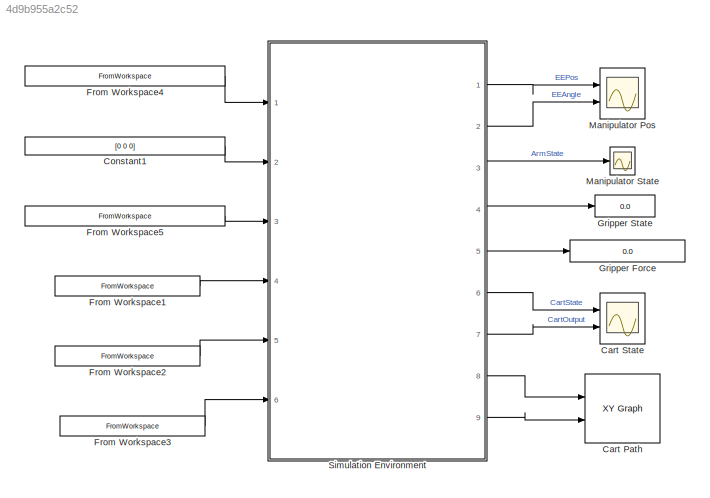
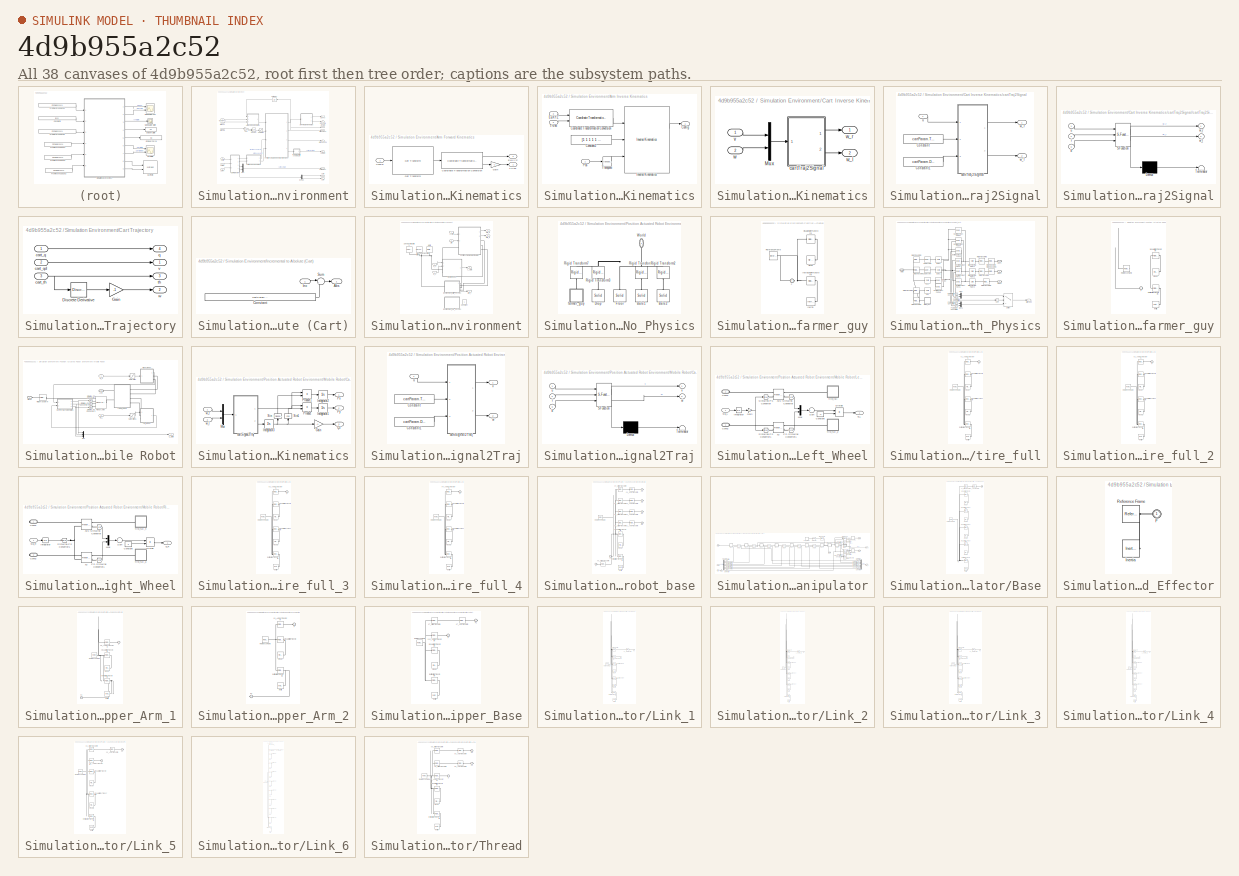
[diagram: thumbnail index - all 38 canvases of the model, root first then tree order]
MODEL slx_4d9b955a2c52
KIND model
CONFIG AbsTol = auto
CONFIG EnableMultiTasking = off
CONFIG FixedStep = auto
CONFIG InitFcn = initializeParameters
CONFIG MaxStep = auto
CONFIG MinStep = auto
CONFIG PreLoadFcn = initializeParameters
CONFIG RelTol = 1e-3
CONFIG SampleTimeConstraint = Unconstrained
CONFIG Solver = VariableStepAuto
CONFIG SolverName = VariableStepAuto
CONFIG StartFcn = initializeParameters
CONFIG StartTime = 0.0
CONFIG StopTime = 10.0
BLOCK [Reference] Cart Path  REF=simulink/Sinks/XY Graph
  Ports = [2]
  SourceBlock = simulink/Sinks/XY Graph
  SourceType = XY scope.
BLOCK [Scope] Cart State
  Floating = off
  NumInputPorts = 2
  Ports = [2]
  ScopeSpecificationString = Simulink.scopes.TimeScopeBlockCfg('CurrentConfiguration', extmgr.ConfigurationSet(extmgr.Configuration('Core','General UI',true),extmgr.Configuration('Core','Source UI',true),extmgr.Configuration('Sources','WiredSimulink',true,'DataLoggingVariableName','ScopeData2'),extmgr.Configuration('Visuals','Time Domain',true,'SerializedDisplays',{struct('MinYLimReal','-2.375','MaxYLimReal','21.375','YLabelR...<+1765ch>
BLOCK [Constant] Constant1
  Value = [0 0 0]
BLOCK [FromWorkspace] From Workspace1
  OutputAfterFinalValue = Holding final value
  SampleTime = cart.traj.dt
  VariableName = [cart.traj.time' cart.traj.q']
BLOCK [FromWorkspace] From Workspace2
  OutputAfterFinalValue = Holding final value
  SampleTime = cart.traj.dt
  VariableName = [cart.traj.time' cart.traj.qd']
BLOCK [FromWorkspace] From Workspace3
  OutputAfterFinalValue = Holding final value
  SampleTime = cart.traj.dt
  VariableName = [cart.traj.time' cart.traj.th']
BLOCK [FromWorkspace] From Workspace4
  OutputAfterFinalValue = Holding final value
  SampleTime = -1
  VariableName = [manip.traj.time' manip.traj.q.arm']
BLOCK [FromWorkspace] From Workspace5
  Interpolate = off
  OutputAfterFinalValue = Setting to zero
  SampleTime = 0.01
  VariableName = [manip.traj.tp' manip.traj.grip']
BLOCK [Display] Gripper Force
  Decimation = 1
  Format = long
  Ports = [1]
BLOCK [Display] Gripper State
  Decimation = 1
  Ports = [1]
BLOCK [Scope] Manipulator Pos
  Floating = off
  NumInputPorts = 2
  Ports = [2]
  ScopeSpecificationString = Simulink.scopes.TimeScopeBlockCfg('CurrentConfiguration', extmgr.ConfigurationSet(extmgr.Configuration('Core','General UI',true),extmgr.Configuration('Core','Source UI',true),extmgr.Configuration('Sources','WiredSimulink',true,'DataLoggingVariableName','ScopeData1'),extmgr.Configuration('Visuals','Time Domain',true,'SerializedDisplays',{struct('MinYLimReal','-0.875','MaxYLimReal','0.375','YLabelRe...<+2359ch>
BLOCK [Scope] Manipulator State
  Floating = off
  NumInputPorts = 1
  Ports = [1]
  ScopeSpecificationString = Simulink.scopes.TimeScopeBlockCfg('CurrentConfiguration', extmgr.ConfigurationSet(extmgr.Configuration('Core','General UI',true),extmgr.Configuration('Core','Source UI',true),extmgr.Configuration('Sources','WiredSimulink',true,'DataLoggingVariableName','ScopeData1'),extmgr.Configuration('Visuals','Time Domain',true,'SerializedDisplays',{struct('MinYLimReal','-0.15134','MaxYLimReal','0.17443','YLab...<+1583ch>
BLOCK [SubSystem] Simulation Environment
  Ports = [6, 9]
BLOCK [SubSystem] Simulation Environment/Arm Forward Kinematics
  Ports = [1, 2]
BLOCK [Inport] Simulation Environment/Arm Forward Kinematics/Config
BLOCK [Reference] Simulation Environment/Arm Forward Kinematics/Coordinate Transformation Conversion  REF=robotcorelib/Coordinate Transformation Conversion
  Ports = [1, 2]
  SourceBlock = robotcorelib/Coordinate Transformation Conversion
  SourceType = robotics.slcore.internal.block.CoordinateTransformationConversion
BLOCK [Outport] Simulation Environment/Arm Forward Kinematics/EulXYZ
  Port = 2
BLOCK [Gain] Simulation Environment/Arm Forward Kinematics/Gain
  Gain = -1
BLOCK [Reference] Simulation Environment/Arm Forward Kinematics/Get Transform  REF=robotmaniplib/Get Transform
  Ports = [1, 1]
  SourceBlock = robotmaniplib/Get Transform
  SourceType = Get Transform
BLOCK [Outport] Simulation Environment/Arm Forward Kinematics/TrVec
BLOCK [SubSystem] Simulation Environment/Arm Inverse Kinematics
  Ports = [3, 1]
BLOCK [Outport] Simulation Environment/Arm Inverse Kinematics/Config
BLOCK [Constant] Simulation Environment/Arm Inverse Kinematics/Constant2
  Value = [1 1 1 1 1 1]
BLOCK [Reference] Simulation Environment/Arm Inverse Kinematics/Coordinate Transformation Conversion  REF=robotcorelib/Coordinate Transformation Conversion
  Ports = [2, 1]
  SourceBlock = robotcorelib/Coordinate Transformation Conversion
  SourceType = robotics.slcore.internal.block.CoordinateTransformationConversion
BLOCK [Inport] Simulation Environment/Arm Inverse Kinematics/EulXYZ
  Port = 3
BLOCK [Reference] Simulation Environment/Arm Inverse Kinematics/Inverse Kinematics  REF=robotmaniplib/Inverse Kinematics
  Ports = [3, 2]
  SourceBlock = robotmaniplib/Inverse Kinematics
  SourceType = Inverse Kinematics
BLOCK [Inport] Simulation Environment/Arm Inverse Kinematics/Pos
BLOCK [Inport] Simulation Environment/Arm Inverse Kinematics/TrVec
  Port = 2
BLOCK [Math] Simulation Environment/Arm Inverse Kinematics/Transpose
  Operator = transpose
  Ports = [1, 1]
BLOCK [Outport] Simulation Environment/ArmState
  Port = 3
BLOCK [SubSystem] Simulation Environment/Cart Inverse Kinematics
  Ports = [2, 2]
BLOCK [Mux] Simulation Environment/Cart Inverse Kinematics/Mux
  DisplayOption = bar
  Inputs = 2
  Ports = [2, 1]
BLOCK [SubSystem] Simulation Environment/Cart Inverse Kinematics/cartTraj2Signal
  Ports = [1, 2]
BLOCK [Constant] Simulation Environment/Cart Inverse Kinematics/cartTraj2Signal/Constant
  Value = cartParam.TireRadius
BLOCK [Constant] Simulation Environment/Cart Inverse Kinematics/cartTraj2Signal/Constant1
  Value = cartParam.DistanceBwTires
BLOCK [SubSystem] Simulation Environment/Cart Inverse Kinematics/cartTraj2Signal/cartTraj2Signal
  ErrorFcn = Stateflow.Translate.translate
  PermitHierarchicalResolution = ExplicitOnly
  Ports = [3, 2]
  SFBlockType = MATLAB Function
  TreatAsAtomicUnit = on
BLOCK [Demux] Simulation Environment/Cart Inverse Kinematics/cartTraj2Signal/cartTraj2Signal/ Demux 
  Outputs = 1
  Ports = [1, 1]
BLOCK [S-Function] Simulation Environment/Cart Inverse Kinematics/cartTraj2Signal/cartTraj2Signal/ SFunction 
  EnableBusSupport = on
  FunctionName = sf_sfun
  PortCounts = [3 3]
  Ports = [3, 3]
  SFcnIsStateOwnerBlock = off
  SFunctionDeploymentMode = off
  Tag = Stateflow S-Function Top_Level_Simualtion_2019 1
BLOCK [Terminator] Simulation Environment/Cart Inverse Kinematics/cartTraj2Signal/cartTraj2Signal/ Terminator 
BLOCK [Inport] Simulation Environment/Cart Inverse Kinematics/cartTraj2Signal/cartTraj2Signal/b
  Port = 3
BLOCK [Inport] Simulation Environment/Cart Inverse Kinematics/cartTraj2Signal/cartTraj2Signal/r
  Port = 2
BLOCK [Inport] Simulation Environment/Cart Inverse Kinematics/cartTraj2Signal/cartTraj2Signal/u
BLOCK [Outport] Simulation Environment/Cart Inverse Kinematics/cartTraj2Signal/cartTraj2Signal/w_l
  Port = 2
BLOCK [Outport] Simulation Environment/Cart Inverse Kinematics/cartTraj2Signal/cartTraj2Signal/w_r
BLOCK [Inport] Simulation Environment/Cart Inverse Kinematics/cartTraj2Signal/u
BLOCK [Outport] Simulation Environment/Cart Inverse Kinematics/cartTraj2Signal/w_l
  Port = 2
BLOCK [Outport] Simulation Environment/Cart Inverse Kinematics/cartTraj2Signal/w_r
BLOCK [Inport] Simulation Environment/Cart Inverse Kinematics/v
BLOCK [Inport] Simulation Environment/Cart Inverse Kinematics/w
  Port = 2
BLOCK [Outport] Simulation Environment/Cart Inverse Kinematics/w_l
  Port = 2
BLOCK [Outport] Simulation Environment/Cart Inverse Kinematics/w_r
BLOCK [SubSystem] Simulation Environment/Cart Trajectory
  Ports = [3, 4]
BLOCK [Reference] Simulation Environment/Cart Trajectory/Discrete Derivative  REF=simulink/Discrete/Discrete Derivative
  Ports = [1, 1]
  SourceBlock = simulink/Discrete/Discrete Derivative
  SourceType = Discrete Derivative
BLOCK [Gain] Simulation Environment/Cart Trajectory/Gain
  Gain = -1
BLOCK [Inport] Simulation Environment/Cart Trajectory/cart_q
BLOCK [Inport] Simulation Environment/Cart Trajectory/cart_qd
  Port = 2
BLOCK [Inport] Simulation Environment/Cart Trajectory/cart_th
  Port = 3
BLOCK [Outport] Simulation Environment/Cart Trajectory/q
  Port = 4
BLOCK [Outport] Simulation Environment/Cart Trajectory/th
  Port = 3
BLOCK [Outport] Simulation Environment/Cart Trajectory/v
BLOCK [Outport] Simulation Environment/Cart Trajectory/w
  Port = 2
BLOCK [Outport] Simulation Environment/CartOutput
  Port = 7
BLOCK [Inport] Simulation Environment/CartQ
  Port = 4
BLOCK [Inport] Simulation Environment/CartQd
  Port = 5
BLOCK [Outport] Simulation Environment/CartState
  Port = 6
BLOCK [Inport] Simulation Environment/CartTh
  Port = 6
BLOCK [Outport] Simulation Environment/CartX
  Port = 8
BLOCK [Outport] Simulation Environment/CartY
  Port = 9
BLOCK [Demux] Simulation Environment/Demux
  Outputs = 2
  Ports = [1, 2]
BLOCK [Outport] Simulation Environment/EEAngle
  Port = 2
BLOCK [Outport] Simulation Environment/EEPos
BLOCK [Gain] Simulation Environment/Gain
  Gain = 0.3
BLOCK [Inport] Simulation Environment/GripCmd
  Port = 3
BLOCK [Inport] Simulation Environment/GripPos
  Port = 2
BLOCK [Outport] Simulation Environment/GripperForce
  Port = 5
BLOCK [Outport] Simulation Environment/GripperPos
  Port = 4
BLOCK [SubSystem] Simulation Environment/Incremental to Abolute (Cart)
  Ports = [1, 1]
BLOCK [Outport] Simulation Environment/Incremental to Abolute (Cart)/Abs
BLOCK [Constant] Simulation Environment/Incremental to Abolute (Cart)/Constant
  Value = [cartParam.Initial.X cartParam.Initial.Y cartParam.Initial.Phase]
BLOCK [Inport] Simulation Environment/Incremental to Abolute (Cart)/Inc
BLOCK [Sum] Simulation Environment/Incremental to Abolute (Cart)/Sum
  Inputs = |++
  Ports = [2, 1]
BLOCK [Integrator] Simulation Environment/Integrator
  ExternalReset = falling
  Ports = [2, 1]
BLOCK [Inport] Simulation Environment/ManipPos
BLOCK [Mux] Simulation Environment/Mux
  DisplayOption = bar
  Inputs = 2
  Ports = [2, 1]
BLOCK [SubSystem] Simulation Environment/Position Actuated Robot Environment
  AutoFrameSizeCalculation = on
  Ports = [4, 4]
BLOCK [Constant] Simulation Environment/Position Actuated Robot Environment/Constant
  Commented = on
BLOCK [SubSystem] Simulation Environment/Position Actuated Robot Environment/Environment_No_Physics
  Commented = on
  Ports = [0, 0, 0, 0, 0, 1]
BLOCK [Reference] Simulation Environment/Position Actuated Robot Environment/Environment_No_Physics/Bale1  REF=sm_lib/Body Elements/Solid
  Ports = [0, 0, 0, 0, 0, 0, 1]
  SourceBlock = sm_lib/Body Elements/Solid
  SourceType = Cylindrical Solid
BLOCK [Reference] Simulation Environment/Position Actuated Robot Environment/Environment_No_Physics/Bale2  REF=sm_lib/Body Elements/Solid
  Ports = [0, 0, 0, 0, 0, 0, 1]
  SourceBlock = sm_lib/Body Elements/Solid
  SourceType = Cylindrical Solid
BLOCK [Reference] Simulation Environment/Position Actuated Robot Environment/Environment_No_Physics/Drop  REF=sm_lib/Body Elements/Solid
  Ports = [0, 0, 0, 0, 0, 1]
  SourceBlock = sm_lib/Body Elements/Solid
  SourceType = Brick Solid
BLOCK [Reference] Simulation Environment/Position Actuated Robot Environment/Environment_No_Physics/Floor  REF=sm_lib/Body Elements/Solid
  Ports = [0, 0, 0, 0, 0, 1]
  SourceBlock = sm_lib/Body Elements/Solid
  SourceType = Brick Solid
BLOCK [Reference] Simulation Environment/Position Actuated Robot Environment/Environment_No_Physics/Rigid Transform1  REF=sm_lib/Frames and
Transforms/Rigid
Transform
  Ports = [0, 0, 0, 0, 0, 1, 1]
  SourceBlock = sm_lib/Frames and\nTransforms/Rigid\nTransform
  SourceType = Rigid\nTransform
BLOCK [Reference] Simulation Environment/Position Actuated Robot Environment/Environment_No_Physics/Rigid Transform2  REF=sm_lib/Frames and
Transforms/Rigid
Transform
  Ports = [0, 0, 0, 0, 0, 1, 1]
  SourceBlock = sm_lib/Frames and\nTransforms/Rigid\nTransform
  SourceType = Rigid\nTransform
BLOCK [Reference] Simulation Environment/Position Actuated Robot Environment/Environment_No_Physics/Rigid Transform3  REF=sm_lib/Frames and
Transforms/Rigid
Transform
  Ports = [0, 0, 0, 0, 0, 1, 1]
  SourceBlock = sm_lib/Frames and\nTransforms/Rigid\nTransform
  SourceType = Rigid\nTransform
BLOCK [Reference] Simulation Environment/Position Actuated Robot Environment/Environment_No_Physics/Rigid Transform7  REF=sm_lib/Frames and
Transforms/Rigid
Transform
  Ports = [0, 0, 0, 0, 0, 1, 1]
  SourceBlock = sm_lib/Frames and\nTransforms/Rigid\nTransform
  SourceType = Rigid\nTransform
BLOCK [PMIOPort] Simulation Environment/Position Actuated Robot Environment/Environment_No_Physics/World
  Side = Left
BLOCK [SubSystem] Simulation Environment/Position Actuated Robot Environment/Environment_No_Physics/farmer_guy
  Ports = [0, 0, 0, 0, 0, 1]
BLOCK [PMIOPort] Simulation Environment/Position Actuated Robot Environment/Environment_No_Physics/farmer_guy/F
  Side = Left
BLOCK [Reference] Simulation Environment/Position Actuated Robot Environment/Environment_No_Physics/farmer_guy/Inertia  REF=sm_lib/Body Elements/Inertia
  Ports = [0, 0, 0, 0, 0, 0, 1]
  SourceBlock = sm_lib/Body Elements/Inertia
  SourceType = Inertia
BLOCK [Reference] Simulation Environment/Position Actuated Robot Environment/Environment_No_Physics/farmer_guy/InertiaOriginTransform  REF=sm_lib/Frames and
Transforms/Rigid
Transform
  Ports = [0, 0, 0, 0, 0, 1, 1]
  SourceBlock = sm_lib/Frames and\nTransforms/Rigid\nTransform
  SourceType = Rigid\nTransform
BLOCK [Reference] Simulation Environment/Position Actuated Robot Environment/Environment_No_Physics/farmer_guy/ReferenceFrame  REF=sm_lib/Frames and
Transforms/Reference
Frame
  Ports = [0, 0, 0, 0, 0, 0, 1]
  SourceBlock = sm_lib/Frames and\nTransforms/Reference\nFrame
  SourceType = Reference\nFrame
BLOCK [Reference] Simulation Environment/Position Actuated Robot Environment/Environment_No_Physics/farmer_guy/Visual  REF=sm_lib/Body Elements/File Solid
  Ports = [0, 0, 0, 0, 0, 0, 1]
  SourceBlock = sm_lib/Body Elements/File Solid
  SourceType = File Solid
BLOCK [Reference] Simulation Environment/Position Actuated Robot Environment/Environment_No_Physics/farmer_guy/VisualOriginTransform  REF=sm_lib/Frames and
Transforms/Rigid
Transform
  Ports = [0, 0, 0, 0, 0, 1, 1]
  SourceBlock = sm_lib/Frames and\nTransforms/Rigid\nTransform
  SourceType = Rigid\nTransform
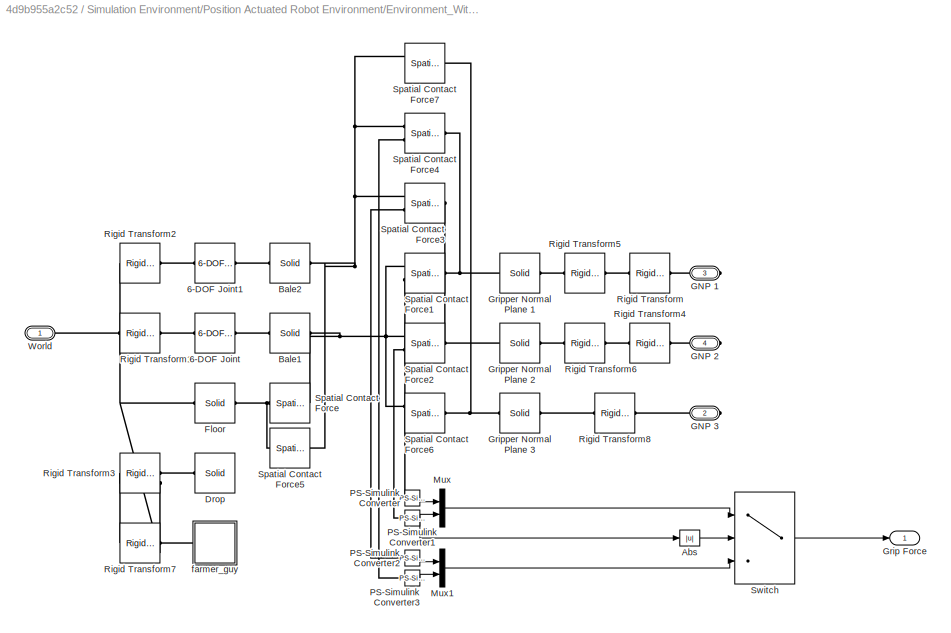
BLOCK [SubSystem] Simulation Environment/Position Actuated Robot Environment/Environment_With_Physics
  AutoFrameSizeCalculation = on
  Ports = [0, 1, 0, 0, 0, 1, 3]
BLOCK [Reference] Simulation Environment/Position Actuated Robot Environment/Environment_With_Physics/6-DOF Joint  REF=sm_lib/Joints/6-DOF Joint
  Ports = [0, 0, 0, 0, 0, 1, 1]
  SourceBlock = sm_lib/Joints/6-DOF Joint
  SourceType = 6-DOF Joint
BLOCK [Reference] Simulation Environment/Position Actuated Robot Environment/Environment_With_Physics/6-DOF Joint1  REF=sm_lib/Joints/6-DOF Joint
  Ports = [0, 0, 0, 0, 0, 1, 1]
  SourceBlock = sm_lib/Joints/6-DOF Joint
  SourceType = 6-DOF Joint
BLOCK [Abs] Simulation Environment/Position Actuated Robot Environment/Environment_With_Physics/Abs
  SaturateOnIntegerOverflow = off
BLOCK [Reference] Simulation Environment/Position Actuated Robot Environment/Environment_With_Physics/Bale1  REF=sm_lib/Body Elements/Solid
  Ports = [0, 0, 0, 0, 0, 1, 1]
  SourceBlock = sm_lib/Body Elements/Solid
  SourceType = Cylindrical Solid
BLOCK [Reference] Simulation Environment/Position Actuated Robot Environment/Environment_With_Physics/Bale2  REF=sm_lib/Body Elements/Solid
  Ports = [0, 0, 0, 0, 0, 1, 1]
  SourceBlock = sm_lib/Body Elements/Solid
  SourceType = Cylindrical Solid
BLOCK [Reference] Simulation Environment/Position Actuated Robot Environment/Environment_With_Physics/Drop  REF=sm_lib/Body Elements/Solid
  Ports = [0, 0, 0, 0, 0, 1]
  SourceBlock = sm_lib/Body Elements/Solid
  SourceType = Brick Solid
BLOCK [Reference] Simulation Environment/Position Actuated Robot Environment/Environment_With_Physics/Floor  REF=sm_lib/Body Elements/Solid
  Ports = [0, 0, 0, 0, 0, 1, 1]
  SourceBlock = sm_lib/Body Elements/Solid
  SourceType = Brick Solid
BLOCK [PMIOPort] Simulation Environment/Position Actuated Robot Environment/Environment_With_Physics/GNP 1
  Port = 3
  Side = Right
BLOCK [PMIOPort] Simulation Environment/Position Actuated Robot Environment/Environment_With_Physics/GNP 2
  Port = 4
  Side = Right
BLOCK [PMIOPort] Simulation Environment/Position Actuated Robot Environment/Environment_With_Physics/GNP 3
  Port = 2
  Side = Right
BLOCK [Outport] Simulation Environment/Position Actuated Robot Environment/Environment_With_Physics/Grip Force
BLOCK [Reference] Simulation Environment/Position Actuated Robot Environment/Environment_With_Physics/Gripper Normal Plane 1  REF=sm_lib/Body Elements/Solid
  Ports = [0, 0, 0, 0, 0, 1, 1]
  SourceBlock = sm_lib/Body Elements/Solid
  SourceType = Brick Solid
BLOCK [Reference] Simulation Environment/Position Actuated Robot Environment/Environment_With_Physics/Gripper Normal Plane 2  REF=sm_lib/Body Elements/Solid
  Ports = [0, 0, 0, 0, 0, 1, 1]
  SourceBlock = sm_lib/Body Elements/Solid
  SourceType = Brick Solid
BLOCK [Reference] Simulation Environment/Position Actuated Robot Environment/Environment_With_Physics/Gripper Normal Plane 3  REF=sm_lib/Body Elements/Solid
  Ports = [0, 0, 0, 0, 0, 1, 1]
  SourceBlock = sm_lib/Body Elements/Solid
  SourceType = Brick Solid
BLOCK [Mux] Simulation Environment/Position Actuated Robot Environment/Environment_With_Physics/Mux
  DisplayOption = bar
  Inputs = 2
  Ports = [2, 1]
BLOCK [Mux] Simulation Environment/Position Actuated Robot Environment/Environment_With_Physics/Mux1
  DisplayOption = bar
  Inputs = 2
  Ports = [2, 1]
BLOCK [Reference] Simulation Environment/Position Actuated Robot Environment/Environment_With_Physics/PS-Simulink Converter  REF=nesl_utility/PS-Simulink
Converter
  Ports = [0, 1, 0, 0, 0, 1]
  SourceBlock = nesl_utility/PS-Simulink\nConverter
  SourceType = PS-Simulink\nConverter
BLOCK [Reference] Simulation Environment/Position Actuated Robot Environment/Environment_With_Physics/PS-Simulink Converter1  REF=nesl_utility/PS-Simulink
Converter
  Ports = [0, 1, 0, 0, 0, 1]
  SourceBlock = nesl_utility/PS-Simulink\nConverter
  SourceType = PS-Simulink\nConverter
BLOCK [Reference] Simulation Environment/Position Actuated Robot Environment/Environment_With_Physics/PS-Simulink Converter2  REF=nesl_utility/PS-Simulink
Converter
  Ports = [0, 1, 0, 0, 0, 1]
  SourceBlock = nesl_utility/PS-Simulink\nConverter
  SourceType = PS-Simulink\nConverter
BLOCK [Reference] Simulation Environment/Position Actuated Robot Environment/Environment_With_Physics/PS-Simulink Converter3  REF=nesl_utility/PS-Simulink
Converter
  Ports = [0, 1, 0, 0, 0, 1]
  SourceBlock = nesl_utility/PS-Simulink\nConverter
  SourceType = PS-Simulink\nConverter
BLOCK [Reference] Simulation Environment/Position Actuated Robot Environment/Environment_With_Physics/Rigid Transform  REF=sm_lib/Frames and
Transforms/Rigid
Transform
  Ports = [0, 0, 0, 0, 0, 1, 1]
  SourceBlock = sm_lib/Frames and\nTransforms/Rigid\nTransform
  SourceType = Rigid\nTransform
BLOCK [Reference] Simulation Environment/Position Actuated Robot Environment/Environment_With_Physics/Rigid Transform1  REF=sm_lib/Frames and
Transforms/Rigid
Transform
  Ports = [0, 0, 0, 0, 0, 1, 1]
  SourceBlock = sm_lib/Frames and\nTransforms/Rigid\nTransform
  SourceType = Rigid\nTransform
BLOCK [Reference] Simulation Environment/Position Actuated Robot Environment/Environment_With_Physics/Rigid Transform2  REF=sm_lib/Frames and
Transforms/Rigid
Transform
  Ports = [0, 0, 0, 0, 0, 1, 1]
  SourceBlock = sm_lib/Frames and\nTransforms/Rigid\nTransform
  SourceType = Rigid\nTransform
BLOCK [Reference] Simulation Environment/Position Actuated Robot Environment/Environment_With_Physics/Rigid Transform3  REF=sm_lib/Frames and
Transforms/Rigid
Transform
  Ports = [0, 0, 0, 0, 0, 1, 1]
  SourceBlock = sm_lib/Frames and\nTransforms/Rigid\nTransform
  SourceType = Rigid\nTransform
BLOCK [Reference] Simulation Environment/Position Actuated Robot Environment/Environment_With_Physics/Rigid Transform4  REF=sm_lib/Frames and
Transforms/Rigid
Transform
  Ports = [0, 0, 0, 0, 0, 1, 1]
  SourceBlock = sm_lib/Frames and\nTransforms/Rigid\nTransform
  SourceType = Rigid\nTransform
BLOCK [Reference] Simulation Environment/Position Actuated Robot Environment/Environment_With_Physics/Rigid Transform5  REF=sm_lib/Frames and
Transforms/Rigid
Transform
  Ports = [0, 0, 0, 0, 0, 1, 1]
  SourceBlock = sm_lib/Frames and\nTransforms/Rigid\nTransform
  SourceType = Rigid\nTransform
BLOCK [Reference] Simulation Environment/Position Actuated Robot Environment/Environment_With_Physics/Rigid Transform6  REF=sm_lib/Frames and
Transforms/Rigid
Transform
  Ports = [0, 0, 0, 0, 0, 1, 1]
  SourceBlock = sm_lib/Frames and\nTransforms/Rigid\nTransform
  SourceType = Rigid\nTransform
BLOCK [Reference] Simulation Environment/Position Actuated Robot Environment/Environment_With_Physics/Rigid Transform7  REF=sm_lib/Frames and
Transforms/Rigid
Transform
  Ports = [0, 0, 0, 0, 0, 1, 1]
  SourceBlock = sm_lib/Frames and\nTransforms/Rigid\nTransform
  SourceType = Rigid\nTransform
BLOCK [Reference] Simulation Environment/Position Actuated Robot Environment/Environment_With_Physics/Rigid Transform8  REF=sm_lib/Frames and
Transforms/Rigid
Transform
  Ports = [0, 0, 0, 0, 0, 1, 1]
  SourceBlock = sm_lib/Frames and\nTransforms/Rigid\nTransform
  SourceType = Rigid\nTransform
BLOCK [Reference] Simulation Environment/Position Actuated Robot Environment/Environment_With_Physics/Spatial Contact Force  REF=sm_lib/Forces and
Torques/Spatial
Contact Force
  Ports = [0, 0, 0, 0, 0, 1, 1]
  SourceBlock = sm_lib/Forces and\nTorques/Spatial\nContact Force
  SourceType = Spatial\nContact Force
BLOCK [Reference] Simulation Environment/Position Actuated Robot Environment/Environment_With_Physics/Spatial Contact Force1  REF=sm_lib/Forces and
Torques/Spatial
Contact Force
  Ports = [0, 0, 0, 0, 0, 1, 2]
  SourceBlock = sm_lib/Forces and\nTorques/Spatial\nContact Force
  SourceType = Spatial\nContact Force
BLOCK [Reference] Simulation Environment/Position Actuated Robot Environment/Environment_With_Physics/Spatial Contact Force2  REF=sm_lib/Forces and
Torques/Spatial
Contact Force
  Ports = [0, 0, 0, 0, 0, 1, 2]
  SourceBlock = sm_lib/Forces and\nTorques/Spatial\nContact Force
  SourceType = Spatial\nContact Force
BLOCK [Reference] Simulation Environment/Position Actuated Robot Environment/Environment_With_Physics/Spatial Contact Force3  REF=sm_lib/Forces and
Torques/Spatial
Contact Force
  Ports = [0, 0, 0, 0, 0, 1, 2]
  SourceBlock = sm_lib/Forces and\nTorques/Spatial\nContact Force
  SourceType = Spatial\nContact Force
BLOCK [Reference] Simulation Environment/Position Actuated Robot Environment/Environment_With_Physics/Spatial Contact Force4  REF=sm_lib/Forces and
Torques/Spatial
Contact Force
  Ports = [0, 0, 0, 0, 0, 1, 2]
  SourceBlock = sm_lib/Forces and\nTorques/Spatial\nContact Force
  SourceType = Spatial\nContact Force
BLOCK [Reference] Simulation Environment/Position Actuated Robot Environment/Environment_With_Physics/Spatial Contact Force5  REF=sm_lib/Forces and
Torques/Spatial
Contact Force
  Ports = [0, 0, 0, 0, 0, 1, 1]
  SourceBlock = sm_lib/Forces and\nTorques/Spatial\nContact Force
  SourceType = Spatial\nContact Force
BLOCK [Reference] Simulation Environment/Position Actuated Robot Environment/Environment_With_Physics/Spatial Contact Force6  REF=sm_lib/Forces and
Torques/Spatial
Contact Force
  Ports = [0, 0, 0, 0, 0, 1, 2]
  SourceBlock = sm_lib/Forces and\nTorques/Spatial\nContact Force
  SourceType = Spatial\nContact Force
BLOCK [Reference] Simulation Environment/Position Actuated Robot Environment/Environment_With_Physics/Spatial Contact Force7  REF=sm_lib/Forces and
Torques/Spatial
Contact Force
  Ports = [0, 0, 0, 0, 0, 1, 2]
  SourceBlock = sm_lib/Forces and\nTorques/Spatial\nContact Force
  SourceType = Spatial\nContact Force
BLOCK [Switch] Simulation Environment/Position Actuated Robot Environment/Environment_With_Physics/Switch
  Criteria = u2 > Threshold
  InputSameDT = off
  SaturateOnIntegerOverflow = off
  Threshold = 5
BLOCK [PMIOPort] Simulation Environment/Position Actuated Robot Environment/Environment_With_Physics/World
  Side = Left
BLOCK [SubSystem] Simulation Environment/Position Actuated Robot Environment/Environment_With_Physics/farmer_guy
  Ports = [0, 0, 0, 0, 0, 1]
BLOCK [PMIOPort] Simulation Environment/Position Actuated Robot Environment/Environment_With_Physics/farmer_guy/F
  Side = Left
BLOCK [Reference] Simulation Environment/Position Actuated Robot Environment/Environment_With_Physics/farmer_guy/Inertia  REF=sm_lib/Body Elements/Inertia
  Ports = [0, 0, 0, 0, 0, 0, 1]
  SourceBlock = sm_lib/Body Elements/Inertia
  SourceType = Inertia
BLOCK [Reference] Simulation Environment/Position Actuated Robot Environment/Environment_With_Physics/farmer_guy/InertiaOriginTransform  REF=sm_lib/Frames and
Transforms/Rigid
Transform
  Ports = [0, 0, 0, 0, 0, 1, 1]
  SourceBlock = sm_lib/Frames and\nTransforms/Rigid\nTransform
  SourceType = Rigid\nTransform
BLOCK [Reference] Simulation Environment/Position Actuated Robot Environment/Environment_With_Physics/farmer_guy/ReferenceFrame  REF=sm_lib/Frames and
Transforms/Reference
Frame
  Ports = [0, 0, 0, 0, 0, 0, 1]
  SourceBlock = sm_lib/Frames and\nTransforms/Reference\nFrame
  SourceType = Reference\nFrame
BLOCK [Reference] Simulation Environment/Position Actuated Robot Environment/Environment_With_Physics/farmer_guy/Visual  REF=sm_lib/Body Elements/File Solid
  Ports = [0, 0, 0, 0, 0, 0, 1]
  SourceBlock = sm_lib/Body Elements/File Solid
  SourceType = File Solid
BLOCK [Reference] Simulation Environment/Position Actuated Robot Environment/Environment_With_Physics/farmer_guy/VisualOriginTransform  REF=sm_lib/Frames and
Transforms/Rigid
Transform
  Ports = [0, 0, 0, 0, 0, 1, 1]
  SourceBlock = sm_lib/Frames and\nTransforms/Rigid\nTransform
  SourceType = Rigid\nTransform
BLOCK [Reference] Simulation Environment/Position Actuated Robot Environment/MechanismConfiguration  REF=sm_lib/Utilities/Mechanism
Configuration
  Ports = [0, 0, 0, 0, 0, 0, 1]
  SourceBlock = sm_lib/Utilities/Mechanism\nConfiguration
  SourceType = Mechanism\nConfiguration
BLOCK [SubSystem] Simulation Environment/Position Actuated Robot Environment/Mobile Robot
  Ports = [2, 1, 0, 0, 0, 2]
BLOCK [PMIOPort] Simulation Environment/Position Actuated Robot Environment/Mobile Robot/Arm
  Port = 2
  Side = Left
BLOCK [Outport] Simulation Environment/Position Actuated Robot Environment/Mobile Robot/C_State
BLOCK [SubSystem] Simulation Environment/Position Actuated Robot Environment/Mobile Robot/Cart Forward Kinematics
  Ports = [2, 3]
BLOCK [Gain] Simulation Environment/Position Actuated Robot Environment/Mobile Robot/Cart Forward Kinematics/Gain
  Gain = -1
BLOCK [Integrator] Simulation Environment/Position Actuated Robot Environment/Mobile Robot/Cart Forward Kinematics/Integrator1
  Ports = [1, 1]
BLOCK [Integrator] Simulation Environment/Position Actuated Robot Environment/Mobile Robot/Cart Forward Kinematics/Integrator2
  Ports = [1, 1]
BLOCK [Integrator] Simulation Environment/Position Actuated Robot Environment/Mobile Robot/Cart Forward Kinematics/Integrator3
  Ports = [1, 1]
BLOCK [Mux] Simulation Environment/Position Actuated Robot Environment/Mobile Robot/Cart Forward Kinematics/Mux
  DisplayOption = bar
  Inputs = 2
  Ports = [2, 1]
BLOCK [Product] Simulation Environment/Position Actuated Robot Environment/Mobile Robot/Cart Forward Kinematics/Product
  Ports = [2, 1]
BLOCK [Product] Simulation Environment/Position Actuated Robot Environment/Mobile Robot/Cart Forward Kinematics/Product1
  Ports = [2, 1]
BLOCK [Outport] Simulation Environment/Position Actuated Robot Environment/Mobile Robot/Cart Forward Kinematics/Px
BLOCK [Outport] Simulation Environment/Position Actuated Robot Environment/Mobile Robot/Cart Forward Kinematics/Py
  Port = 2
BLOCK [Outport] Simulation Environment/Position Actuated Robot Environment/Mobile Robot/Cart Forward Kinematics/Qz
  Port = 3
BLOCK [Trigonometry] Simulation Environment/Position Actuated Robot Environment/Mobile Robot/Cart Forward Kinematics/Sin
  Ports = [1, 1]
BLOCK [Trigonometry] Simulation Environment/Position Actuated Robot Environment/Mobile Robot/Cart Forward Kinematics/Sin1
  Operator = cos
  Ports = [1, 1]
BLOCK [SubSystem] Simulation Environment/Position Actuated Robot Environment/Mobile Robot/Cart Forward Kinematics/cartSignal2Traj
  Ports = [1, 2]
BLOCK [Constant] Simulation Environment/Position Actuated Robot Environment/Mobile Robot/Cart Forward Kinematics/cartSignal2Traj/Constant
  Value = cartParam.TireRadius
BLOCK [Constant] Simulation Environment/Position Actuated Robot Environment/Mobile Robot/Cart Forward Kinematics/cartSignal2Traj/Constant1
  Value = cartParam.DistanceBwTires
BLOCK [SubSystem] Simulation Environment/Position Actuated Robot Environment/Mobile Robot/Cart Forward Kinematics/cartSignal2Traj/cartSignal2Traj
  ErrorFcn = Stateflow.Translate.translate
  PermitHierarchicalResolution = ExplicitOnly
  Ports = [3, 2]
  SFBlockType = MATLAB Function
  TreatAsAtomicUnit = on
BLOCK [Demux] Simulation Environment/Position Actuated Robot Environment/Mobile Robot/Cart Forward Kinematics/cartSignal2Traj/cartSignal2Traj/ Demux 
  Outputs = 1
  Ports = [1, 1]
BLOCK [S-Function] Simulation Environment/Position Actuated Robot Environment/Mobile Robot/Cart Forward Kinematics/cartSignal2Traj/cartSignal2Traj/ SFunction 
  EnableBusSupport = on
  FunctionName = sf_sfun
  PortCounts = [3 3]
  Ports = [3, 3]
  SFcnIsStateOwnerBlock = off
  SFunctionDeploymentMode = off
  Tag = Stateflow S-Function Top_Level_Simualtion_2019 5
BLOCK [Terminator] Simulation Environment/Position Actuated Robot Environment/Mobile Robot/Cart Forward Kinematics/cartSignal2Traj/cartSignal2Traj/ Terminator 
BLOCK [Inport] Simulation Environment/Position Actuated Robot Environment/Mobile Robot/Cart Forward Kinematics/cartSignal2Traj/cartSignal2Traj/b
  Port = 3
BLOCK [Inport] Simulation Environment/Position Actuated Robot Environment/Mobile Robot/Cart Forward Kinematics/cartSignal2Traj/cartSignal2Traj/r
  Port = 2
BLOCK [Inport] Simulation Environment/Position Actuated Robot Environment/Mobile Robot/Cart Forward Kinematics/cartSignal2Traj/cartSignal2Traj/u
BLOCK [Outport] Simulation Environment/Position Actuated Robot Environment/Mobile Robot/Cart Forward Kinematics/cartSignal2Traj/cartSignal2Traj/v
BLOCK [Outport] Simulation Environment/Position Actuated Robot Environment/Mobile Robot/Cart Forward Kinematics/cartSignal2Traj/cartSignal2Traj/w
  Port = 2
BLOCK [Inport] Simulation Environment/Position Actuated Robot Environment/Mobile Robot/Cart Forward Kinematics/cartSignal2Traj/u
BLOCK [Outport] Simulation Environment/Position Actuated Robot Environment/Mobile Robot/Cart Forward Kinematics/cartSignal2Traj/v
BLOCK [Outport] Simulation Environment/Position Actuated Robot Environment/Mobile Robot/Cart Forward Kinematics/cartSignal2Traj/w
  Port = 2
BLOCK [Inport] Simulation Environment/Position Actuated Robot Environment/Mobile Robot/Cart Forward Kinematics/w_l
  Port = 2
BLOCK [Inport] Simulation Environment/Position Actuated Robot Environment/Mobile Robot/Cart Forward Kinematics/w_r
BLOCK [SubSystem] Simulation Environment/Position Actuated Robot Environment/Mobile Robot/Left_Wheel
  Ports = [1, 1, 0, 0, 0, 2]
BLOCK [PMIOPort] Simulation Environment/Position Actuated Robot Environment/Mobile Robot/Left_Wheel/Conn1
  Port = 2
  Side = Left
BLOCK [PMIOPort] Simulation Environment/Position Actuated Robot Environment/Mobile Robot/Left_Wheel/Conn2
  Side = Left
BLOCK [Constant] Simulation Environment/Position Actuated Robot Environment/Mobile Robot/Left_Wheel/Constant
  Value = -2
BLOCK [Product] Simulation Environment/Position Actuated Robot Environment/Mobile Robot/Left_Wheel/Divide
  Inputs = */
  Ports = [2, 1]
BLOCK [Gain] Simulation Environment/Position Actuated Robot Environment/Mobile Robot/Left_Wheel/Gain
  Gain = -1
BLOCK [Integrator] Simulation Environment/Position Actuated Robot Environment/Mobile Robot/Left_Wheel/Integrator
  Ports = [1, 1]
BLOCK [Mux] Simulation Environment/Position Actuated Robot Environment/Mobile Robot/Left_Wheel/Mux
  DisplayOption = bar
  Inputs = 2
  Ports = [2, 1]
BLOCK [Reference] Simulation Environment/Position Actuated Robot Environment/Mobile Robot/Left_Wheel/PS-Simulink Converter  REF=nesl_utility/PS-Simulink
Converter
  Ports = [0, 1, 0, 0, 0, 1]
  SourceBlock = nesl_utility/PS-Simulink\nConverter
  SourceType = PS-Simulink\nConverter
BLOCK [Reference] Simulation Environment/Position Actuated Robot Environment/Mobile Robot/Left_Wheel/PS-Simulink Converter1  REF=nesl_utility/PS-Simulink
Converter
  Ports = [0, 1, 0, 0, 0, 1]
  SourceBlock = nesl_utility/PS-Simulink\nConverter
  SourceType = PS-Simulink\nConverter
BLOCK [Reference] Simulation Environment/Position Actuated Robot Environment/Mobile Robot/Left_Wheel/Simulink-PS Converter  REF=nesl_utility/Simulink-PS
Converter
  Ports = [1, 0, 0, 0, 0, 0, 1]
  SourceBlock = nesl_utility/Simulink-PS\nConverter
  SourceType = Simulink-PS\nConverter
BLOCK [Reference] Simulation Environment/Position Actuated Robot Environment/Mobile Robot/Left_Wheel/Simulink-PS Converter1  REF=nesl_utility/Simulink-PS
Converter
  Ports = [1, 0, 0, 0, 0, 0, 1]
  SourceBlock = nesl_utility/Simulink-PS\nConverter
  SourceType = Simulink-PS\nConverter
BLOCK [Sum] Simulation Environment/Position Actuated Robot Environment/Mobile Robot/Left_Wheel/Sum
  Inputs = +
  Ports = [1, 1]
BLOCK [Outport] Simulation Environment/Position Actuated Robot Environment/Mobile Robot/Left_Wheel/q_L
BLOCK [Inport] Simulation Environment/Position Actuated Robot Environment/Mobile Robot/Left_Wheel/sig_L
BLOCK [SubSystem] Simulation Environment/Position Actuated Robot Environment/Mobile Robot/Left_Wheel/tire_full
  Ports = [0, 0, 0, 0, 0, 1]
BLOCK [PMIOPort] Simulation Environment/Position Actuated Robot Environment/Mobile Robot/Left_Wheel/tire_full/F
  Side = Left
BLOCK [Reference] Simulation Environment/Position Actuated Robot Environment/Mobile Robot/Left_Wheel/tire_full/Inertia  REF=sm_lib/Body Elements/Inertia
  Ports = [0, 0, 0, 0, 0, 0, 1]
  SourceBlock = sm_lib/Body Elements/Inertia
  SourceType = Inertia
BLOCK [Reference] Simulation Environment/Position Actuated Robot Environment/Mobile Robot/Left_Wheel/tire_full/InertiaOriginTransform  REF=sm_lib/Frames and
Transforms/Rigid
Transform
  Ports = [0, 0, 0, 0, 0, 1, 1]
  SourceBlock = sm_lib/Frames and\nTransforms/Rigid\nTransform
  SourceType = Rigid\nTransform
BLOCK [Reference] Simulation Environment/Position Actuated Robot Environment/Mobile Robot/Left_Wheel/tire_full/ReferenceFrame  REF=sm_lib/Frames and
Transforms/Reference
Frame
  Ports = [0, 0, 0, 0, 0, 0, 1]
  SourceBlock = sm_lib/Frames and\nTransforms/Reference\nFrame
  SourceType = Reference\nFrame
BLOCK [Reference] Simulation Environment/Position Actuated Robot Environment/Mobile Robot/Left_Wheel/tire_full/Visual  REF=sm_lib/Body Elements/File Solid
  Ports = [0, 0, 0, 0, 0, 0, 1]
  SourceBlock = sm_lib/Body Elements/File Solid
  SourceType = File Solid
BLOCK [Reference] Simulation Environment/Position Actuated Robot Environment/Mobile Robot/Left_Wheel/tire_full/Visual1  REF=sm_lib/Body Elements/File Solid
  Ports = [0, 0, 0, 0, 0, 0, 1]
  SourceBlock = sm_lib/Body Elements/File Solid
  SourceType = File Solid
BLOCK [Reference] Simulation Environment/Position Actuated Robot Environment/Mobile Robot/Left_Wheel/tire_full/VisualOrigin1Transform  REF=sm_lib/Frames and
Transforms/Rigid
Transform
  Ports = [0, 0, 0, 0, 0, 1, 1]
  SourceBlock = sm_lib/Frames and\nTransforms/Rigid\nTransform
  SourceType = Rigid\nTransform
BLOCK [Reference] Simulation Environment/Position Actuated Robot Environment/Mobile Robot/Left_Wheel/tire_full/VisualOriginTransform  REF=sm_lib/Frames and
Transforms/Rigid
Transform
  Ports = [0, 0, 0, 0, 0, 1, 1]
  SourceBlock = sm_lib/Frames and\nTransforms/Rigid\nTransform
  SourceType = Rigid\nTransform
BLOCK [Reference] Simulation Environment/Position Actuated Robot Environment/Mobile Robot/Left_Wheel/tire_full/x1_AxisInvTransform  REF=sm_lib/Frames and
Transforms/Rigid
Transform
  Ports = [0, 0, 0, 0, 0, 1, 1]
  SourceBlock = sm_lib/Frames and\nTransforms/Rigid\nTransform
  SourceType = Rigid\nTransform
BLOCK [SubSystem] Simulation Environment/Position Actuated Robot Environment/Mobile Robot/Left_Wheel/tire_full_2
  Ports = [0, 0, 0, 0, 0, 1]
BLOCK [PMIOPort] Simulation Environment/Position Actuated Robot Environment/Mobile Robot/Left_Wheel/tire_full_2/F
  Side = Left
BLOCK [Reference] Simulation Environment/Position Actuated Robot Environment/Mobile Robot/Left_Wheel/tire_full_2/Inertia  REF=sm_lib/Body Elements/Inertia
  Ports = [0, 0, 0, 0, 0, 0, 1]
  SourceBlock = sm_lib/Body Elements/Inertia
  SourceType = Inertia
BLOCK [Reference] Simulation Environment/Position Actuated Robot Environment/Mobile Robot/Left_Wheel/tire_full_2/InertiaOriginTransform  REF=sm_lib/Frames and
Transforms/Rigid
Transform
  Ports = [0, 0, 0, 0, 0, 1, 1]
  SourceBlock = sm_lib/Frames and\nTransforms/Rigid\nTransform
  SourceType = Rigid\nTransform
BLOCK [Reference] Simulation Environment/Position Actuated Robot Environment/Mobile Robot/Left_Wheel/tire_full_2/ReferenceFrame  REF=sm_lib/Frames and
Transforms/Reference
Frame
  Ports = [0, 0, 0, 0, 0, 0, 1]
  SourceBlock = sm_lib/Frames and\nTransforms/Reference\nFrame
  SourceType = Reference\nFrame
BLOCK [Reference] Simulation Environment/Position Actuated Robot Environment/Mobile Robot/Left_Wheel/tire_full_2/Visual  REF=sm_lib/Body Elements/File Solid
  Ports = [0, 0, 0, 0, 0, 0, 1]
  SourceBlock = sm_lib/Body Elements/File Solid
  SourceType = File Solid
BLOCK [Reference] Simulation Environment/Position Actuated Robot Environment/Mobile Robot/Left_Wheel/tire_full_2/Visual1  REF=sm_lib/Body Elements/File Solid
  Ports = [0, 0, 0, 0, 0, 0, 1]
  SourceBlock = sm_lib/Body Elements/File Solid
  SourceType = File Solid
BLOCK [Reference] Simulation Environment/Position Actuated Robot Environment/Mobile Robot/Left_Wheel/tire_full_2/VisualOrigin1Transform  REF=sm_lib/Frames and
Transforms/Rigid
Transform
  Ports = [0, 0, 0, 0, 0, 1, 1]
  SourceBlock = sm_lib/Frames and\nTransforms/Rigid\nTransform
  SourceType = Rigid\nTransform
BLOCK [Reference] Simulation Environment/Position Actuated Robot Environment/Mobile Robot/Left_Wheel/tire_full_2/VisualOriginTransform  REF=sm_lib/Frames and
Transforms/Rigid
Transform
  Ports = [0, 0, 0, 0, 0, 1, 1]
  SourceBlock = sm_lib/Frames and\nTransforms/Rigid\nTransform
  SourceType = Rigid\nTransform
BLOCK [Reference] Simulation Environment/Position Actuated Robot Environment/Mobile Robot/Left_Wheel/tire_full_2/x2_AxisInvTransform  REF=sm_lib/Frames and
Transforms/Rigid
Transform
  Ports = [0, 0, 0, 0, 0, 1, 1]
  SourceBlock = sm_lib/Frames and\nTransforms/Rigid\nTransform
  SourceType = Rigid\nTransform
BLOCK [Reference] Simulation Environment/Position Actuated Robot Environment/Mobile Robot/Left_Wheel/x3  REF=sm_lib/Joints/Revolute Joint
  Ports = [0, 0, 0, 0, 0, 2, 2]
  SourceBlock = sm_lib/Joints/Revolute Joint
  SourceType = Revolute Joint
BLOCK [Reference] Simulation Environment/Position Actuated Robot Environment/Mobile Robot/Left_Wheel/x4  REF=sm_lib/Joints/Revolute Joint
  Ports = [0, 0, 0, 0, 0, 2, 2]
  SourceBlock = sm_lib/Joints/Revolute Joint
  SourceType = Revolute Joint
BLOCK [Mux] Simulation Environment/Position Actuated Robot Environment/Mobile Robot/Mux
  DisplayOption = bar
  Inputs = 3
  Ports = [3, 1]
BLOCK [Reference] Simulation Environment/Position Actuated Robot Environment/Mobile Robot/Planar Joint  REF=sm_lib/Joints/Planar Joint
  Ports = [0, 0, 0, 0, 0, 4, 1]
  SourceBlock = sm_lib/Joints/Planar Joint
  SourceType = Planar Joint
BLOCK [SubSystem] Simulation Environment/Position Actuated Robot Environment/Mobile Robot/Right_Wheel
  Ports = [1, 1, 0, 0, 0, 0, 2]
BLOCK [PMIOPort] Simulation Environment/Position Actuated Robot Environment/Mobile Robot/Right_Wheel/Conn1
  Side = Right
BLOCK [PMIOPort] Simulation Environment/Position Actuated Robot Environment/Mobile Robot/Right_Wheel/Conn2
  Port = 2
  Side = Right
BLOCK [Constant] Simulation Environment/Position Actuated Robot Environment/Mobile Robot/Right_Wheel/Constant
  Value = 2
BLOCK [Product] Simulation Environment/Position Actuated Robot Environment/Mobile Robot/Right_Wheel/Divide
  Inputs = */
  Ports = [2, 1]
BLOCK [Integrator] Simulation Environment/Position Actuated Robot Environment/Mobile Robot/Right_Wheel/Integrator
  Ports = [1, 1]
BLOCK [Mux] Simulation Environment/Position Actuated Robot Environment/Mobile Robot/Right_Wheel/Mux
  DisplayOption = bar
  Inputs = 2
  Ports = [2, 1]
BLOCK [Reference] Simulation Environment/Position Actuated Robot Environment/Mobile Robot/Right_Wheel/PS-Simulink Converter  REF=nesl_utility/PS-Simulink
Converter
  Ports = [0, 1, 0, 0, 0, 1]
  SourceBlock = nesl_utility/PS-Simulink\nConverter
  SourceType = PS-Simulink\nConverter
BLOCK [Reference] Simulation Environment/Position Actuated Robot Environment/Mobile Robot/Right_Wheel/PS-Simulink Converter1  REF=nesl_utility/PS-Simulink
Converter
  Ports = [0, 1, 0, 0, 0, 1]
  SourceBlock = nesl_utility/PS-Simulink\nConverter
  SourceType = PS-Simulink\nConverter
BLOCK [Reference] Simulation Environment/Position Actuated Robot Environment/Mobile Robot/Right_Wheel/Simulink-PS Converter1  REF=nesl_utility/Simulink-PS
Converter
  Ports = [1, 0, 0, 0, 0, 0, 1]
  SourceBlock = nesl_utility/Simulink-PS\nConverter
  SourceType = Simulink-PS\nConverter
BLOCK [Sum] Simulation Environment/Position Actuated Robot Environment/Mobile Robot/Right_Wheel/Sum
  Inputs = +
  Ports = [1, 1]
BLOCK [Outport] Simulation Environment/Position Actuated Robot Environment/Mobile Robot/Right_Wheel/q_R
BLOCK [Inport] Simulation Environment/Position Actuated Robot Environment/Mobile Robot/Right_Wheel/sig_R
BLOCK [SubSystem] Simulation Environment/Position Actuated Robot Environment/Mobile Robot/Right_Wheel/tire_full_3
  Ports = [0, 0, 0, 0, 0, 1]
BLOCK [PMIOPort] Simulation Environment/Position Actuated Robot Environment/Mobile Robot/Right_Wheel/tire_full_3/F
  Side = Left
BLOCK [Reference] Simulation Environment/Position Actuated Robot Environment/Mobile Robot/Right_Wheel/tire_full_3/Inertia  REF=sm_lib/Body Elements/Inertia
  Ports = [0, 0, 0, 0, 0, 0, 1]
  SourceBlock = sm_lib/Body Elements/Inertia
  SourceType = Inertia
BLOCK [Reference] Simulation Environment/Position Actuated Robot Environment/Mobile Robot/Right_Wheel/tire_full_3/InertiaOriginTransform  REF=sm_lib/Frames and
Transforms/Rigid
Transform
  Ports = [0, 0, 0, 0, 0, 1, 1]
  SourceBlock = sm_lib/Frames and\nTransforms/Rigid\nTransform
  SourceType = Rigid\nTransform
BLOCK [Reference] Simulation Environment/Position Actuated Robot Environment/Mobile Robot/Right_Wheel/tire_full_3/ReferenceFrame  REF=sm_lib/Frames and
Transforms/Reference
Frame
  Ports = [0, 0, 0, 0, 0, 0, 1]
  SourceBlock = sm_lib/Frames and\nTransforms/Reference\nFrame
  SourceType = Reference\nFrame
BLOCK [Reference] Simulation Environment/Position Actuated Robot Environment/Mobile Robot/Right_Wheel/tire_full_3/Visual  REF=sm_lib/Body Elements/File Solid
  Ports = [0, 0, 0, 0, 0, 0, 1]
  SourceBlock = sm_lib/Body Elements/File Solid
  SourceType = File Solid
BLOCK [Reference] Simulation Environment/Position Actuated Robot Environment/Mobile Robot/Right_Wheel/tire_full_3/Visual1  REF=sm_lib/Body Elements/File Solid
  Ports = [0, 0, 0, 0, 0, 0, 1]
  SourceBlock = sm_lib/Body Elements/File Solid
  SourceType = File Solid
BLOCK [Reference] Simulation Environment/Position Actuated Robot Environment/Mobile Robot/Right_Wheel/tire_full_3/VisualOrigin1Transform  REF=sm_lib/Frames and
Transforms/Rigid
Transform
  Ports = [0, 0, 0, 0, 0, 1, 1]
  SourceBlock = sm_lib/Frames and\nTransforms/Rigid\nTransform
  SourceType = Rigid\nTransform
BLOCK [Reference] Simulation Environment/Position Actuated Robot Environment/Mobile Robot/Right_Wheel/tire_full_3/VisualOriginTransform  REF=sm_lib/Frames and
Transforms/Rigid
Transform
  Ports = [0, 0, 0, 0, 0, 1, 1]
  SourceBlock = sm_lib/Frames and\nTransforms/Rigid\nTransform
  SourceType = Rigid\nTransform
BLOCK [Reference] Simulation Environment/Position Actuated Robot Environment/Mobile Robot/Right_Wheel/tire_full_3/x3_AxisInvTransform  REF=sm_lib/Frames and
Transforms/Rigid
Transform
  Ports = [0, 0, 0, 0, 0, 1, 1]
  SourceBlock = sm_lib/Frames and\nTransforms/Rigid\nTransform
  SourceType = Rigid\nTransform
BLOCK [SubSystem] Simulation Environment/Position Actuated Robot Environment/Mobile Robot/Right_Wheel/tire_full_4
  Ports = [0, 0, 0, 0, 0, 1]
BLOCK [PMIOPort] Simulation Environment/Position Actuated Robot Environment/Mobile Robot/Right_Wheel/tire_full_4/F
  Side = Left
BLOCK [Reference] Simulation Environment/Position Actuated Robot Environment/Mobile Robot/Right_Wheel/tire_full_4/Inertia  REF=sm_lib/Body Elements/Inertia
  Ports = [0, 0, 0, 0, 0, 0, 1]
  SourceBlock = sm_lib/Body Elements/Inertia
  SourceType = Inertia
BLOCK [Reference] Simulation Environment/Position Actuated Robot Environment/Mobile Robot/Right_Wheel/tire_full_4/InertiaOriginTransform  REF=sm_lib/Frames and
Transforms/Rigid
Transform
  Ports = [0, 0, 0, 0, 0, 1, 1]
  SourceBlock = sm_lib/Frames and\nTransforms/Rigid\nTransform
  SourceType = Rigid\nTransform
BLOCK [Reference] Simulation Environment/Position Actuated Robot Environment/Mobile Robot/Right_Wheel/tire_full_4/ReferenceFrame  REF=sm_lib/Frames and
Transforms/Reference
Frame
  Ports = [0, 0, 0, 0, 0, 0, 1]
  SourceBlock = sm_lib/Frames and\nTransforms/Reference\nFrame
  SourceType = Reference\nFrame
BLOCK [Reference] Simulation Environment/Position Actuated Robot Environment/Mobile Robot/Right_Wheel/tire_full_4/Visual  REF=sm_lib/Body Elements/File Solid
  Ports = [0, 0, 0, 0, 0, 0, 1]
  SourceBlock = sm_lib/Body Elements/File Solid
  SourceType = File Solid
BLOCK [Reference] Simulation Environment/Position Actuated Robot Environment/Mobile Robot/Right_Wheel/tire_full_4/Visual1  REF=sm_lib/Body Elements/File Solid
  Ports = [0, 0, 0, 0, 0, 0, 1]
  SourceBlock = sm_lib/Body Elements/File Solid
  SourceType = File Solid
BLOCK [Reference] Simulation Environment/Position Actuated Robot Environment/Mobile Robot/Right_Wheel/tire_full_4/VisualOrigin1Transform  REF=sm_lib/Frames and
Transforms/Rigid
Transform
  Ports = [0, 0, 0, 0, 0, 1, 1]
  SourceBlock = sm_lib/Frames and\nTransforms/Rigid\nTransform
  SourceType = Rigid\nTransform
BLOCK [Reference] Simulation Environment/Position Actuated Robot Environment/Mobile Robot/Right_Wheel/tire_full_4/VisualOriginTransform  REF=sm_lib/Frames and
Transforms/Rigid
Transform
  Ports = [0, 0, 0, 0, 0, 1, 1]
  SourceBlock = sm_lib/Frames and\nTransforms/Rigid\nTransform
  SourceType = Rigid\nTransform
BLOCK [Reference] Simulation Environment/Position Actuated Robot Environment/Mobile Robot/Right_Wheel/tire_full_4/x4_AxisInvTransform  REF=sm_lib/Frames and
Transforms/Rigid
Transform
  Ports = [0, 0, 0, 0, 0, 1, 1]
  SourceBlock = sm_lib/Frames and\nTransforms/Rigid\nTransform
  SourceType = Rigid\nTransform
BLOCK [Reference] Simulation Environment/Position Actuated Robot Environment/Mobile Robot/Right_Wheel/x3  REF=sm_lib/Joints/Revolute Joint
  Ports = [0, 0, 0, 0, 0, 2, 2]
  SourceBlock = sm_lib/Joints/Revolute Joint
  SourceType = Revolute Joint
BLOCK [Reference] Simulation Environment/Position Actuated Robot Environment/Mobile Robot/Right_Wheel/x4  REF=sm_lib/Joints/Revolute Joint
  Ports = [0, 0, 0, 0, 0, 2, 2]
  SourceBlock = sm_lib/Joints/Revolute Joint
  SourceType = Revolute Joint
BLOCK [Reference] Simulation Environment/Position Actuated Robot Environment/Mobile Robot/Rigid Transform  REF=sm_lib/Frames and
Transforms/Rigid
Transform
  Ports = [0, 0, 0, 0, 0, 1, 1]
  SourceBlock = sm_lib/Frames and\nTransforms/Rigid\nTransform
  SourceType = Rigid\nTransform
BLOCK [Saturate] Simulation Environment/Position Actuated Robot Environment/Mobile Robot/Saturation
  Commented = through
  LowerLimit = -cartParam.motorSpeed
  UpperLimit = cartParam.motorSpeed
BLOCK [Saturate] Simulation Environment/Position Actuated Robot Environment/Mobile Robot/Saturation1
  Commented = through
  LowerLimit = -cartParam.motorSpeed
  UpperLimit = cartParam.motorSpeed
BLOCK [Reference] Simulation Environment/Position Actuated Robot Environment/Mobile Robot/Simulink-PS Converter  REF=nesl_utility/Simulink-PS
Converter
  Ports = [1, 0, 0, 0, 0, 0, 1]
  SourceBlock = nesl_utility/Simulink-PS\nConverter
  SourceType = Simulink-PS\nConverter
BLOCK [Reference] Simulation Environment/Position Actuated Robot Environment/Mobile Robot/Simulink-PS Converter1  REF=nesl_utility/Simulink-PS
Converter
  Ports = [1, 0, 0, 0, 0, 0, 1]
  SourceBlock = nesl_utility/Simulink-PS\nConverter
  SourceType = Simulink-PS\nConverter
BLOCK [Reference] Simulation Environment/Position Actuated Robot Environment/Mobile Robot/Simulink-PS Converter2  REF=nesl_utility/Simulink-PS
Converter
  Ports = [1, 0, 0, 0, 0, 0, 1]
  SourceBlock = nesl_utility/Simulink-PS\nConverter
  SourceType = Simulink-PS\nConverter
BLOCK [PMIOPort] Simulation Environment/Position Actuated Robot Environment/Mobile Robot/World
  Side = Left
BLOCK [SubSystem] Simulation Environment/Position Actuated Robot Environment/Mobile Robot/robot_base
  Ports = [0, 0, 0, 0, 0, 2, 4]
BLOCK [PMIOPort] Simulation Environment/Position Actuated Robot Environment/Mobile Robot/robot_base/F
  Port = 2
  Side = Left
BLOCK [PMIOPort] Simulation Environment/Position Actuated Robot Environment/Mobile Robot/robot_base/F1
  Side = Left
BLOCK [PMIOPort] Simulation Environment/Position Actuated Robot Environment/Mobile Robot/robot_base/F2
  Port = 5
  Side = Right
BLOCK [PMIOPort] Simulation Environment/Position Actuated Robot Environment/Mobile Robot/robot_base/F3
  Port = 4
  Side = Right
BLOCK [PMIOPort] Simulation Environment/Position Actuated Robot Environment/Mobile Robot/robot_base/F4
  Port = 3
  Side = Right
BLOCK [PMIOPort] Simulation Environment/Position Actuated Robot Environment/Mobile Robot/robot_base/F5
  Port = 6
  Side = Right
BLOCK [Reference] Simulation Environment/Position Actuated Robot Environment/Mobile Robot/robot_base/Inertia  REF=sm_lib/Body Elements/Inertia
  Ports = [0, 0, 0, 0, 0, 0, 1]
  SourceBlock = sm_lib/Body Elements/Inertia
  SourceType = Inertia
BLOCK [Reference] Simulation Environment/Position Actuated Robot Environment/Mobile Robot/robot_base/InertiaOriginTransform  REF=sm_lib/Frames and
Transforms/Rigid
Transform
  Ports = [0, 0, 0, 0, 0, 1, 1]
  SourceBlock = sm_lib/Frames and\nTransforms/Rigid\nTransform
  SourceType = Rigid\nTransform
BLOCK [Reference] Simulation Environment/Position Actuated Robot Environment/Mobile Robot/robot_base/ReferenceFrame  REF=sm_lib/Frames and
Transforms/Reference
Frame
  Ports = [0, 0, 0, 0, 0, 0, 1]
  SourceBlock = sm_lib/Frames and\nTransforms/Reference\nFrame
  SourceType = Reference\nFrame
BLOCK [Reference] Simulation Environment/Position Actuated Robot Environment/Mobile Robot/robot_base/Visual  REF=sm_lib/Body Elements/File Solid
  Ports = [0, 0, 0, 0, 0, 0, 1]
  SourceBlock = sm_lib/Body Elements/File Solid
  SourceType = File Solid
BLOCK [Reference] Simulation Environment/Position Actuated Robot Environment/Mobile Robot/robot_base/VisualOriginTransform  REF=sm_lib/Frames and
Transforms/Rigid
Transform
  Ports = [0, 0, 0, 0, 0, 1, 1]
  SourceBlock = sm_lib/Frames and\nTransforms/Rigid\nTransform
  SourceType = Rigid\nTransform
BLOCK [Reference] Simulation Environment/Position Actuated Robot Environment/Mobile Robot/robot_base/x1_AxisTransform  REF=sm_lib/Frames and
Transforms/Rigid
Transform
  Ports = [0, 0, 0, 0, 0, 1, 1]
  SourceBlock = sm_lib/Frames and\nTransforms/Rigid\nTransform
  SourceType = Rigid\nTransform
BLOCK [Reference] Simulation Environment/Position Actuated Robot Environment/Mobile Robot/robot_base/x1_OriginTransform  REF=sm_lib/Frames and
Transforms/Rigid
Transform
  Ports = [0, 0, 0, 0, 0, 1, 1]
  SourceBlock = sm_lib/Frames and\nTransforms/Rigid\nTransform
  SourceType = Rigid\nTransform
BLOCK [Reference] Simulation Environment/Position Actuated Robot Environment/Mobile Robot/robot_base/x2_AxisTransform  REF=sm_lib/Frames and
Transforms/Rigid
Transform
  Ports = [0, 0, 0, 0, 0, 1, 1]
  SourceBlock = sm_lib/Frames and\nTransforms/Rigid\nTransform
  SourceType = Rigid\nTransform
BLOCK [Reference] Simulation Environment/Position Actuated Robot Environment/Mobile Robot/robot_base/x2_OriginTransform  REF=sm_lib/Frames and
Transforms/Rigid
Transform
  Ports = [0, 0, 0, 0, 0, 1, 1]
  SourceBlock = sm_lib/Frames and\nTransforms/Rigid\nTransform
  SourceType = Rigid\nTransform
BLOCK [Reference] Simulation Environment/Position Actuated Robot Environment/Mobile Robot/robot_base/x3_AxisTransform  REF=sm_lib/Frames and
Transforms/Rigid
Transform
  Ports = [0, 0, 0, 0, 0, 1, 1]
  SourceBlock = sm_lib/Frames and\nTransforms/Rigid\nTransform
  SourceType = Rigid\nTransform
BLOCK [Reference] Simulation Environment/Position Actuated Robot Environment/Mobile Robot/robot_base/x3_OriginTransform  REF=sm_lib/Frames and
Transforms/Rigid
Transform
  Ports = [0, 0, 0, 0, 0, 1, 1]
  SourceBlock = sm_lib/Frames and\nTransforms/Rigid\nTransform
  SourceType = Rigid\nTransform
BLOCK [Reference] Simulation Environment/Position Actuated Robot Environment/Mobile Robot/robot_base/x4_AxisTransform  REF=sm_lib/Frames and
Transforms/Rigid
Transform
  Ports = [0, 0, 0, 0, 0, 1, 1]
  SourceBlock = sm_lib/Frames and\nTransforms/Rigid\nTransform
  SourceType = Rigid\nTransform
BLOCK [Reference] Simulation Environment/Position Actuated Robot Environment/Mobile Robot/robot_base/x4_OriginTransform  REF=sm_lib/Frames and
Transforms/Rigid
Transform
  Ports = [0, 0, 0, 0, 0, 1, 1]
  SourceBlock = sm_lib/Frames and\nTransforms/Rigid\nTransform
  SourceType = Rigid\nTransform
BLOCK [Reference] Simulation Environment/Position Actuated Robot Environment/Mobile Robot/robot_base/x5_OriginTransform  REF=sm_lib/Frames and
Transforms/Rigid
Transform
  Ports = [0, 0, 0, 0, 0, 1, 1]
  SourceBlock = sm_lib/Frames and\nTransforms/Rigid\nTransform
  SourceType = Rigid\nTransform
BLOCK [Inport] Simulation Environment/Position Actuated Robot Environment/Mobile Robot/w_L
  Port = 2
BLOCK [Inport] Simulation Environment/Position Actuated Robot Environment/Mobile Robot/w_R
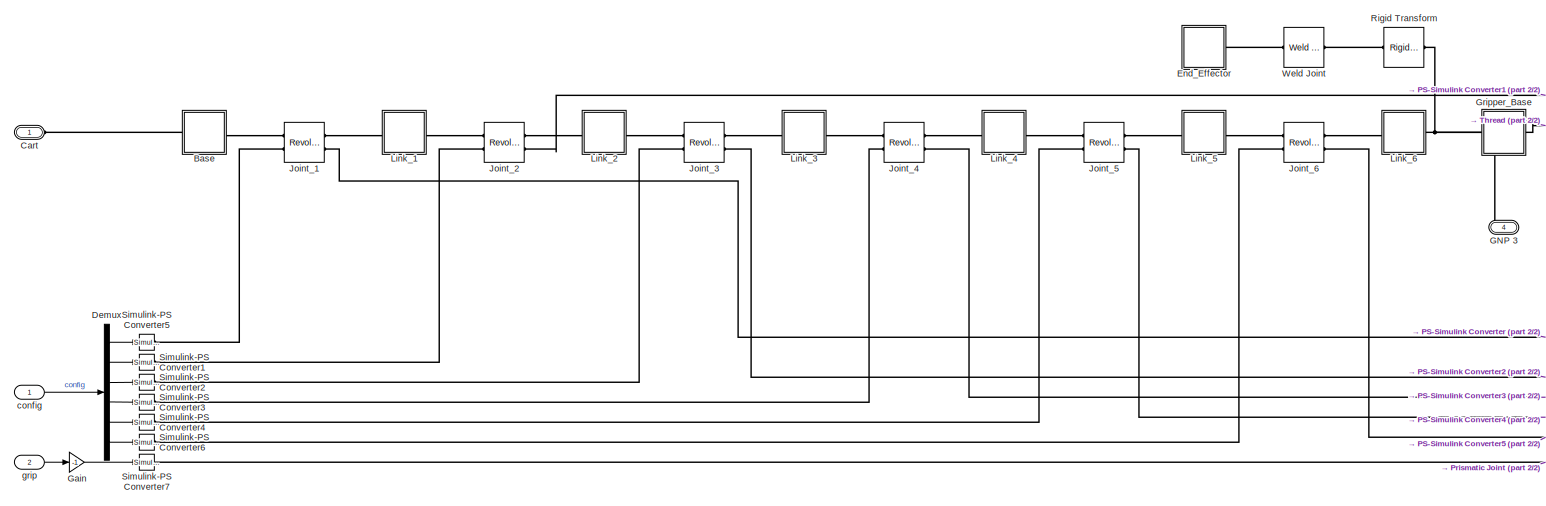
[diagram: Simulation Environment/Position Actuated Robot Environment/Position Actuated Manipulator - part 1/2, most of the canvas]
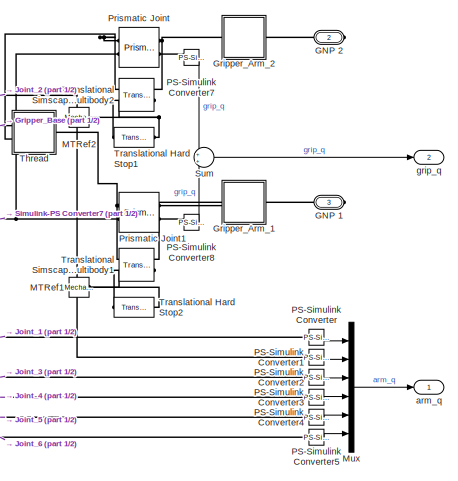
[diagram: Simulation Environment/Position Actuated Robot Environment/Position Actuated Manipulator - part 2/2, right side, full height]
BLOCK [SubSystem] Simulation Environment/Position Actuated Robot Environment/Position Actuated Manipulator
  Ports = [2, 2, 0, 0, 0, 1, 3]
BLOCK [SubSystem] Simulation Environment/Position Actuated Robot Environment/Position Actuated Manipulator/Base
  Ports = [0, 0, 0, 0, 0, 1, 1]
BLOCK [PMIOPort] Simulation Environment/Position Actuated Robot Environment/Position Actuated Manipulator/Base/F
  Side = Left
BLOCK [PMIOPort] Simulation Environment/Position Actuated Robot Environment/Position Actuated Manipulator/Base/F1
  Port = 2
  Side = Right
BLOCK [Reference] Simulation Environment/Position Actuated Robot Environment/Position Actuated Manipulator/Base/Inertia  REF=sm_lib/Body Elements/Inertia
  Ports = [0, 0, 0, 0, 0, 0, 1]
  SourceBlock = sm_lib/Body Elements/Inertia
  SourceType = Inertia
BLOCK [Reference] Simulation Environment/Position Actuated Robot Environment/Position Actuated Manipulator/Base/InertiaOriginTransform  REF=sm_lib/Frames and
Transforms/Rigid
Transform
  Ports = [0, 0, 0, 0, 0, 1, 1]
  SourceBlock = sm_lib/Frames and\nTransforms/Rigid\nTransform
  SourceType = Rigid\nTransform
BLOCK [Reference] Simulation Environment/Position Actuated Robot Environment/Position Actuated Manipulator/Base/ReferenceFrame  REF=sm_lib/Frames and
Transforms/Reference
Frame
  Ports = [0, 0, 0, 0, 0, 0, 1]
  SourceBlock = sm_lib/Frames and\nTransforms/Reference\nFrame
  SourceType = Reference\nFrame
BLOCK [Reference] Simulation Environment/Position Actuated Robot Environment/Position Actuated Manipulator/Base/Visual  REF=sm_lib/Body Elements/File Solid
  Ports = [0, 0, 0, 0, 0, 0, 1]
  SourceBlock = sm_lib/Body Elements/File Solid
  SourceType = File Solid
BLOCK [Reference] Simulation Environment/Position Actuated Robot Environment/Position Actuated Manipulator/Base/Visual1  REF=sm_lib/Body Elements/File Solid
  Ports = [0, 0, 0, 0, 0, 0, 1]
  SourceBlock = sm_lib/Body Elements/File Solid
  SourceType = File Solid
BLOCK [Reference] Simulation Environment/Position Actuated Robot Environment/Position Actuated Manipulator/Base/Visual2  REF=sm_lib/Body Elements/File Solid
  Ports = [0, 0, 0, 0, 0, 0, 1]
  SourceBlock = sm_lib/Body Elements/File Solid
  SourceType = File Solid
BLOCK [Reference] Simulation Environment/Position Actuated Robot Environment/Position Actuated Manipulator/Base/Visual3  REF=sm_lib/Body Elements/File Solid
  Ports = [0, 0, 0, 0, 0, 0, 1]
  SourceBlock = sm_lib/Body Elements/File Solid
  SourceType = File Solid
BLOCK [Reference] Simulation Environment/Position Actuated Robot Environment/Position Actuated Manipulator/Base/VisualOrigin1Transform  REF=sm_lib/Frames and
Transforms/Rigid
Transform
  Ports = [0, 0, 0, 0, 0, 1, 1]
  SourceBlock = sm_lib/Frames and\nTransforms/Rigid\nTransform
  SourceType = Rigid\nTransform
BLOCK [Reference] Simulation Environment/Position Actuated Robot Environment/Position Actuated Manipulator/Base/VisualOrigin2Transform  REF=sm_lib/Frames and
Transforms/Rigid
Transform
  Ports = [0, 0, 0, 0, 0, 1, 1]
  SourceBlock = sm_lib/Frames and\nTransforms/Rigid\nTransform
  SourceType = Rigid\nTransform
BLOCK [Reference] Simulation Environment/Position Actuated Robot Environment/Position Actuated Manipulator/Base/VisualOrigin3Transform  REF=sm_lib/Frames and
Transforms/Rigid
Transform
  Ports = [0, 0, 0, 0, 0, 1, 1]
  SourceBlock = sm_lib/Frames and\nTransforms/Rigid\nTransform
  SourceType = Rigid\nTransform
BLOCK [Reference] Simulation Environment/Position Actuated Robot Environment/Position Actuated Manipulator/Base/VisualOriginTransform  REF=sm_lib/Frames and
Transforms/Rigid
Transform
  Ports = [0, 0, 0, 0, 0, 1, 1]
  SourceBlock = sm_lib/Frames and\nTransforms/Rigid\nTransform
  SourceType = Rigid\nTransform
BLOCK [Reference] Simulation Environment/Position Actuated Robot Environment/Position Actuated Manipulator/Base/x1_AxisTransform  REF=sm_lib/Frames and
Transforms/Rigid
Transform
  Ports = [0, 0, 0, 0, 0, 1, 1]
  SourceBlock = sm_lib/Frames and\nTransforms/Rigid\nTransform
  SourceType = Rigid\nTransform
BLOCK [Reference] Simulation Environment/Position Actuated Robot Environment/Position Actuated Manipulator/Base/x1_OriginTransform  REF=sm_lib/Frames and
Transforms/Rigid
Transform
  Ports = [0, 0, 0, 0, 0, 1, 1]
  SourceBlock = sm_lib/Frames and\nTransforms/Rigid\nTransform
  SourceType = Rigid\nTransform
BLOCK [PMIOPort] Simulation Environment/Position Actuated Robot Environment/Position Actuated Manipulator/Cart
  Side = Left
BLOCK [Demux] Simulation Environment/Position Actuated Robot Environment/Position Actuated Manipulator/Demux
  Outputs = 6
  Ports = [1, 6]
BLOCK [SubSystem] Simulation Environment/Position Actuated Robot Environment/Position Actuated Manipulator/End_Effector
  Ports = [0, 0, 0, 0, 0, 0, 1]
BLOCK [PMIOPort] Simulation Environment/Position Actuated Robot Environment/Position Actuated Manipulator/End_Effector/F
  Side = Right
BLOCK [Reference] Simulation Environment/Position Actuated Robot Environment/Position Actuated Manipulator/End_Effector/Inertia  REF=sm_lib/Body Elements/Inertia
  Ports = [0, 0, 0, 0, 0, 0, 1]
  SourceBlock = sm_lib/Body Elements/Inertia
  SourceType = Inertia
BLOCK [Reference] Simulation Environment/Position Actuated Robot Environment/Position Actuated Manipulator/End_Effector/Reference Frame  REF=sm_lib/Frames and
Transforms/Reference
Frame
  Ports = [0, 0, 0, 0, 0, 0, 1]
  SourceBlock = sm_lib/Frames and\nTransforms/Reference\nFrame
  SourceType = Reference\nFrame
BLOCK [PMIOPort] Simulation Environment/Position Actuated Robot Environment/Position Actuated Manipulator/GNP 1
  Port = 3
  Side = Right
BLOCK [PMIOPort] Simulation Environment/Position Actuated Robot Environment/Position Actuated Manipulator/GNP 2
  Port = 2
  Side = Right
BLOCK [PMIOPort] Simulation Environment/Position Actuated Robot Environment/Position Actuated Manipulator/GNP 3
  Port = 4
  Side = Right
BLOCK [Gain] Simulation Environment/Position Actuated Robot Environment/Position Actuated Manipulator/Gain
  Gain = -1
BLOCK [SubSystem] Simulation Environment/Position Actuated Robot Environment/Position Actuated Manipulator/Gripper_Arm_1
  Ports = [0, 0, 0, 0, 0, 1, 1]
BLOCK [PMIOPort] Simulation Environment/Position Actuated Robot Environment/Position Actuated Manipulator/Gripper_Arm_1/F
  Side = Left
BLOCK [PMIOPort] Simulation Environment/Position Actuated Robot Environment/Position Actuated Manipulator/Gripper_Arm_1/F2
  Port = 2
  Side = Right
BLOCK [Reference] Simulation Environment/Position Actuated Robot Environment/Position Actuated Manipulator/Gripper_Arm_1/Inertia  REF=sm_lib/Body Elements/Inertia
  Ports = [0, 0, 0, 0, 0, 0, 1]
  SourceBlock = sm_lib/Body Elements/Inertia
  SourceType = Inertia
BLOCK [Reference] Simulation Environment/Position Actuated Robot Environment/Position Actuated Manipulator/Gripper_Arm_1/InertiaOriginTransform  REF=sm_lib/Frames and
Transforms/Rigid
Transform
  Ports = [0, 0, 0, 0, 0, 1, 1]
  SourceBlock = sm_lib/Frames and\nTransforms/Rigid\nTransform
  SourceType = Rigid\nTransform
BLOCK [Reference] Simulation Environment/Position Actuated Robot Environment/Position Actuated Manipulator/Gripper_Arm_1/ReferenceFrame  REF=sm_lib/Frames and
Transforms/Reference
Frame
  Ports = [0, 0, 0, 0, 0, 0, 1]
  SourceBlock = sm_lib/Frames and\nTransforms/Reference\nFrame
  SourceType = Reference\nFrame
BLOCK [Reference] Simulation Environment/Position Actuated Robot Environment/Position Actuated Manipulator/Gripper_Arm_1/Visual  REF=sm_lib/Body Elements/File Solid
  Ports = [0, 0, 0, 0, 0, 0, 1]
  SourceBlock = sm_lib/Body Elements/File Solid
  SourceType = File Solid
BLOCK [Reference] Simulation Environment/Position Actuated Robot Environment/Position Actuated Manipulator/Gripper_Arm_1/VisualOriginTransform  REF=sm_lib/Frames and
Transforms/Rigid
Transform
  Ports = [0, 0, 0, 0, 0, 1, 1]
  SourceBlock = sm_lib/Frames and\nTransforms/Rigid\nTransform
  SourceType = Rigid\nTransform
BLOCK [Reference] Simulation Environment/Position Actuated Robot Environment/Position Actuated Manipulator/Gripper_Arm_1/x8_AxisInvTransform  REF=sm_lib/Frames and
Transforms/Rigid
Transform
  Ports = [0, 0, 0, 0, 0, 1, 1]
  SourceBlock = sm_lib/Frames and\nTransforms/Rigid\nTransform
  SourceType = Rigid\nTransform
BLOCK [SubSystem] Simulation Environment/Position Actuated Robot Environment/Position Actuated Manipulator/Gripper_Arm_2
  Ports = [0, 0, 0, 0, 0, 1, 1]
BLOCK [PMIOPort] Simulation Environment/Position Actuated Robot Environment/Position Actuated Manipulator/Gripper_Arm_2/F
  Side = Left
BLOCK [PMIOPort] Simulation Environment/Position Actuated Robot Environment/Position Actuated Manipulator/Gripper_Arm_2/F2
  Port = 2
  Side = Right
BLOCK [Reference] Simulation Environment/Position Actuated Robot Environment/Position Actuated Manipulator/Gripper_Arm_2/Inertia  REF=sm_lib/Body Elements/Inertia
  Ports = [0, 0, 0, 0, 0, 0, 1]
  SourceBlock = sm_lib/Body Elements/Inertia
  SourceType = Inertia
BLOCK [Reference] Simulation Environment/Position Actuated Robot Environment/Position Actuated Manipulator/Gripper_Arm_2/InertiaOriginTransform  REF=sm_lib/Frames and
Transforms/Rigid
Transform
  Ports = [0, 0, 0, 0, 0, 1, 1]
  SourceBlock = sm_lib/Frames and\nTransforms/Rigid\nTransform
  SourceType = Rigid\nTransform
BLOCK [Reference] Simulation Environment/Position Actuated Robot Environment/Position Actuated Manipulator/Gripper_Arm_2/ReferenceFrame  REF=sm_lib/Frames and
Transforms/Reference
Frame
  Ports = [0, 0, 0, 0, 0, 0, 1]
  SourceBlock = sm_lib/Frames and\nTransforms/Reference\nFrame
  SourceType = Reference\nFrame
BLOCK [Reference] Simulation Environment/Position Actuated Robot Environment/Position Actuated Manipulator/Gripper_Arm_2/Visual  REF=sm_lib/Body Elements/File Solid
  Ports = [0, 0, 0, 0, 0, 0, 1]
  SourceBlock = sm_lib/Body Elements/File Solid
  SourceType = File Solid
BLOCK [Reference] Simulation Environment/Position Actuated Robot Environment/Position Actuated Manipulator/Gripper_Arm_2/VisualOriginTransform  REF=sm_lib/Frames and
Transforms/Rigid
Transform
  Ports = [0, 0, 0, 0, 0, 1, 1]
  SourceBlock = sm_lib/Frames and\nTransforms/Rigid\nTransform
  SourceType = Rigid\nTransform
BLOCK [Reference] Simulation Environment/Position Actuated Robot Environment/Position Actuated Manipulator/Gripper_Arm_2/x9_AxisInvTransform  REF=sm_lib/Frames and
Transforms/Rigid
Transform
  Ports = [0, 0, 0, 0, 0, 1, 1]
  SourceBlock = sm_lib/Frames and\nTransforms/Rigid\nTransform
  SourceType = Rigid\nTransform
BLOCK [SubSystem] Simulation Environment/Position Actuated Robot Environment/Position Actuated Manipulator/Gripper_Base
  Ports = [0, 0, 0, 0, 0, 1, 1]
BLOCK [PMIOPort] Simulation Environment/Position Actuated Robot Environment/Position Actuated Manipulator/Gripper_Base/F
  Side = Left
BLOCK [PMIOPort] Simulation Environment/Position Actuated Robot Environment/Position Actuated Manipulator/Gripper_Base/F1
  Port = 2
  Side = Right
BLOCK [Reference] Simulation Environment/Position Actuated Robot Environment/Position Actuated Manipulator/Gripper_Base/Inertia  REF=sm_lib/Body Elements/Inertia
  Ports = [0, 0, 0, 0, 0, 0, 1]
  SourceBlock = sm_lib/Body Elements/Inertia
  SourceType = Inertia
BLOCK [Reference] Simulation Environment/Position Actuated Robot Environment/Position Actuated Manipulator/Gripper_Base/InertiaOriginTransform  REF=sm_lib/Frames and
Transforms/Rigid
Transform
  Ports = [0, 0, 0, 0, 0, 1, 1]
  SourceBlock = sm_lib/Frames and\nTransforms/Rigid\nTransform
  SourceType = Rigid\nTransform
BLOCK [Reference] Simulation Environment/Position Actuated Robot Environment/Position Actuated Manipulator/Gripper_Base/ReferenceFrame  REF=sm_lib/Frames and
Transforms/Reference
Frame
  Ports = [0, 0, 0, 0, 0, 0, 1]
  SourceBlock = sm_lib/Frames and\nTransforms/Reference\nFrame
  SourceType = Reference\nFrame
BLOCK [Reference] Simulation Environment/Position Actuated Robot Environment/Position Actuated Manipulator/Gripper_Base/Visual  REF=sm_lib/Body Elements/File Solid
  Ports = [0, 0, 0, 0, 0, 0, 1]
  SourceBlock = sm_lib/Body Elements/File Solid
  SourceType = File Solid
BLOCK [Reference] Simulation Environment/Position Actuated Robot Environment/Position Actuated Manipulator/Gripper_Base/VisualOriginTransform  REF=sm_lib/Frames and
Transforms/Rigid
Transform
  Ports = [0, 0, 0, 0, 0, 1, 1]
  SourceBlock = sm_lib/Frames and\nTransforms/Rigid\nTransform
  SourceType = Rigid\nTransform
BLOCK [Reference] Simulation Environment/Position Actuated Robot Environment/Position Actuated Manipulator/Gripper_Base/x12_AxisInvTransform  REF=sm_lib/Frames and
Transforms/Rigid
Transform
  Ports = [0, 0, 0, 0, 0, 1, 1]
  SourceBlock = sm_lib/Frames and\nTransforms/Rigid\nTransform
  SourceType = Rigid\nTransform
BLOCK [Reference] Simulation Environment/Position Actuated Robot Environment/Position Actuated Manipulator/Gripper_Base/x7_AxisTransform  REF=sm_lib/Frames and
Transforms/Rigid
Transform
  Ports = [0, 0, 0, 0, 0, 1, 1]
  SourceBlock = sm_lib/Frames and\nTransforms/Rigid\nTransform
  SourceType = Rigid\nTransform
BLOCK [Reference] Simulation Environment/Position Actuated Robot Environment/Position Actuated Manipulator/Gripper_Base/x7_OriginTransform  REF=sm_lib/Frames and
Transforms/Rigid
Transform
  Ports = [0, 0, 0, 0, 0, 1, 1]
  SourceBlock = sm_lib/Frames and\nTransforms/Rigid\nTransform
  SourceType = Rigid\nTransform
BLOCK [Reference] Simulation Environment/Position Actuated Robot Environment/Position Actuated Manipulator/Joint_1  REF=sm_lib/Joints/Revolute Joint
  Ports = [0, 0, 0, 0, 0, 2, 2]
  SourceBlock = sm_lib/Joints/Revolute Joint
  SourceType = Revolute Joint
BLOCK [Reference] Simulation Environment/Position Actuated Robot Environment/Position Actuated Manipulator/Joint_2  REF=sm_lib/Joints/Revolute Joint
  Ports = [0, 0, 0, 0, 0, 2, 2]
  SourceBlock = sm_lib/Joints/Revolute Joint
  SourceType = Revolute Joint
BLOCK [Reference] Simulation Environment/Position Actuated Robot Environment/Position Actuated Manipulator/Joint_3  REF=sm_lib/Joints/Revolute Joint
  Ports = [0, 0, 0, 0, 0, 2, 2]
  SourceBlock = sm_lib/Joints/Revolute Joint
  SourceType = Revolute Joint
BLOCK [Reference] Simulation Environment/Position Actuated Robot Environment/Position Actuated Manipulator/Joint_4  REF=sm_lib/Joints/Revolute Joint
  Ports = [0, 0, 0, 0, 0, 2, 2]
  SourceBlock = sm_lib/Joints/Revolute Joint
  SourceType = Revolute Joint
BLOCK [Reference] Simulation Environment/Position Actuated Robot Environment/Position Actuated Manipulator/Joint_5  REF=sm_lib/Joints/Revolute Joint
  Ports = [0, 0, 0, 0, 0, 2, 2]
  SourceBlock = sm_lib/Joints/Revolute Joint
  SourceType = Revolute Joint
BLOCK [Reference] Simulation Environment/Position Actuated Robot Environment/Position Actuated Manipulator/Joint_6  REF=sm_lib/Joints/Revolute Joint
  Ports = [0, 0, 0, 0, 0, 2, 2]
  SourceBlock = sm_lib/Joints/Revolute Joint
  SourceType = Revolute Joint
BLOCK [SubSystem] Simulation Environment/Position Actuated Robot Environment/Position Actuated Manipulator/Link_1
  Ports = [0, 0, 0, 0, 0, 1, 1]
BLOCK [PMIOPort] Simulation Environment/Position Actuated Robot Environment/Position Actuated Manipulator/Link_1/F
  Side = Left
BLOCK [PMIOPort] Simulation Environment/Position Actuated Robot Environment/Position Actuated Manipulator/Link_1/F1
  Port = 2
  Side = Right
BLOCK [Reference] Simulation Environment/Position Actuated Robot Environment/Position Actuated Manipulator/Link_1/Inertia  REF=sm_lib/Body Elements/Inertia
  Ports = [0, 0, 0, 0, 0, 0, 1]
  SourceBlock = sm_lib/Body Elements/Inertia
  SourceType = Inertia
BLOCK [Reference] Simulation Environment/Position Actuated Robot Environment/Position Actuated Manipulator/Link_1/InertiaOriginTransform  REF=sm_lib/Frames and
Transforms/Rigid
Transform
  Ports = [0, 0, 0, 0, 0, 1, 1]
  SourceBlock = sm_lib/Frames and\nTransforms/Rigid\nTransform
  SourceType = Rigid\nTransform
BLOCK [Reference] Simulation Environment/Position Actuated Robot Environment/Position Actuated Manipulator/Link_1/ReferenceFrame  REF=sm_lib/Frames and
Transforms/Reference
Frame
  Ports = [0, 0, 0, 0, 0, 0, 1]
  SourceBlock = sm_lib/Frames and\nTransforms/Reference\nFrame
  SourceType = Reference\nFrame
BLOCK [Reference] Simulation Environment/Position Actuated Robot Environment/Position Actuated Manipulator/Link_1/Visual  REF=sm_lib/Body Elements/File Solid
  Ports = [0, 0, 0, 0, 0, 0, 1]
  SourceBlock = sm_lib/Body Elements/File Solid
  SourceType = File Solid
BLOCK [Reference] Simulation Environment/Position Actuated Robot Environment/Position Actuated Manipulator/Link_1/Visual1  REF=sm_lib/Body Elements/File Solid
  Ports = [0, 0, 0, 0, 0, 0, 1]
  SourceBlock = sm_lib/Body Elements/File Solid
  SourceType = File Solid
BLOCK [Reference] Simulation Environment/Position Actuated Robot Environment/Position Actuated Manipulator/Link_1/VisualOrigin1Transform  REF=sm_lib/Frames and
Transforms/Rigid
Transform
  Ports = [0, 0, 0, 0, 0, 1, 1]
  SourceBlock = sm_lib/Frames and\nTransforms/Rigid\nTransform
  SourceType = Rigid\nTransform
BLOCK [Reference] Simulation Environment/Position Actuated Robot Environment/Position Actuated Manipulator/Link_1/VisualOriginTransform  REF=sm_lib/Frames and
Transforms/Rigid
Transform
  Ports = [0, 0, 0, 0, 0, 1, 1]
  SourceBlock = sm_lib/Frames and\nTransforms/Rigid\nTransform
  SourceType = Rigid\nTransform
BLOCK [Reference] Simulation Environment/Position Actuated Robot Environment/Position Actuated Manipulator/Link_1/x1_AxisInvTransform  REF=sm_lib/Frames and
Transforms/Rigid
Transform
  Ports = [0, 0, 0, 0, 0, 1, 1]
  SourceBlock = sm_lib/Frames and\nTransforms/Rigid\nTransform
  SourceType = Rigid\nTransform
BLOCK [Reference] Simulation Environment/Position Actuated Robot Environment/Position Actuated Manipulator/Link_1/x2_AxisTransform  REF=sm_lib/Frames and
Transforms/Rigid
Transform
  Ports = [0, 0, 0, 0, 0, 1, 1]
  SourceBlock = sm_lib/Frames and\nTransforms/Rigid\nTransform
  SourceType = Rigid\nTransform
BLOCK [Reference] Simulation Environment/Position Actuated Robot Environment/Position Actuated Manipulator/Link_1/x2_OriginTransform  REF=sm_lib/Frames and
Transforms/Rigid
Transform
  Ports = [0, 0, 0, 0, 0, 1, 1]
  SourceBlock = sm_lib/Frames and\nTransforms/Rigid\nTransform
  SourceType = Rigid\nTransform
BLOCK [SubSystem] Simulation Environment/Position Actuated Robot Environment/Position Actuated Manipulator/Link_2
  Ports = [0, 0, 0, 0, 0, 1, 1]
BLOCK [PMIOPort] Simulation Environment/Position Actuated Robot Environment/Position Actuated Manipulator/Link_2/F
  Side = Left
BLOCK [PMIOPort] Simulation Environment/Position Actuated Robot Environment/Position Actuated Manipulator/Link_2/F1
  Port = 2
  Side = Right
BLOCK [Reference] Simulation Environment/Position Actuated Robot Environment/Position Actuated Manipulator/Link_2/Inertia  REF=sm_lib/Body Elements/Inertia
  Ports = [0, 0, 0, 0, 0, 0, 1]
  SourceBlock = sm_lib/Body Elements/Inertia
  SourceType = Inertia
BLOCK [Reference] Simulation Environment/Position Actuated Robot Environment/Position Actuated Manipulator/Link_2/InertiaOriginTransform  REF=sm_lib/Frames and
Transforms/Rigid
Transform
  Ports = [0, 0, 0, 0, 0, 1, 1]
  SourceBlock = sm_lib/Frames and\nTransforms/Rigid\nTransform
  SourceType = Rigid\nTransform
BLOCK [Reference] Simulation Environment/Position Actuated Robot Environment/Position Actuated Manipulator/Link_2/ReferenceFrame  REF=sm_lib/Frames and
Transforms/Reference
Frame
  Ports = [0, 0, 0, 0, 0, 0, 1]
  SourceBlock = sm_lib/Frames and\nTransforms/Reference\nFrame
  SourceType = Reference\nFrame
BLOCK [Reference] Simulation Environment/Position Actuated Robot Environment/Position Actuated Manipulator/Link_2/Visual  REF=sm_lib/Body Elements/File Solid
  Ports = [0, 0, 0, 0, 0, 0, 1]
  SourceBlock = sm_lib/Body Elements/File Solid
  SourceType = File Solid
BLOCK [Reference] Simulation Environment/Position Actuated Robot Environment/Position Actuated Manipulator/Link_2/Visual1  REF=sm_lib/Body Elements/File Solid
  Ports = [0, 0, 0, 0, 0, 0, 1]
  SourceBlock = sm_lib/Body Elements/File Solid
  SourceType = File Solid
BLOCK [Reference] Simulation Environment/Position Actuated Robot Environment/Position Actuated Manipulator/Link_2/Visual2  REF=sm_lib/Body Elements/File Solid
  Ports = [0, 0, 0, 0, 0, 0, 1]
  SourceBlock = sm_lib/Body Elements/File Solid
  SourceType = File Solid
BLOCK [Reference] Simulation Environment/Position Actuated Robot Environment/Position Actuated Manipulator/Link_2/VisualOrigin1Transform  REF=sm_lib/Frames and
Transforms/Rigid
Transform
  Ports = [0, 0, 0, 0, 0, 1, 1]
  SourceBlock = sm_lib/Frames and\nTransforms/Rigid\nTransform
  SourceType = Rigid\nTransform
BLOCK [Reference] Simulation Environment/Position Actuated Robot Environment/Position Actuated Manipulator/Link_2/VisualOrigin2Transform  REF=sm_lib/Frames and
Transforms/Rigid
Transform
  Ports = [0, 0, 0, 0, 0, 1, 1]
  SourceBlock = sm_lib/Frames and\nTransforms/Rigid\nTransform
  SourceType = Rigid\nTransform
BLOCK [Reference] Simulation Environment/Position Actuated Robot Environment/Position Actuated Manipulator/Link_2/VisualOriginTransform  REF=sm_lib/Frames and
Transforms/Rigid
Transform
  Ports = [0, 0, 0, 0, 0, 1, 1]
  SourceBlock = sm_lib/Frames and\nTransforms/Rigid\nTransform
  SourceType = Rigid\nTransform
BLOCK [Reference] Simulation Environment/Position Actuated Robot Environment/Position Actuated Manipulator/Link_2/x2_AxisInvTransform  REF=sm_lib/Frames and
Transforms/Rigid
Transform
  Ports = [0, 0, 0, 0, 0, 1, 1]
  SourceBlock = sm_lib/Frames and\nTransforms/Rigid\nTransform
  SourceType = Rigid\nTransform
BLOCK [Reference] Simulation Environment/Position Actuated Robot Environment/Position Actuated Manipulator/Link_2/x3_AxisTransform  REF=sm_lib/Frames and
Transforms/Rigid
Transform
  Ports = [0, 0, 0, 0, 0, 1, 1]
  SourceBlock = sm_lib/Frames and\nTransforms/Rigid\nTransform
  SourceType = Rigid\nTransform
BLOCK [Reference] Simulation Environment/Position Actuated Robot Environment/Position Actuated Manipulator/Link_2/x3_OriginTransform  REF=sm_lib/Frames and
Transforms/Rigid
Transform
  Ports = [0, 0, 0, 0, 0, 1, 1]
  SourceBlock = sm_lib/Frames and\nTransforms/Rigid\nTransform
  SourceType = Rigid\nTransform
BLOCK [SubSystem] Simulation Environment/Position Actuated Robot Environment/Position Actuated Manipulator/Link_3
  Ports = [0, 0, 0, 0, 0, 1, 1]
BLOCK [PMIOPort] Simulation Environment/Position Actuated Robot Environment/Position Actuated Manipulator/Link_3/F
  Side = Left
BLOCK [PMIOPort] Simulation Environment/Position Actuated Robot Environment/Position Actuated Manipulator/Link_3/F1
  Port = 2
  Side = Right
BLOCK [Reference] Simulation Environment/Position Actuated Robot Environment/Position Actuated Manipulator/Link_3/Inertia  REF=sm_lib/Body Elements/Inertia
  Ports = [0, 0, 0, 0, 0, 0, 1]
  SourceBlock = sm_lib/Body Elements/Inertia
  SourceType = Inertia
BLOCK [Reference] Simulation Environment/Position Actuated Robot Environment/Position Actuated Manipulator/Link_3/InertiaOriginTransform  REF=sm_lib/Frames and
Transforms/Rigid
Transform
  Ports = [0, 0, 0, 0, 0, 1, 1]
  SourceBlock = sm_lib/Frames and\nTransforms/Rigid\nTransform
  SourceType = Rigid\nTransform
BLOCK [Reference] Simulation Environment/Position Actuated Robot Environment/Position Actuated Manipulator/Link_3/ReferenceFrame  REF=sm_lib/Frames and
Transforms/Reference
Frame
  Ports = [0, 0, 0, 0, 0, 0, 1]
  SourceBlock = sm_lib/Frames and\nTransforms/Reference\nFrame
  SourceType = Reference\nFrame
BLOCK [Reference] Simulation Environment/Position Actuated Robot Environment/Position Actuated Manipulator/Link_3/Visual  REF=sm_lib/Body Elements/File Solid
  Ports = [0, 0, 0, 0, 0, 0, 1]
  SourceBlock = sm_lib/Body Elements/File Solid
  SourceType = File Solid
BLOCK [Reference] Simulation Environment/Position Actuated Robot Environment/Position Actuated Manipulator/Link_3/Visual1  REF=sm_lib/Body Elements/File Solid
  Ports = [0, 0, 0, 0, 0, 0, 1]
  SourceBlock = sm_lib/Body Elements/File Solid
  SourceType = File Solid
BLOCK [Reference] Simulation Environment/Position Actuated Robot Environment/Position Actuated Manipulator/Link_3/VisualOrigin1Transform  REF=sm_lib/Frames and
Transforms/Rigid
Transform
  Ports = [0, 0, 0, 0, 0, 1, 1]
  SourceBlock = sm_lib/Frames and\nTransforms/Rigid\nTransform
  SourceType = Rigid\nTransform
BLOCK [Reference] Simulation Environment/Position Actuated Robot Environment/Position Actuated Manipulator/Link_3/VisualOriginTransform  REF=sm_lib/Frames and
Transforms/Rigid
Transform
  Ports = [0, 0, 0, 0, 0, 1, 1]
  SourceBlock = sm_lib/Frames and\nTransforms/Rigid\nTransform
  SourceType = Rigid\nTransform
BLOCK [Reference] Simulation Environment/Position Actuated Robot Environment/Position Actuated Manipulator/Link_3/x3_AxisInvTransform  REF=sm_lib/Frames and
Transforms/Rigid
Transform
  Ports = [0, 0, 0, 0, 0, 1, 1]
  SourceBlock = sm_lib/Frames and\nTransforms/Rigid\nTransform
  SourceType = Rigid\nTransform
BLOCK [Reference] Simulation Environment/Position Actuated Robot Environment/Position Actuated Manipulator/Link_3/x4_AxisTransform  REF=sm_lib/Frames and
Transforms/Rigid
Transform
  Ports = [0, 0, 0, 0, 0, 1, 1]
  SourceBlock = sm_lib/Frames and\nTransforms/Rigid\nTransform
  SourceType = Rigid\nTransform
BLOCK [Reference] Simulation Environment/Position Actuated Robot Environment/Position Actuated Manipulator/Link_3/x4_OriginTransform  REF=sm_lib/Frames and
Transforms/Rigid
Transform
  Ports = [0, 0, 0, 0, 0, 1, 1]
  SourceBlock = sm_lib/Frames and\nTransforms/Rigid\nTransform
  SourceType = Rigid\nTransform
BLOCK [SubSystem] Simulation Environment/Position Actuated Robot Environment/Position Actuated Manipulator/Link_4
  Ports = [0, 0, 0, 0, 0, 1, 1]
BLOCK [PMIOPort] Simulation Environment/Position Actuated Robot Environment/Position Actuated Manipulator/Link_4/F
  Side = Left
BLOCK [PMIOPort] Simulation Environment/Position Actuated Robot Environment/Position Actuated Manipulator/Link_4/F1
  Port = 2
  Side = Right
BLOCK [Reference] Simulation Environment/Position Actuated Robot Environment/Position Actuated Manipulator/Link_4/Inertia  REF=sm_lib/Body Elements/Inertia
  Ports = [0, 0, 0, 0, 0, 0, 1]
  SourceBlock = sm_lib/Body Elements/Inertia
  SourceType = Inertia
BLOCK [Reference] Simulation Environment/Position Actuated Robot Environment/Position Actuated Manipulator/Link_4/InertiaOriginTransform  REF=sm_lib/Frames and
Transforms/Rigid
Transform
  Ports = [0, 0, 0, 0, 0, 1, 1]
  SourceBlock = sm_lib/Frames and\nTransforms/Rigid\nTransform
  SourceType = Rigid\nTransform
BLOCK [Reference] Simulation Environment/Position Actuated Robot Environment/Position Actuated Manipulator/Link_4/ReferenceFrame  REF=sm_lib/Frames and
Transforms/Reference
Frame
  Ports = [0, 0, 0, 0, 0, 0, 1]
  SourceBlock = sm_lib/Frames and\nTransforms/Reference\nFrame
  SourceType = Reference\nFrame
BLOCK [Reference] Simulation Environment/Position Actuated Robot Environment/Position Actuated Manipulator/Link_4/Visual  REF=sm_lib/Body Elements/File Solid
  Ports = [0, 0, 0, 0, 0, 0, 1]
  SourceBlock = sm_lib/Body Elements/File Solid
  SourceType = File Solid
BLOCK [Reference] Simulation Environment/Position Actuated Robot Environment/Position Actuated Manipulator/Link_4/Visual1  REF=sm_lib/Body Elements/File Solid
  Ports = [0, 0, 0, 0, 0, 0, 1]
  SourceBlock = sm_lib/Body Elements/File Solid
  SourceType = File Solid
BLOCK [Reference] Simulation Environment/Position Actuated Robot Environment/Position Actuated Manipulator/Link_4/Visual2  REF=sm_lib/Body Elements/File Solid
  Ports = [0, 0, 0, 0, 0, 0, 1]
  SourceBlock = sm_lib/Body Elements/File Solid
  SourceType = File Solid
BLOCK [Reference] Simulation Environment/Position Actuated Robot Environment/Position Actuated Manipulator/Link_4/VisualOrigin1Transform  REF=sm_lib/Frames and
Transforms/Rigid
Transform
  Ports = [0, 0, 0, 0, 0, 1, 1]
  SourceBlock = sm_lib/Frames and\nTransforms/Rigid\nTransform
  SourceType = Rigid\nTransform
BLOCK [Reference] Simulation Environment/Position Actuated Robot Environment/Position Actuated Manipulator/Link_4/VisualOrigin2Transform  REF=sm_lib/Frames and
Transforms/Rigid
Transform
  Ports = [0, 0, 0, 0, 0, 1, 1]
  SourceBlock = sm_lib/Frames and\nTransforms/Rigid\nTransform
  SourceType = Rigid\nTransform
BLOCK [Reference] Simulation Environment/Position Actuated Robot Environment/Position Actuated Manipulator/Link_4/VisualOriginTransform  REF=sm_lib/Frames and
Transforms/Rigid
Transform
  Ports = [0, 0, 0, 0, 0, 1, 1]
  SourceBlock = sm_lib/Frames and\nTransforms/Rigid\nTransform
  SourceType = Rigid\nTransform
BLOCK [Reference] Simulation Environment/Position Actuated Robot Environment/Position Actuated Manipulator/Link_4/x4_AxisInvTransform  REF=sm_lib/Frames and
Transforms/Rigid
Transform
  Ports = [0, 0, 0, 0, 0, 1, 1]
  SourceBlock = sm_lib/Frames and\nTransforms/Rigid\nTransform
  SourceType = Rigid\nTransform
BLOCK [Reference] Simulation Environment/Position Actuated Robot Environment/Position Actuated Manipulator/Link_4/x5_AxisTransform  REF=sm_lib/Frames and
Transforms/Rigid
Transform
  Ports = [0, 0, 0, 0, 0, 1, 1]
  SourceBlock = sm_lib/Frames and\nTransforms/Rigid\nTransform
  SourceType = Rigid\nTransform
BLOCK [Reference] Simulation Environment/Position Actuated Robot Environment/Position Actuated Manipulator/Link_4/x5_OriginTransform  REF=sm_lib/Frames and
Transforms/Rigid
Transform
  Ports = [0, 0, 0, 0, 0, 1, 1]
  SourceBlock = sm_lib/Frames and\nTransforms/Rigid\nTransform
  SourceType = Rigid\nTransform
BLOCK [SubSystem] Simulation Environment/Position Actuated Robot Environment/Position Actuated Manipulator/Link_5
  Ports = [0, 0, 0, 0, 0, 1, 1]
BLOCK [PMIOPort] Simulation Environment/Position Actuated Robot Environment/Position Actuated Manipulator/Link_5/F
  Side = Left
BLOCK [PMIOPort] Simulation Environment/Position Actuated Robot Environment/Position Actuated Manipulator/Link_5/F1
  Port = 2
  Side = Right
BLOCK [Reference] Simulation Environment/Position Actuated Robot Environment/Position Actuated Manipulator/Link_5/Inertia  REF=sm_lib/Body Elements/Inertia
  Ports = [0, 0, 0, 0, 0, 0, 1]
  SourceBlock = sm_lib/Body Elements/Inertia
  SourceType = Inertia
BLOCK [Reference] Simulation Environment/Position Actuated Robot Environment/Position Actuated Manipulator/Link_5/InertiaOriginTransform  REF=sm_lib/Frames and
Transforms/Rigid
Transform
  Ports = [0, 0, 0, 0, 0, 1, 1]
  SourceBlock = sm_lib/Frames and\nTransforms/Rigid\nTransform
  SourceType = Rigid\nTransform
BLOCK [Reference] Simulation Environment/Position Actuated Robot Environment/Position Actuated Manipulator/Link_5/ReferenceFrame  REF=sm_lib/Frames and
Transforms/Reference
Frame
  Ports = [0, 0, 0, 0, 0, 0, 1]
  SourceBlock = sm_lib/Frames and\nTransforms/Reference\nFrame
  SourceType = Reference\nFrame
BLOCK [Reference] Simulation Environment/Position Actuated Robot Environment/Position Actuated Manipulator/Link_5/Visual  REF=sm_lib/Body Elements/File Solid
  Ports = [0, 0, 0, 0, 0, 0, 1]
  SourceBlock = sm_lib/Body Elements/File Solid
  SourceType = File Solid
BLOCK [Reference] Simulation Environment/Position Actuated Robot Environment/Position Actuated Manipulator/Link_5/Visual1  REF=sm_lib/Body Elements/File Solid
  Ports = [0, 0, 0, 0, 0, 0, 1]
  SourceBlock = sm_lib/Body Elements/File Solid
  SourceType = File Solid
BLOCK [Reference] Simulation Environment/Position Actuated Robot Environment/Position Actuated Manipulator/Link_5/VisualOrigin1Transform  REF=sm_lib/Frames and
Transforms/Rigid
Transform
  Ports = [0, 0, 0, 0, 0, 1, 1]
  SourceBlock = sm_lib/Frames and\nTransforms/Rigid\nTransform
  SourceType = Rigid\nTransform
BLOCK [Reference] Simulation Environment/Position Actuated Robot Environment/Position Actuated Manipulator/Link_5/VisualOriginTransform  REF=sm_lib/Frames and
Transforms/Rigid
Transform
  Ports = [0, 0, 0, 0, 0, 1, 1]
  SourceBlock = sm_lib/Frames and\nTransforms/Rigid\nTransform
  SourceType = Rigid\nTransform
BLOCK [Reference] Simulation Environment/Position Actuated Robot Environment/Position Actuated Manipulator/Link_5/x5_AxisInvTransform  REF=sm_lib/Frames and
Transforms/Rigid
Transform
  Ports = [0, 0, 0, 0, 0, 1, 1]
  SourceBlock = sm_lib/Frames and\nTransforms/Rigid\nTransform
  SourceType = Rigid\nTransform
BLOCK [Reference] Simulation Environment/Position Actuated Robot Environment/Position Actuated Manipulator/Link_5/x6_AxisTransform  REF=sm_lib/Frames and
Transforms/Rigid
Transform
  Ports = [0, 0, 0, 0, 0, 1, 1]
  SourceBlock = sm_lib/Frames and\nTransforms/Rigid\nTransform
  SourceType = Rigid\nTransform
BLOCK [Reference] Simulation Environment/Position Actuated Robot Environment/Position Actuated Manipulator/Link_5/x6_OriginTransform  REF=sm_lib/Frames and
Transforms/Rigid
Transform
  Ports = [0, 0, 0, 0, 0, 1, 1]
  SourceBlock = sm_lib/Frames and\nTransforms/Rigid\nTransform
  SourceType = Rigid\nTransform
BLOCK [SubSystem] Simulation Environment/Position Actuated Robot Environment/Position Actuated Manipulator/Link_6
  Ports = [0, 0, 0, 0, 0, 1, 1]
BLOCK [PMIOPort] Simulation Environment/Position Actuated Robot Environment/Position Actuated Manipulator/Link_6/F
  Side = Left
BLOCK [PMIOPort] Simulation Environment/Position Actuated Robot Environment/Position Actuated Manipulator/Link_6/F1
  Port = 2
  Side = Right
BLOCK [Reference] Simulation Environment/Position Actuated Robot Environment/Position Actuated Manipulator/Link_6/Inertia  REF=sm_lib/Body Elements/Inertia
  Ports = [0, 0, 0, 0, 0, 0, 1]
  SourceBlock = sm_lib/Body Elements/Inertia
  SourceType = Inertia
BLOCK [Reference] Simulation Environment/Position Actuated Robot Environment/Position Actuated Manipulator/Link_6/InertiaOriginTransform  REF=sm_lib/Frames and
Transforms/Rigid
Transform
  Ports = [0, 0, 0, 0, 0, 1, 1]
  SourceBlock = sm_lib/Frames and\nTransforms/Rigid\nTransform
  SourceType = Rigid\nTransform
BLOCK [Reference] Simulation Environment/Position Actuated Robot Environment/Position Actuated Manipulator/Link_6/ReferenceFrame  REF=sm_lib/Frames and
Transforms/Reference
Frame
  Ports = [0, 0, 0, 0, 0, 0, 1]
  SourceBlock = sm_lib/Frames and\nTransforms/Reference\nFrame
  SourceType = Reference\nFrame
BLOCK [Reference] Simulation Environment/Position Actuated Robot Environment/Position Actuated Manipulator/Link_6/Visual  REF=sm_lib/Body Elements/File Solid
  Ports = [0, 0, 0, 0, 0, 0, 1]
  SourceBlock = sm_lib/Body Elements/File Solid
  SourceType = File Solid
BLOCK [Reference] Simulation Environment/Position Actuated Robot Environment/Position Actuated Manipulator/Link_6/Visual1  REF=sm_lib/Body Elements/File Solid
  Ports = [0, 0, 0, 0, 0, 0, 1]
  SourceBlock = sm_lib/Body Elements/File Solid
  SourceType = File Solid
BLOCK [Reference] Simulation Environment/Position Actuated Robot Environment/Position Actuated Manipulator/Link_6/Visual2  REF=sm_lib/Body Elements/File Solid
  Ports = [0, 0, 0, 0, 0, 0, 1]
  SourceBlock = sm_lib/Body Elements/File Solid
  SourceType = File Solid
BLOCK [Reference] Simulation Environment/Position Actuated Robot Environment/Position Actuated Manipulator/Link_6/Visual3  REF=sm_lib/Body Elements/File Solid
  Ports = [0, 0, 0, 0, 0, 0, 1]
  SourceBlock = sm_lib/Body Elements/File Solid
  SourceType = File Solid
BLOCK [Reference] Simulation Environment/Position Actuated Robot Environment/Position Actuated Manipulator/Link_6/Visual4  REF=sm_lib/Body Elements/File Solid
  Ports = [0, 0, 0, 0, 0, 0, 1]
  SourceBlock = sm_lib/Body Elements/File Solid
  SourceType = File Solid
BLOCK [Reference] Simulation Environment/Position Actuated Robot Environment/Position Actuated Manipulator/Link_6/Visual5  REF=sm_lib/Body Elements/File Solid
  Ports = [0, 0, 0, 0, 0, 0, 1]
  SourceBlock = sm_lib/Body Elements/File Solid
  SourceType = File Solid
BLOCK [Reference] Simulation Environment/Position Actuated Robot Environment/Position Actuated Manipulator/Link_6/Visual6  REF=sm_lib/Body Elements/File Solid
  Ports = [0, 0, 0, 0, 0, 0, 1]
  SourceBlock = sm_lib/Body Elements/File Solid
  SourceType = File Solid
BLOCK [Reference] Simulation Environment/Position Actuated Robot Environment/Position Actuated Manipulator/Link_6/Visual7  REF=sm_lib/Body Elements/File Solid
  Ports = [0, 0, 0, 0, 0, 0, 1]
  SourceBlock = sm_lib/Body Elements/File Solid
  SourceType = File Solid
BLOCK [Reference] Simulation Environment/Position Actuated Robot Environment/Position Actuated Manipulator/Link_6/VisualOrigin1Transform  REF=sm_lib/Frames and
Transforms/Rigid
Transform
  Ports = [0, 0, 0, 0, 0, 1, 1]
  SourceBlock = sm_lib/Frames and\nTransforms/Rigid\nTransform
  SourceType = Rigid\nTransform
BLOCK [Reference] Simulation Environment/Position Actuated Robot Environment/Position Actuated Manipulator/Link_6/VisualOrigin2Transform  REF=sm_lib/Frames and
Transforms/Rigid
Transform
  Ports = [0, 0, 0, 0, 0, 1, 1]
  SourceBlock = sm_lib/Frames and\nTransforms/Rigid\nTransform
  SourceType = Rigid\nTransform
BLOCK [Reference] Simulation Environment/Position Actuated Robot Environment/Position Actuated Manipulator/Link_6/VisualOrigin3Transform  REF=sm_lib/Frames and
Transforms/Rigid
Transform
  Ports = [0, 0, 0, 0, 0, 1, 1]
  SourceBlock = sm_lib/Frames and\nTransforms/Rigid\nTransform
  SourceType = Rigid\nTransform
BLOCK [Reference] Simulation Environment/Position Actuated Robot Environment/Position Actuated Manipulator/Link_6/VisualOrigin4Transform  REF=sm_lib/Frames and
Transforms/Rigid
Transform
  Ports = [0, 0, 0, 0, 0, 1, 1]
  SourceBlock = sm_lib/Frames and\nTransforms/Rigid\nTransform
  SourceType = Rigid\nTransform
BLOCK [Reference] Simulation Environment/Position Actuated Robot Environment/Position Actuated Manipulator/Link_6/VisualOrigin5Transform  REF=sm_lib/Frames and
Transforms/Rigid
Transform
  Ports = [0, 0, 0, 0, 0, 1, 1]
  SourceBlock = sm_lib/Frames and\nTransforms/Rigid\nTransform
  SourceType = Rigid\nTransform
BLOCK [Reference] Simulation Environment/Position Actuated Robot Environment/Position Actuated Manipulator/Link_6/VisualOrigin6Transform  REF=sm_lib/Frames and
Transforms/Rigid
Transform
  Ports = [0, 0, 0, 0, 0, 1, 1]
  SourceBlock = sm_lib/Frames and\nTransforms/Rigid\nTransform
  SourceType = Rigid\nTransform
BLOCK [Reference] Simulation Environment/Position Actuated Robot Environment/Position Actuated Manipulator/Link_6/VisualOrigin7Transform  REF=sm_lib/Frames and
Transforms/Rigid
Transform
  Ports = [0, 0, 0, 0, 0, 1, 1]
  SourceBlock = sm_lib/Frames and\nTransforms/Rigid\nTransform
  SourceType = Rigid\nTransform
BLOCK [Reference] Simulation Environment/Position Actuated Robot Environment/Position Actuated Manipulator/Link_6/VisualOriginTransform  REF=sm_lib/Frames and
Transforms/Rigid
Transform
  Ports = [0, 0, 0, 0, 0, 1, 1]
  SourceBlock = sm_lib/Frames and\nTransforms/Rigid\nTransform
  SourceType = Rigid\nTransform
BLOCK [Reference] Simulation Environment/Position Actuated Robot Environment/Position Actuated Manipulator/Link_6/x12_AxisTransform  REF=sm_lib/Frames and
Transforms/Rigid
Transform
  Ports = [0, 0, 0, 0, 0, 1, 1]
  SourceBlock = sm_lib/Frames and\nTransforms/Rigid\nTransform
  SourceType = Rigid\nTransform
BLOCK [Reference] Simulation Environment/Position Actuated Robot Environment/Position Actuated Manipulator/Link_6/x12_OriginTransform  REF=sm_lib/Frames and
Transforms/Rigid
Transform
  Ports = [0, 0, 0, 0, 0, 1, 1]
  SourceBlock = sm_lib/Frames and\nTransforms/Rigid\nTransform
  SourceType = Rigid\nTransform
BLOCK [Reference] Simulation Environment/Position Actuated Robot Environment/Position Actuated Manipulator/Link_6/x6_AxisInvTransform  REF=sm_lib/Frames and
Transforms/Rigid
Transform
  Ports = [0, 0, 0, 0, 0, 1, 1]
  SourceBlock = sm_lib/Frames and\nTransforms/Rigid\nTransform
  SourceType = Rigid\nTransform
BLOCK [Reference] Simulation Environment/Position Actuated Robot Environment/Position Actuated Manipulator/MTRef1  REF=fl_lib/Mechanical/Translational
Elements/Mechanical
Translational
Reference
  Ports = [0, 0, 0, 0, 0, 1]
  SourceBlock = fl_lib/Mechanical/Translational\nElements/Mechanical\nTranslational\nReference
  SourceType = Mechanical\nTranslational\nReference
BLOCK [Reference] Simulation Environment/Position Actuated Robot Environment/Position Actuated Manipulator/MTRef2  REF=fl_lib/Mechanical/Translational
Elements/Mechanical
Translational
Reference
  Ports = [0, 0, 0, 0, 0, 1]
  SourceBlock = fl_lib/Mechanical/Translational\nElements/Mechanical\nTranslational\nReference
  SourceType = Mechanical\nTranslational\nReference
BLOCK [Mux] Simulation Environment/Position Actuated Robot Environment/Position Actuated Manipulator/Mux
  DisplayOption = bar
  Inputs = 6
  Ports = [6, 1]
BLOCK [Reference] Simulation Environment/Position Actuated Robot Environment/Position Actuated Manipulator/PS-Simulink Converter  REF=nesl_utility/PS-Simulink
Converter
  Ports = [0, 1, 0, 0, 0, 1]
  SourceBlock = nesl_utility/PS-Simulink\nConverter
  SourceType = PS-Simulink\nConverter
BLOCK [Reference] Simulation Environment/Position Actuated Robot Environment/Position Actuated Manipulator/PS-Simulink Converter1  REF=nesl_utility/PS-Simulink
Converter
  Ports = [0, 1, 0, 0, 0, 1]
  SourceBlock = nesl_utility/PS-Simulink\nConverter
  SourceType = PS-Simulink\nConverter
BLOCK [Reference] Simulation Environment/Position Actuated Robot Environment/Position Actuated Manipulator/PS-Simulink Converter2  REF=nesl_utility/PS-Simulink
Converter
  Ports = [0, 1, 0, 0, 0, 1]
  SourceBlock = nesl_utility/PS-Simulink\nConverter
  SourceType = PS-Simulink\nConverter
BLOCK [Reference] Simulation Environment/Position Actuated Robot Environment/Position Actuated Manipulator/PS-Simulink Converter3  REF=nesl_utility/PS-Simulink
Converter
  Ports = [0, 1, 0, 0, 0, 1]
  SourceBlock = nesl_utility/PS-Simulink\nConverter
  SourceType = PS-Simulink\nConverter
BLOCK [Reference] Simulation Environment/Position Actuated Robot Environment/Position Actuated Manipulator/PS-Simulink Converter4  REF=nesl_utility/PS-Simulink
Converter
  Ports = [0, 1, 0, 0, 0, 1]
  SourceBlock = nesl_utility/PS-Simulink\nConverter
  SourceType = PS-Simulink\nConverter
BLOCK [Reference] Simulation Environment/Position Actuated Robot Environment/Position Actuated Manipulator/PS-Simulink Converter5  REF=nesl_utility/PS-Simulink
Converter
  Ports = [0, 1, 0, 0, 0, 1]
  SourceBlock = nesl_utility/PS-Simulink\nConverter
  SourceType = PS-Simulink\nConverter
BLOCK [Reference] Simulation Environment/Position Actuated Robot Environment/Position Actuated Manipulator/PS-Simulink Converter7  REF=nesl_utility/PS-Simulink
Converter
  Ports = [0, 1, 0, 0, 0, 1]
  SourceBlock = nesl_utility/PS-Simulink\nConverter
  SourceType = PS-Simulink\nConverter
BLOCK [Reference] Simulation Environment/Position Actuated Robot Environment/Position Actuated Manipulator/PS-Simulink Converter8  REF=nesl_utility/PS-Simulink
Converter
  Ports = [0, 1, 0, 0, 0, 1]
  SourceBlock = nesl_utility/PS-Simulink\nConverter
  SourceType = PS-Simulink\nConverter
BLOCK [Reference] Simulation Environment/Position Actuated Robot Environment/Position Actuated Manipulator/Prismatic Joint  REF=sm_lib/Joints/Prismatic
Joint
  Ports = [0, 0, 0, 0, 0, 2, 2]
  SourceBlock = sm_lib/Joints/Prismatic\nJoint
  SourceType = Prismatic\nJoint
BLOCK [Reference] Simulation Environment/Position Actuated Robot Environment/Position Actuated Manipulator/Prismatic Joint1  REF=sm_lib/Joints/Prismatic
Joint
  Ports = [0, 0, 0, 0, 0, 2, 2]
  SourceBlock = sm_lib/Joints/Prismatic\nJoint
  SourceType = Prismatic\nJoint
BLOCK [Reference] Simulation Environment/Position Actuated Robot Environment/Position Actuated Manipulator/Rigid Transform  REF=sm_lib/Frames and
Transforms/Rigid
Transform
  Ports = [0, 0, 0, 0, 0, 1, 1]
  SourceBlock = sm_lib/Frames and\nTransforms/Rigid\nTransform
  SourceType = Rigid\nTransform
BLOCK [Reference] Simulation Environment/Position Actuated Robot Environment/Position Actuated Manipulator/Simulink-PS Converter1  REF=nesl_utility/Simulink-PS
Converter
  Ports = [1, 0, 0, 0, 0, 0, 1]
  SourceBlock = nesl_utility/Simulink-PS\nConverter
  SourceType = Simulink-PS\nConverter
BLOCK [Reference] Simulation Environment/Position Actuated Robot Environment/Position Actuated Manipulator/Simulink-PS Converter2  REF=nesl_utility/Simulink-PS
Converter
  Ports = [1, 0, 0, 0, 0, 0, 1]
  SourceBlock = nesl_utility/Simulink-PS\nConverter
  SourceType = Simulink-PS\nConverter
BLOCK [Reference] Simulation Environment/Position Actuated Robot Environment/Position Actuated Manipulator/Simulink-PS Converter3  REF=nesl_utility/Simulink-PS
Converter
  Ports = [1, 0, 0, 0, 0, 0, 1]
  SourceBlock = nesl_utility/Simulink-PS\nConverter
  SourceType = Simulink-PS\nConverter
BLOCK [Reference] Simulation Environment/Position Actuated Robot Environment/Position Actuated Manipulator/Simulink-PS Converter4  REF=nesl_utility/Simulink-PS
Converter
  Ports = [1, 0, 0, 0, 0, 0, 1]
  SourceBlock = nesl_utility/Simulink-PS\nConverter
  SourceType = Simulink-PS\nConverter
BLOCK [Reference] Simulation Environment/Position Actuated Robot Environment/Position Actuated Manipulator/Simulink-PS Converter5  REF=nesl_utility/Simulink-PS
Converter
  Ports = [1, 0, 0, 0, 0, 0, 1]
  SourceBlock = nesl_utility/Simulink-PS\nConverter
  SourceType = Simulink-PS\nConverter
BLOCK [Reference] Simulation Environment/Position Actuated Robot Environment/Position Actuated Manipulator/Simulink-PS Converter6  REF=nesl_utility/Simulink-PS
Converter
  Ports = [1, 0, 0, 0, 0, 0, 1]
  SourceBlock = nesl_utility/Simulink-PS\nConverter
  SourceType = Simulink-PS\nConverter
BLOCK [Reference] Simulation Environment/Position Actuated Robot Environment/Position Actuated Manipulator/Simulink-PS Converter7  REF=nesl_utility/Simulink-PS
Converter
  Ports = [1, 0, 0, 0, 0, 0, 1]
  SourceBlock = nesl_utility/Simulink-PS\nConverter
  SourceType = Simulink-PS\nConverter
BLOCK [Sum] Simulation Environment/Position Actuated Robot Environment/Position Actuated Manipulator/Sum
  Ports = [2, 1]
BLOCK [SubSystem] Simulation Environment/Position Actuated Robot Environment/Position Actuated Manipulator/Thread
  Ports = [0, 0, 0, 0, 0, 2, 1]
BLOCK [PMIOPort] Simulation Environment/Position Actuated Robot Environment/Position Actuated Manipulator/Thread/F
  Side = Left
BLOCK [PMIOPort] Simulation Environment/Position Actuated Robot Environment/Position Actuated Manipulator/Thread/F1
  Port = 3
  Side = Right
BLOCK [PMIOPort] Simulation Environment/Position Actuated Robot Environment/Position Actuated Manipulator/Thread/F2
  Port = 2
  Side = Left
BLOCK [Reference] Simulation Environment/Position Actuated Robot Environment/Position Actuated Manipulator/Thread/Inertia  REF=sm_lib/Body Elements/Inertia
  Ports = [0, 0, 0, 0, 0, 0, 1]
  SourceBlock = sm_lib/Body Elements/Inertia
  SourceType = Inertia
BLOCK [Reference] Simulation Environment/Position Actuated Robot Environment/Position Actuated Manipulator/Thread/InertiaOriginTransform  REF=sm_lib/Frames and
Transforms/Rigid
Transform
  Ports = [0, 0, 0, 0, 0, 1, 1]
  SourceBlock = sm_lib/Frames and\nTransforms/Rigid\nTransform
  SourceType = Rigid\nTransform
BLOCK [Reference] Simulation Environment/Position Actuated Robot Environment/Position Actuated Manipulator/Thread/ReferenceFrame  REF=sm_lib/Frames and
Transforms/Reference
Frame
  Ports = [0, 0, 0, 0, 0, 0, 1]
  SourceBlock = sm_lib/Frames and\nTransforms/Reference\nFrame
  SourceType = Reference\nFrame
BLOCK [Reference] Simulation Environment/Position Actuated Robot Environment/Position Actuated Manipulator/Thread/Visual  REF=sm_lib/Body Elements/File Solid
  Ports = [0, 0, 0, 0, 0, 0, 1]
  SourceBlock = sm_lib/Body Elements/File Solid
  SourceType = File Solid
BLOCK [Reference] Simulation Environment/Position Actuated Robot Environment/Position Actuated Manipulator/Thread/VisualOriginTransform  REF=sm_lib/Frames and
Transforms/Rigid
Transform
  Ports = [0, 0, 0, 0, 0, 1, 1]
  SourceBlock = sm_lib/Frames and\nTransforms/Rigid\nTransform
  SourceType = Rigid\nTransform
BLOCK [Reference] Simulation Environment/Position Actuated Robot Environment/Position Actuated Manipulator/Thread/x7_AxisInvTransform  REF=sm_lib/Frames and
Transforms/Rigid
Transform
  Ports = [0, 0, 0, 0, 0, 1, 1]
  SourceBlock = sm_lib/Frames and\nTransforms/Rigid\nTransform
  SourceType = Rigid\nTransform
BLOCK [Reference] Simulation Environment/Position Actuated Robot Environment/Position Actuated Manipulator/Thread/x8_AxisTransform  REF=sm_lib/Frames and
Transforms/Rigid
Transform
  Ports = [0, 0, 0, 0, 0, 1, 1]
  SourceBlock = sm_lib/Frames and\nTransforms/Rigid\nTransform
  SourceType = Rigid\nTransform
BLOCK [Reference] Simulation Environment/Position Actuated Robot Environment/Position Actuated Manipulator/Thread/x8_OriginTransform  REF=sm_lib/Frames and
Transforms/Rigid
Transform
  Ports = [0, 0, 0, 0, 0, 1, 1]
  SourceBlock = sm_lib/Frames and\nTransforms/Rigid\nTransform
  SourceType = Rigid\nTransform
BLOCK [Reference] Simulation Environment/Position Actuated Robot Environment/Position Actuated Manipulator/Thread/x9_AxisTransform  REF=sm_lib/Frames and
Transforms/Rigid
Transform
  Ports = [0, 0, 0, 0, 0, 1, 1]
  SourceBlock = sm_lib/Frames and\nTransforms/Rigid\nTransform
  SourceType = Rigid\nTransform
BLOCK [Reference] Simulation Environment/Position Actuated Robot Environment/Position Actuated Manipulator/Thread/x9_OriginTransform  REF=sm_lib/Frames and
Transforms/Rigid
Transform
  Ports = [0, 0, 0, 0, 0, 1, 1]
  SourceBlock = sm_lib/Frames and\nTransforms/Rigid\nTransform
  SourceType = Rigid\nTransform
BLOCK [Reference] Simulation Environment/Position Actuated Robot Environment/Position Actuated Manipulator/Translational Hard Stop1  REF=fl_lib/Mechanical/Translational
Elements/Translational Hard
Stop
  Ports = [0, 0, 0, 0, 0, 1, 1]
  SourceBlock = fl_lib/Mechanical/Translational\nElements/Translational Hard\nStop
  SourceType = Translational Hard\nStop
BLOCK [Reference] Simulation Environment/Position Actuated Robot Environment/Position Actuated Manipulator/Translational Hard Stop2  REF=fl_lib/Mechanical/Translational
Elements/Translational Hard
Stop
  Ports = [0, 0, 0, 0, 0, 1, 1]
  SourceBlock = fl_lib/Mechanical/Translational\nElements/Translational Hard\nStop
  SourceType = Translational Hard\nStop
BLOCK [Reference] Simulation Environment/Position Actuated Robot Environment/Position Actuated Manipulator/Translational Simscape Multibody1  REF=Multibody_Multiphysics_Lib/Interfaces/Translational
Simscape Multibody
  Ports = [0, 0, 0, 0, 0, 2, 2]
  SourceBlock = Multibody_Multiphysics_Lib/Interfaces/Translational\nSimscape Multibody
  SourceProductName = Simscape Multibody Multiphysics Library
  SourceType = SubSystem
BLOCK [Reference] Simulation Environment/Position Actuated Robot Environment/Position Actuated Manipulator/Translational Simscape Multibody2  REF=Multibody_Multiphysics_Lib/Interfaces/Translational
Simscape Multibody
  Ports = [0, 0, 0, 0, 0, 2, 2]
  SourceBlock = Multibody_Multiphysics_Lib/Interfaces/Translational\nSimscape Multibody
  SourceProductName = Simscape Multibody Multiphysics Library
  SourceType = SubSystem
BLOCK [Reference] Simulation Environment/Position Actuated Robot Environment/Position Actuated Manipulator/Weld Joint  REF=sm_lib/Joints/Weld Joint
  Ports = [0, 0, 0, 0, 0, 1, 1]
  SourceBlock = sm_lib/Joints/Weld Joint
  SourceType = Weld Joint
BLOCK [Outport] Simulation Environment/Position Actuated Robot Environment/Position Actuated Manipulator/arm_q
BLOCK [Inport] Simulation Environment/Position Actuated Robot Environment/Position Actuated Manipulator/config
BLOCK [Inport] Simulation Environment/Position Actuated Robot Environment/Position Actuated Manipulator/grip
  Port = 2
BLOCK [Outport] Simulation Environment/Position Actuated Robot Environment/Position Actuated Manipulator/grip_q
  Port = 2
BLOCK [Reference] Simulation Environment/Position Actuated Robot Environment/Solver Configuration  REF=nesl_utility/Solver
Configuration
  Ports = [0, 0, 0, 0, 0, 0, 1]
  SourceBlock = nesl_utility/Solver\nConfiguration
  SourceType = Solver\nConfiguration
BLOCK [Reference] Simulation Environment/Position Actuated Robot Environment/World  REF=sm_lib/Frames and
Transforms/World Frame
  Ports = [0, 0, 0, 0, 0, 0, 1]
  SourceBlock = sm_lib/Frames and\nTransforms/World Frame
  SourceType = World Frame
BLOCK [Outport] Simulation Environment/Position Actuated Robot Environment/arm_q
BLOCK [Outport] Simulation Environment/Position Actuated Robot Environment/c_state
  Port = 4
BLOCK [Inport] Simulation Environment/Position Actuated Robot Environment/config
BLOCK [Inport] Simulation Environment/Position Actuated Robot Environment/grip
  Port = 2
BLOCK [Outport] Simulation Environment/Position Actuated Robot Environment/grip_f
  Port = 3
BLOCK [Outport] Simulation Environment/Position Actuated Robot Environment/grip_q
  Port = 2
BLOCK [Inport] Simulation Environment/Position Actuated Robot Environment/w_L
  Port = 4
BLOCK [Inport] Simulation Environment/Position Actuated Robot Environment/w_R
  Port = 3
BLOCK [Saturate] Simulation Environment/Saturation
  LowerLimit = 0
  UpperLimit = 0.075
BLOCK [UnitDelay] Simulation Environment/Unit Delay
  HasFrameUpgradeWarning = on
  SampleTime = TsCtrl*10
LINE Constant1:1 -> Simulation Environment:2
LINE From Workspace1:1 -> Simulation Environment:4
LINE From Workspace2:1 -> Simulation Environment:5
LINE From Workspace3:1 -> Simulation Environment:6
LINE From Workspace4:1 -> Simulation Environment:1
LINE From Workspace5:1 -> Simulation Environment:3
LINE Simulation Environment/Arm Forward Kinematics/Config:1 -> Simulation Environment/Arm Forward Kinematics/Get Transform:1
LINE Simulation Environment/Arm Forward Kinematics/Coordinate Transformation Conversion:1 -> Simulation Environment/Arm Forward Kinematics/EulXYZ:1
LINE Simulation Environment/Arm Forward Kinematics/Coordinate Transformation Conversion:2 -> Simulation Environment/Arm Forward Kinematics/Gain:1
LINE Simulation Environment/Arm Forward Kinematics/Gain:1 -> Simulation Environment/Arm Forward Kinematics/TrVec:1
LINE Simulation Environment/Arm Forward Kinematics/Get Transform:1 -> Simulation Environment/Arm Forward Kinematics/Coordinate Transformation Conversion:1
LINE Simulation Environment/Arm Forward Kinematics:1 -> Simulation Environment/EEPos:1
LINE Simulation Environment/Arm Forward Kinematics:2 -> Simulation Environment/EEAngle:1
LINE Simulation Environment/Arm Inverse Kinematics/Constant2:1 -> Simulation Environment/Arm Inverse Kinematics/Inverse Kinematics:2
LINE Simulation Environment/Arm Inverse Kinematics/Coordinate Transformation Conversion:1 -> Simulation Environment/Arm Inverse Kinematics/Inverse Kinematics:1
LINE Simulation Environment/Arm Inverse Kinematics/EulXYZ:1 -> Simulation Environment/Arm Inverse Kinematics/Coordinate Transformation Conversion:1
LINE Simulation Environment/Arm Inverse Kinematics/Inverse Kinematics:1 -> Simulation Environment/Arm Inverse Kinematics/Config:1
LINE Simulation Environment/Arm Inverse Kinematics/Pos:1 -> Simulation Environment/Arm Inverse Kinematics/Transpose:1
LINE Simulation Environment/Arm Inverse Kinematics/TrVec:1 -> Simulation Environment/Arm Inverse Kinematics/Coordinate Transformation Conversion:2
LINE Simulation Environment/Arm Inverse Kinematics/Transpose:1 -> Simulation Environment/Arm Inverse Kinematics/Inverse Kinematics:3
LINE Simulation Environment/Arm Inverse Kinematics:1 -> Simulation Environment/Position Actuated Robot Environment:1
LINE Simulation Environment/Cart Inverse Kinematics/Mux:1 -> Simulation Environment/Cart Inverse Kinematics/cartTraj2Signal:1
LINE Simulation Environment/Cart Inverse Kinematics/cartTraj2Signal/Constant1:1 -> Simulation Environment/Cart Inverse Kinematics/cartTraj2Signal/cartTraj2Signal:3
LINE Simulation Environment/Cart Inverse Kinematics/cartTraj2Signal/Constant:1 -> Simulation Environment/Cart Inverse Kinematics/cartTraj2Signal/cartTraj2Signal:2
LINE Simulation Environment/Cart Inverse Kinematics/cartTraj2Signal/cartTraj2Signal:1 -> Simulation Environment/Cart Inverse Kinematics/cartTraj2Signal/w_r:1
LINE Simulation Environment/Cart Inverse Kinematics/cartTraj2Signal/cartTraj2Signal:2 -> Simulation Environment/Cart Inverse Kinematics/cartTraj2Signal/w_l:1
LINE Simulation Environment/Cart Inverse Kinematics/cartTraj2Signal/u:1 -> Simulation Environment/Cart Inverse Kinematics/cartTraj2Signal/cartTraj2Signal:1
LINE Simulation Environment/Cart Inverse Kinematics/cartTraj2Signal:1 -> Simulation Environment/Cart Inverse Kinematics/w_r:1
LINE Simulation Environment/Cart Inverse Kinematics/cartTraj2Signal:2 -> Simulation Environment/Cart Inverse Kinematics/w_l:1
LINE Simulation Environment/Cart Inverse Kinematics/v:1 -> Simulation Environment/Cart Inverse Kinematics/Mux:1
LINE Simulation Environment/Cart Inverse Kinematics/w:1 -> Simulation Environment/Cart Inverse Kinematics/Mux:2
LINE Simulation Environment/Cart Inverse Kinematics:1 -> Simulation Environment/Position Actuated Robot Environment:3
LINE Simulation Environment/Cart Inverse Kinematics:2 -> Simulation Environment/Position Actuated Robot Environment:4
LINE Simulation Environment/Cart Trajectory/Discrete Derivative:1 -> Simulation Environment/Cart Trajectory/Gain:1
LINE Simulation Environment/Cart Trajectory/Gain:1 -> Simulation Environment/Cart Trajectory/w:1
LINE Simulation Environment/Cart Trajectory/cart_q:1 -> Simulation Environment/Cart Trajectory/q:1
LINE Simulation Environment/Cart Trajectory/cart_qd:1 -> Simulation Environment/Cart Trajectory/v:1
NET Simulation Environment/Cart Trajectory/cart_th:1 -> Simulation Environment/Cart Trajectory/Discrete Derivative:1, Simulation Environment/Cart Trajectory/th:1
LINE Simulation Environment/Cart Trajectory:1 -> Simulation Environment/Cart Inverse Kinematics:1
LINE Simulation Environment/Cart Trajectory:2 -> Simulation Environment/Cart Inverse Kinematics:2
LINE Simulation Environment/Cart Trajectory:3 -> Simulation Environment/Mux:1
NET Simulation Environment/Cart Trajectory:4 -> Simulation Environment/Demux:1, Simulation Environment/Mux:2
LINE Simulation Environment/CartQ:1 -> Simulation Environment/Cart Trajectory:1
LINE Simulation Environment/CartQd:1 -> Simulation Environment/Cart Trajectory:2
LINE Simulation Environment/CartTh:1 -> Simulation Environment/Cart Trajectory:3
LINE Simulation Environment/Demux:1 -> Simulation Environment/CartX:1
LINE Simulation Environment/Demux:2 -> Simulation Environment/CartY:1
NET Simulation Environment/Gain:1 -> Simulation Environment/Integrator:1, Simulation Environment/Integrator:2
LINE Simulation Environment/GripCmd:1 -> Simulation Environment/Gain:1
LINE Simulation Environment/GripPos:1 -> Simulation Environment/Arm Inverse Kinematics:3
LINE Simulation Environment/Incremental to Abolute (Cart)/Constant:1 -> Simulation Environment/Incremental to Abolute (Cart)/Sum:2
LINE Simulation Environment/Incremental to Abolute (Cart)/Inc:1 -> Simulation Environment/Incremental to Abolute (Cart)/Sum:1
LINE Simulation Environment/Incremental to Abolute (Cart)/Sum:1 -> Simulation Environment/Incremental to Abolute (Cart)/Abs:1
LINE Simulation Environment/Incremental to Abolute (Cart):1 -> Simulation Environment/CartState:1
LINE Simulation Environment/Integrator:1 -> Simulation Environment/Saturation:1
LINE Simulation Environment/ManipPos:1 -> Simulation Environment/Arm Inverse Kinematics:2
LINE Simulation Environment/Mux:1 -> Simulation Environment/CartOutput:1
LINE Simulation Environment/Position Actuated Robot Environment/Environment_With_Physics/Abs:1 -> Simulation Environment/Position Actuated Robot Environment/Environment_With_Physics/Switch:2
LINE Simulation Environment/Position Actuated Robot Environment/Environment_With_Physics/Mux1:1 -> Simulation Environment/Position Actuated Robot Environment/Environment_With_Physics/Switch:3
LINE Simulation Environment/Position Actuated Robot Environment/Environment_With_Physics/Mux:1 -> Simulation Environment/Position Actuated Robot Environment/Environment_With_Physics/Switch:1
NET Simulation Environment/Position Actuated Robot Environment/Environment_With_Physics/PS-Simulink Converter1:1 -> Simulation Environment/Position Actuated Robot Environment/Environment_With_Physics/Abs:1, Simulation Environment/Position Actuated Robot Environment/Environment_With_Physics/Mux:2
LINE Simulation Environment/Position Actuated Robot Environment/Environment_With_Physics/PS-Simulink Converter2:1 -> Simulation Environment/Position Actuated Robot Environment/Environment_With_Physics/Mux1:1
LINE Simulation Environment/Position Actuated Robot Environment/Environment_With_Physics/PS-Simulink Converter3:1 -> Simulation Environment/Position Actuated Robot Environment/Environment_With_Physics/Mux1:2
LINE Simulation Environment/Position Actuated Robot Environment/Environment_With_Physics/PS-Simulink Converter:1 -> Simulation Environment/Position Actuated Robot Environment/Environment_With_Physics/Mux:1
LINE Simulation Environment/Position Actuated Robot Environment/Environment_With_Physics/Switch:1 -> Simulation Environment/Position Actuated Robot Environment/Environment_With_Physics/Grip Force:1
LINE Simulation Environment/Position Actuated Robot Environment/Environment_With_Physics:1 -> Simulation Environment/Position Actuated Robot Environment/grip_f:1
LINE Simulation Environment/Position Actuated Robot Environment/Mobile Robot/Cart Forward Kinematics/Gain:1 -> Simulation Environment/Position Actuated Robot Environment/Mobile Robot/Cart Forward Kinematics/Qz:1
LINE Simulation Environment/Position Actuated Robot Environment/Mobile Robot/Cart Forward Kinematics/Integrator1:1 -> Simulation Environment/Position Actuated Robot Environment/Mobile Robot/Cart Forward Kinematics/Py:1
LINE Simulation Environment/Position Actuated Robot Environment/Mobile Robot/Cart Forward Kinematics/Integrator2:1 -> Simulation Environment/Position Actuated Robot Environment/Mobile Robot/Cart Forward Kinematics/Px:1
NET Simulation Environment/Position Actuated Robot Environment/Mobile Robot/Cart Forward Kinematics/Integrator3:1 -> Simulation Environment/Position Actuated Robot Environment/Mobile Robot/Cart Forward Kinematics/Gain:1, Simulation Environment/Position Actuated Robot Environment/Mobile Robot/Cart Forward Kinematics/Sin1:1, Simulation Environment/Position Actuated Robot Environment/Mobile Robot/Cart Forward Kinematics/Sin:1
LINE Simulation Environment/Position Actuated Robot Environment/Mobile Robot/Cart Forward Kinematics/Mux:1 -> Simulation Environment/Position Actuated Robot Environment/Mobile Robot/Cart Forward Kinematics/cartSignal2Traj:1
LINE Simulation Environment/Position Actuated Robot Environment/Mobile Robot/Cart Forward Kinematics/Product1:1 -> Simulation Environment/Position Actuated Robot Environment/Mobile Robot/Cart Forward Kinematics/Integrator2:1
LINE Simulation Environment/Position Actuated Robot Environment/Mobile Robot/Cart Forward Kinematics/Product:1 -> Simulation Environment/Position Actuated Robot Environment/Mobile Robot/Cart Forward Kinematics/Integrator1:1
LINE Simulation Environment/Position Actuated Robot Environment/Mobile Robot/Cart Forward Kinematics/Sin1:1 -> Simulation Environment/Position Actuated Robot Environment/Mobile Robot/Cart Forward Kinematics/Product:2
LINE Simulation Environment/Position Actuated Robot Environment/Mobile Robot/Cart Forward Kinematics/Sin:1 -> Simulation Environment/Position Actuated Robot Environment/Mobile Robot/Cart Forward Kinematics/Product1:2
LINE Simulation Environment/Position Actuated Robot Environment/Mobile Robot/Cart Forward Kinematics/cartSignal2Traj/Constant1:1 -> Simulation Environment/Position Actuated Robot Environment/Mobile Robot/Cart Forward Kinematics/cartSignal2Traj/cartSignal2Traj:3
LINE Simulation Environment/Position Actuated Robot Environment/Mobile Robot/Cart Forward Kinematics/cartSignal2Traj/Constant:1 -> Simulation Environment/Position Actuated Robot Environment/Mobile Robot/Cart Forward Kinematics/cartSignal2Traj/cartSignal2Traj:2
LINE Simulation Environment/Position Actuated Robot Environment/Mobile Robot/Cart Forward Kinematics/cartSignal2Traj/cartSignal2Traj:1 -> Simulation Environment/Position Actuated Robot Environment/Mobile Robot/Cart Forward Kinematics/cartSignal2Traj/v:1
LINE Simulation Environment/Position Actuated Robot Environment/Mobile Robot/Cart Forward Kinematics/cartSignal2Traj/cartSignal2Traj:2 -> Simulation Environment/Position Actuated Robot Environment/Mobile Robot/Cart Forward Kinematics/cartSignal2Traj/w:1
LINE Simulation Environment/Position Actuated Robot Environment/Mobile Robot/Cart Forward Kinematics/cartSignal2Traj/u:1 -> Simulation Environment/Position Actuated Robot Environment/Mobile Robot/Cart Forward Kinematics/cartSignal2Traj/cartSignal2Traj:1
NET Simulation Environment/Position Actuated Robot Environment/Mobile Robot/Cart Forward Kinematics/cartSignal2Traj:1 -> Simulation Environment/Position Actuated Robot Environment/Mobile Robot/Cart Forward Kinematics/Product1:1, Simulation Environment/Position Actuated Robot Environment/Mobile Robot/Cart Forward Kinematics/Product:1
LINE Simulation Environment/Position Actuated Robot Environment/Mobile Robot/Cart Forward Kinematics/cartSignal2Traj:2 -> Simulation Environment/Position Actuated Robot Environment/Mobile Robot/Cart Forward Kinematics/Integrator3:1
LINE Simulation Environment/Position Actuated Robot Environment/Mobile Robot/Cart Forward Kinematics/w_l:1 -> Simulation Environment/Position Actuated Robot Environment/Mobile Robot/Cart Forward Kinematics/Mux:2
LINE Simulation Environment/Position Actuated Robot Environment/Mobile Robot/Cart Forward Kinematics/w_r:1 -> Simulation Environment/Position Actuated Robot Environment/Mobile Robot/Cart Forward Kinematics/Mux:1
NET Simulation Environment/Position Actuated Robot Environment/Mobile Robot/Cart Forward Kinematics:1 -> Simulation Environment/Position Actuated Robot Environment/Mobile Robot/Mux:1, Simulation Environment/Position Actuated Robot Environment/Mobile Robot/Simulink-PS Converter:1
NET Simulation Environment/Position Actuated Robot Environment/Mobile Robot/Cart Forward Kinematics:2 -> Simulation Environment/Position Actuated Robot Environment/Mobile Robot/Mux:2, Simulation Environment/Position Actuated Robot Environment/Mobile Robot/Simulink-PS Converter1:1
NET Simulation Environment/Position Actuated Robot Environment/Mobile Robot/Cart Forward Kinematics:3 -> Simulation Environment/Position Actuated Robot Environment/Mobile Robot/Mux:3, Simulation Environment/Position Actuated Robot Environment/Mobile Robot/Simulink-PS Converter2:1
LINE Simulation Environment/Position Actuated Robot Environment/Mobile Robot/Left_Wheel/Constant:1 -> Simulation Environment/Position Actuated Robot Environment/Mobile Robot/Left_Wheel/Divide:2
LINE Simulation Environment/Position Actuated Robot Environment/Mobile Robot/Left_Wheel/Divide:1 -> Simulation Environment/Position Actuated Robot Environment/Mobile Robot/Left_Wheel/q_L:1
NET Simulation Environment/Position Actuated Robot Environment/Mobile Robot/Left_Wheel/Gain:1 -> Simulation Environment/Position Actuated Robot Environment/Mobile Robot/Left_Wheel/Simulink-PS Converter1:1, Simulation Environment/Position Actuated Robot Environment/Mobile Robot/Left_Wheel/Simulink-PS Converter:1
LINE Simulation Environment/Position Actuated Robot Environment/Mobile Robot/Left_Wheel/Integrator:1 -> Simulation Environment/Position Actuated Robot Environment/Mobile Robot/Left_Wheel/Gain:1
LINE Simulation Environment/Position Actuated Robot Environment/Mobile Robot/Left_Wheel/Mux:1 -> Simulation Environment/Position Actuated Robot Environment/Mobile Robot/Left_Wheel/Sum:1
LINE Simulation Environment/Position Actuated Robot Environment/Mobile Robot/Left_Wheel/PS-Simulink Converter1:1 -> Simulation Environment/Position Actuated Robot Environment/Mobile Robot/Left_Wheel/Mux:2
LINE Simulation Environment/Position Actuated Robot Environment/Mobile Robot/Left_Wheel/PS-Simulink Converter:1 -> Simulation Environment/Position Actuated Robot Environment/Mobile Robot/Left_Wheel/Mux:1
LINE Simulation Environment/Position Actuated Robot Environment/Mobile Robot/Left_Wheel/Sum:1 -> Simulation Environment/Position Actuated Robot Environment/Mobile Robot/Left_Wheel/Divide:1
LINE Simulation Environment/Position Actuated Robot Environment/Mobile Robot/Left_Wheel/sig_L:1 -> Simulation Environment/Position Actuated Robot Environment/Mobile Robot/Left_Wheel/Integrator:1
LINE Simulation Environment/Position Actuated Robot Environment/Mobile Robot/Left_Wheel:1 -> Simulation Environment/Position Actuated Robot Environment/Mobile Robot/Cart Forward Kinematics:2
LINE Simulation Environment/Position Actuated Robot Environment/Mobile Robot/Mux:1 -> Simulation Environment/Position Actuated Robot Environment/Mobile Robot/C_State:1
LINE Simulation Environment/Position Actuated Robot Environment/Mobile Robot/Right_Wheel/Constant:1 -> Simulation Environment/Position Actuated Robot Environment/Mobile Robot/Right_Wheel/Divide:2
LINE Simulation Environment/Position Actuated Robot Environment/Mobile Robot/Right_Wheel/Divide:1 -> Simulation Environment/Position Actuated Robot Environment/Mobile Robot/Right_Wheel/q_R:1
LINE Simulation Environment/Position Actuated Robot Environment/Mobile Robot/Right_Wheel/Integrator:1 -> Simulation Environment/Position Actuated Robot Environment/Mobile Robot/Right_Wheel/Simulink-PS Converter1:1
LINE Simulation Environment/Position Actuated Robot Environment/Mobile Robot/Right_Wheel/Mux:1 -> Simulation Environment/Position Actuated Robot Environment/Mobile Robot/Right_Wheel/Sum:1
LINE Simulation Environment/Position Actuated Robot Environment/Mobile Robot/Right_Wheel/PS-Simulink Converter1:1 -> Simulation Environment/Position Actuated Robot Environment/Mobile Robot/Right_Wheel/Mux:2
LINE Simulation Environment/Position Actuated Robot Environment/Mobile Robot/Right_Wheel/PS-Simulink Converter:1 -> Simulation Environment/Position Actuated Robot Environment/Mobile Robot/Right_Wheel/Mux:1
LINE Simulation Environment/Position Actuated Robot Environment/Mobile Robot/Right_Wheel/Sum:1 -> Simulation Environment/Position Actuated Robot Environment/Mobile Robot/Right_Wheel/Divide:1
LINE Simulation Environment/Position Actuated Robot Environment/Mobile Robot/Right_Wheel/sig_R:1 -> Simulation Environment/Position Actuated Robot Environment/Mobile Robot/Right_Wheel/Integrator:1
LINE Simulation Environment/Position Actuated Robot Environment/Mobile Robot/Right_Wheel:1 -> Simulation Environment/Position Actuated Robot Environment/Mobile Robot/Cart Forward Kinematics:1
LINE Simulation Environment/Position Actuated Robot Environment/Mobile Robot/Saturation1:1 -> Simulation Environment/Position Actuated Robot Environment/Mobile Robot/Left_Wheel:1
LINE Simulation Environment/Position Actuated Robot Environment/Mobile Robot/Saturation:1 -> Simulation Environment/Position Actuated Robot Environment/Mobile Robot/Right_Wheel:1
LINE Simulation Environment/Position Actuated Robot Environment/Mobile Robot/w_L:1 -> Simulation Environment/Position Actuated Robot Environment/Mobile Robot/Saturation1:1
LINE Simulation Environment/Position Actuated Robot Environment/Mobile Robot/w_R:1 -> Simulation Environment/Position Actuated Robot Environment/Mobile Robot/Saturation:1
LINE Simulation Environment/Position Actuated Robot Environment/Mobile Robot:1 -> Simulation Environment/Position Actuated Robot Environment/c_state:1
LINE Simulation Environment/Position Actuated Robot Environment/Position Actuated Manipulator/Demux:1 -> Simulation Environment/Position Actuated Robot Environment/Position Actuated Manipulator/Simulink-PS Converter5:1
LINE Simulation Environment/Position Actuated Robot Environment/Position Actuated Manipulator/Demux:2 -> Simulation Environment/Position Actuated Robot Environment/Position Actuated Manipulator/Simulink-PS Converter1:1
LINE Simulation Environment/Position Actuated Robot Environment/Position Actuated Manipulator/Demux:3 -> Simulation Environment/Position Actuated Robot Environment/Position Actuated Manipulator/Simulink-PS Converter2:1
LINE Simulation Environment/Position Actuated Robot Environment/Position Actuated Manipulator/Demux:4 -> Simulation Environment/Position Actuated Robot Environment/Position Actuated Manipulator/Simulink-PS Converter3:1
LINE Simulation Environment/Position Actuated Robot Environment/Position Actuated Manipulator/Demux:5 -> Simulation Environment/Position Actuated Robot Environment/Position Actuated Manipulator/Simulink-PS Converter4:1
LINE Simulation Environment/Position Actuated Robot Environment/Position Actuated Manipulator/Demux:6 -> Simulation Environment/Position Actuated Robot Environment/Position Actuated Manipulator/Simulink-PS Converter6:1
LINE Simulation Environment/Position Actuated Robot Environment/Position Actuated Manipulator/Gain:1 -> Simulation Environment/Position Actuated Robot Environment/Position Actuated Manipulator/Simulink-PS Converter7:1
LINE Simulation Environment/Position Actuated Robot Environment/Position Actuated Manipulator/Mux:1 -> Simulation Environment/Position Actuated Robot Environment/Position Actuated Manipulator/arm_q:1
LINE Simulation Environment/Position Actuated Robot Environment/Position Actuated Manipulator/PS-Simulink Converter1:1 -> Simulation Environment/Position Actuated Robot Environment/Position Actuated Manipulator/Mux:2
LINE Simulation Environment/Position Actuated Robot Environment/Position Actuated Manipulator/PS-Simulink Converter2:1 -> Simulation Environment/Position Actuated Robot Environment/Position Actuated Manipulator/Mux:3
LINE Simulation Environment/Position Actuated Robot Environment/Position Actuated Manipulator/PS-Simulink Converter3:1 -> Simulation Environment/Position Actuated Robot Environment/Position Actuated Manipulator/Mux:4
LINE Simulation Environment/Position Actuated Robot Environment/Position Actuated Manipulator/PS-Simulink Converter4:1 -> Simulation Environment/Position Actuated Robot Environment/Position Actuated Manipulator/Mux:5
LINE Simulation Environment/Position Actuated Robot Environment/Position Actuated Manipulator/PS-Simulink Converter5:1 -> Simulation Environment/Position Actuated Robot Environment/Position Actuated Manipulator/Mux:6
LINE Simulation Environment/Position Actuated Robot Environment/Position Actuated Manipulator/PS-Simulink Converter7:1 -> Simulation Environment/Position Actuated Robot Environment/Position Actuated Manipulator/Sum:1
LINE Simulation Environment/Position Actuated Robot Environment/Position Actuated Manipulator/PS-Simulink Converter8:1 -> Simulation Environment/Position Actuated Robot Environment/Position Actuated Manipulator/Sum:2
LINE Simulation Environment/Position Actuated Robot Environment/Position Actuated Manipulator/PS-Simulink Converter:1 -> Simulation Environment/Position Actuated Robot Environment/Position Actuated Manipulator/Mux:1
LINE Simulation Environment/Position Actuated Robot Environment/Position Actuated Manipulator/Sum:1 -> Simulation Environment/Position Actuated Robot Environment/Position Actuated Manipulator/grip_q:1
LINE Simulation Environment/Position Actuated Robot Environment/Position Actuated Manipulator/config:1 -> Simulation Environment/Position Actuated Robot Environment/Position Actuated Manipulator/Demux:1
LINE Simulation Environment/Position Actuated Robot Environment/Position Actuated Manipulator/grip:1 -> Simulation Environment/Position Actuated Robot Environment/Position Actuated Manipulator/Gain:1
LINE Simulation Environment/Position Actuated Robot Environment/Position Actuated Manipulator:1 -> Simulation Environment/Position Actuated Robot Environment/arm_q:1
LINE Simulation Environment/Position Actuated Robot Environment/Position Actuated Manipulator:2 -> Simulation Environment/Position Actuated Robot Environment/grip_q:1
LINE Simulation Environment/Position Actuated Robot Environment/config:1 -> Simulation Environment/Position Actuated Robot Environment/Position Actuated Manipulator:1
LINE Simulation Environment/Position Actuated Robot Environment/grip:1 -> Simulation Environment/Position Actuated Robot Environment/Position Actuated Manipulator:2
LINE Simulation Environment/Position Actuated Robot Environment/w_L:1 -> Simulation Environment/Position Actuated Robot Environment/Mobile Robot:2
LINE Simulation Environment/Position Actuated Robot Environment/w_R:1 -> Simulation Environment/Position Actuated Robot Environment/Mobile Robot:1
NET Simulation Environment/Position Actuated Robot Environment:1 -> Simulation Environment/Arm Forward Kinematics:1, Simulation Environment/ArmState:1, Simulation Environment/Unit Delay:1
LINE Simulation Environment/Position Actuated Robot Environment:2 -> Simulation Environment/GripperPos:1
LINE Simulation Environment/Position Actuated Robot Environment:3 -> Simulation Environment/GripperForce:1
LINE Simulation Environment/Position Actuated Robot Environment:4 -> Simulation Environment/Incremental to Abolute (Cart):1
LINE Simulation Environment/Saturation:1 -> Simulation Environment/Position Actuated Robot Environment:2
LINE Simulation Environment/Unit Delay:1 -> Simulation Environment/Arm Inverse Kinematics:1
LINE Simulation Environment:1 -> Manipulator Pos:1
LINE Simulation Environment:2 -> Manipulator Pos:2
LINE Simulation Environment:3 -> Manipulator State:1
LINE Simulation Environment:4 -> Gripper State:1
LINE Simulation Environment:5 -> Gripper Force:1
LINE Simulation Environment:6 -> Cart State:1
LINE Simulation Environment:7 -> Cart State:2
LINE Simulation Environment:8 -> Cart Path:1
LINE Simulation Environment:9 -> Cart Path:2
PLINE Simulation Environment/Position Actuated Robot Environment/Environment_No_Physics/Bale1:RConn1 -- Simulation Environment/Position Actuated Robot Environment/Environment_No_Physics/Rigid Transform1:RConn1
PLINE Simulation Environment/Position Actuated Robot Environment/Environment_No_Physics/Bale2:RConn1 -- Simulation Environment/Position Actuated Robot Environment/Environment_No_Physics/Rigid Transform2:RConn1
PLINE Simulation Environment/Position Actuated Robot Environment/Environment_No_Physics/Drop:LConn1 -- Simulation Environment/Position Actuated Robot Environment/Environment_No_Physics/Rigid Transform3:RConn1
PNET net1: Simulation Environment/Position Actuated Robot Environment/Environment_No_Physics/Floor:LConn1 -- Simulation Environment/Position Actuated Robot Environment/Environment_No_Physics/Rigid Transform1:LConn1 -- Simulation Environment/Position Actuated Robot Environment/Environment_No_Physics/Rigid Transform2:LConn1 -- Simulation Environment/Position Actuated Robot Environment/Environment_No_Physics/Rigid Transform3:LConn1 -- Simulation Environment/Position Actuated Robot Environment/Environment_No_Physics/Rigid Transform7:LConn1 -- Simulation Environment/Position Actuated Robot Environment/Environment_No_Physics/World:RConn1
PLINE Simulation Environment/Position Actuated Robot Environment/Environment_No_Physics/Rigid Transform7:RConn1 -- Simulation Environment/Position Actuated Robot Environment/Environment_No_Physics/farmer_guy:LConn1
PNET net2: Simulation Environment/Position Actuated Robot Environment/Environment_No_Physics/farmer_guy/F:RConn1 -- Simulation Environment/Position Actuated Robot Environment/Environment_No_Physics/farmer_guy/InertiaOriginTransform:LConn1 -- Simulation Environment/Position Actuated Robot Environment/Environment_No_Physics/farmer_guy/ReferenceFrame:RConn1 -- Simulation Environment/Position Actuated Robot Environment/Environment_No_Physics/farmer_guy/VisualOriginTransform:LConn1
PLINE Simulation Environment/Position Actuated Robot Environment/Environment_No_Physics/farmer_guy/Inertia:RConn1 -- Simulation Environment/Position Actuated Robot Environment/Environment_No_Physics/farmer_guy/InertiaOriginTransform:RConn1
PLINE Simulation Environment/Position Actuated Robot Environment/Environment_No_Physics/farmer_guy/Visual:RConn1 -- Simulation Environment/Position Actuated Robot Environment/Environment_No_Physics/farmer_guy/VisualOriginTransform:RConn1
PLINE Simulation Environment/Position Actuated Robot Environment/Environment_With_Physics/6-DOF Joint1:LConn1 -- Simulation Environment/Position Actuated Robot Environment/Environment_With_Physics/Rigid Transform2:RConn1
PLINE Simulation Environment/Position Actuated Robot Environment/Environment_With_Physics/6-DOF Joint1:RConn1 -- Simulation Environment/Position Actuated Robot Environment/Environment_With_Physics/Bale2:RConn1
PLINE Simulation Environment/Position Actuated Robot Environment/Environment_With_Physics/6-DOF Joint:LConn1 -- Simulation Environment/Position Actuated Robot Environment/Environment_With_Physics/Rigid Transform1:RConn1
PLINE Simulation Environment/Position Actuated Robot Environment/Environment_With_Physics/6-DOF Joint:RConn1 -- Simulation Environment/Position Actuated Robot Environment/Environment_With_Physics/Bale1:RConn1
PNET net3: Simulation Environment/Position Actuated Robot Environment/Environment_With_Physics/Bale1:LConn1 -- Simulation Environment/Position Actuated Robot Environment/Environment_With_Physics/Spatial Contact Force1:RConn1 -- Simulation Environment/Position Actuated Robot Environment/Environment_With_Physics/Spatial Contact Force2:RConn1 -- Simulation Environment/Position Actuated Robot Environment/Environment_With_Physics/Spatial Contact Force6:RConn1 -- Simulation Environment/Position Actuated Robot Environment/Environment_With_Physics/Spatial Contact Force:RConn1
PNET net4: Simulation Environment/Position Actuated Robot Environment/Environment_With_Physics/Bale2:LConn1 -- Simulation Environment/Position Actuated Robot Environment/Environment_With_Physics/Spatial Contact Force3:RConn1 -- Simulation Environment/Position Actuated Robot Environment/Environment_With_Physics/Spatial Contact Force4:RConn1 -- Simulation Environment/Position Actuated Robot Environment/Environment_With_Physics/Spatial Contact Force5:RConn1 -- Simulation Environment/Position Actuated Robot Environment/Environment_With_Physics/Spatial Contact Force7:RConn1
PLINE Simulation Environment/Position Actuated Robot Environment/Environment_With_Physics/Drop:LConn1 -- Simulation Environment/Position Actuated Robot Environment/Environment_With_Physics/Rigid Transform3:RConn1
PNET net5: Simulation Environment/Position Actuated Robot Environment/Environment_With_Physics/Floor:LConn1 -- Simulation Environment/Position Actuated Robot Environment/Environment_With_Physics/Rigid Transform1:LConn1 -- Simulation Environment/Position Actuated Robot Environment/Environment_With_Physics/Rigid Transform2:LConn1 -- Simulation Environment/Position Actuated Robot Environment/Environment_With_Physics/Rigid Transform3:LConn1 -- Simulation Environment/Position Actuated Robot Environment/Environment_With_Physics/Rigid Transform7:LConn1 -- Simulation Environment/Position Actuated Robot Environment/Environment_With_Physics/World:RConn1
PNET net6: Simulation Environment/Position Actuated Robot Environment/Environment_With_Physics/Floor:RConn1 -- Simulation Environment/Position Actuated Robot Environment/Environment_With_Physics/Spatial Contact Force5:LConn1 -- Simulation Environment/Position Actuated Robot Environment/Environment_With_Physics/Spatial Contact Force:LConn1
PLINE Simulation Environment/Position Actuated Robot Environment/Environment_With_Physics/GNP 1:RConn1 -- Simulation Environment/Position Actuated Robot Environment/Environment_With_Physics/Rigid Transform:LConn1
PLINE Simulation Environment/Position Actuated Robot Environment/Environment_With_Physics/GNP 2:RConn1 -- Simulation Environment/Position Actuated Robot Environment/Environment_With_Physics/Rigid Transform4:LConn1
PLINE Simulation Environment/Position Actuated Robot Environment/Environment_With_Physics/GNP 3:RConn1 -- Simulation Environment/Position Actuated Robot Environment/Environment_With_Physics/Rigid Transform8:LConn1
PNET net7: Simulation Environment/Position Actuated Robot Environment/Environment_With_Physics/Gripper Normal Plane 1:LConn1 -- Simulation Environment/Position Actuated Robot Environment/Environment_With_Physics/Spatial Contact Force1:LConn1 -- Simulation Environment/Position Actuated Robot Environment/Environment_With_Physics/Spatial Contact Force4:LConn1
PLINE Simulation Environment/Position Actuated Robot Environment/Environment_With_Physics/Gripper Normal Plane 1:RConn1 -- Simulation Environment/Position Actuated Robot Environment/Environment_With_Physics/Rigid Transform5:RConn1
PNET net8: Simulation Environment/Position Actuated Robot Environment/Environment_With_Physics/Gripper Normal Plane 2:LConn1 -- Simulation Environment/Position Actuated Robot Environment/Environment_With_Physics/Spatial Contact Force2:LConn1 -- Simulation Environment/Position Actuated Robot Environment/Environment_With_Physics/Spatial Contact Force3:LConn1
PLINE Simulation Environment/Position Actuated Robot Environment/Environment_With_Physics/Gripper Normal Plane 2:RConn1 -- Simulation Environment/Position Actuated Robot Environment/Environment_With_Physics/Rigid Transform6:RConn1
PNET net9: Simulation Environment/Position Actuated Robot Environment/Environment_With_Physics/Gripper Normal Plane 3:LConn1 -- Simulation Environment/Position Actuated Robot Environment/Environment_With_Physics/Spatial Contact Force6:LConn1 -- Simulation Environment/Position Actuated Robot Environment/Environment_With_Physics/Spatial Contact Force7:LConn1
PLINE Simulation Environment/Position Actuated Robot Environment/Environment_With_Physics/Gripper Normal Plane 3:RConn1 -- Simulation Environment/Position Actuated Robot Environment/Environment_With_Physics/Rigid Transform8:RConn1
PLINE Simulation Environment/Position Actuated Robot Environment/Environment_With_Physics/PS-Simulink Converter1:LConn1 -- Simulation Environment/Position Actuated Robot Environment/Environment_With_Physics/Spatial Contact Force2:RConn2
PLINE Simulation Environment/Position Actuated Robot Environment/Environment_With_Physics/PS-Simulink Converter2:LConn1 -- Simulation Environment/Position Actuated Robot Environment/Environment_With_Physics/Spatial Contact Force3:RConn2
PLINE Simulation Environment/Position Actuated Robot Environment/Environment_With_Physics/PS-Simulink Converter3:LConn1 -- Simulation Environment/Position Actuated Robot Environment/Environment_With_Physics/Spatial Contact Force4:RConn2
PLINE Simulation Environment/Position Actuated Robot Environment/Environment_With_Physics/PS-Simulink Converter:LConn1 -- Simulation Environment/Position Actuated Robot Environment/Environment_With_Physics/Spatial Contact Force1:RConn2
PLINE Simulation Environment/Position Actuated Robot Environment/Environment_With_Physics/Rigid Transform4:RConn1 -- Simulation Environment/Position Actuated Robot Environment/Environment_With_Physics/Rigid Transform6:LConn1
PLINE Simulation Environment/Position Actuated Robot Environment/Environment_With_Physics/Rigid Transform5:LConn1 -- Simulation Environment/Position Actuated Robot Environment/Environment_With_Physics/Rigid Transform:RConn1
PLINE Simulation Environment/Position Actuated Robot Environment/Environment_With_Physics/Rigid Transform7:RConn1 -- Simulation Environment/Position Actuated Robot Environment/Environment_With_Physics/farmer_guy:LConn1
PNET net10: Simulation Environment/Position Actuated Robot Environment/Environment_With_Physics/farmer_guy/F:RConn1 -- Simulation Environment/Position Actuated Robot Environment/Environment_With_Physics/farmer_guy/InertiaOriginTransform:LConn1 -- Simulation Environment/Position Actuated Robot Environment/Environment_With_Physics/farmer_guy/ReferenceFrame:RConn1 -- Simulation Environment/Position Actuated Robot Environment/Environment_With_Physics/farmer_guy/VisualOriginTransform:LConn1
PLINE Simulation Environment/Position Actuated Robot Environment/Environment_With_Physics/farmer_guy/Inertia:RConn1 -- Simulation Environment/Position Actuated Robot Environment/Environment_With_Physics/farmer_guy/InertiaOriginTransform:RConn1
PLINE Simulation Environment/Position Actuated Robot Environment/Environment_With_Physics/farmer_guy/Visual:RConn1 -- Simulation Environment/Position Actuated Robot Environment/Environment_With_Physics/farmer_guy/VisualOriginTransform:RConn1
PNET net11: Simulation Environment/Position Actuated Robot Environment/Environment_With_Physics:LConn1 -- Simulation Environment/Position Actuated Robot Environment/MechanismConfiguration:RConn1 -- Simulation Environment/Position Actuated Robot Environment/Mobile Robot:LConn1 -- Simulation Environment/Position Actuated Robot Environment/Solver Configuration:RConn1 -- Simulation Environment/Position Actuated Robot Environment/World:RConn1
PLINE Simulation Environment/Position Actuated Robot Environment/Environment_With_Physics:RConn1 -- Simulation Environment/Position Actuated Robot Environment/Position Actuated Manipulator:RConn3
PLINE Simulation Environment/Position Actuated Robot Environment/Environment_With_Physics:RConn2 -- Simulation Environment/Position Actuated Robot Environment/Position Actuated Manipulator:RConn2
PLINE Simulation Environment/Position Actuated Robot Environment/Environment_With_Physics:RConn3 -- Simulation Environment/Position Actuated Robot Environment/Position Actuated Manipulator:RConn1
PLINE Simulation Environment/Position Actuated Robot Environment/Mobile Robot/Arm:RConn1 -- Simulation Environment/Position Actuated Robot Environment/Mobile Robot/robot_base:LConn1
PLINE Simulation Environment/Position Actuated Robot Environment/Mobile Robot/Left_Wheel/Conn1:RConn1 -- Simulation Environment/Position Actuated Robot Environment/Mobile Robot/Left_Wheel/x4:LConn1
PLINE Simulation Environment/Position Actuated Robot Environment/Mobile Robot/Left_Wheel/Conn2:RConn1 -- Simulation Environment/Position Actuated Robot Environment/Mobile Robot/Left_Wheel/x3:LConn1
PLINE Simulation Environment/Position Actuated Robot Environment/Mobile Robot/Left_Wheel/PS-Simulink Converter1:LConn1 -- Simulation Environment/Position Actuated Robot Environment/Mobile Robot/Left_Wheel/x3:RConn2
PLINE Simulation Environment/Position Actuated Robot Environment/Mobile Robot/Left_Wheel/PS-Simulink Converter:LConn1 -- Simulation Environment/Position Actuated Robot Environment/Mobile Robot/Left_Wheel/x4:RConn2
PLINE Simulation Environment/Position Actuated Robot Environment/Mobile Robot/Left_Wheel/Simulink-PS Converter1:RConn1 -- Simulation Environment/Position Actuated Robot Environment/Mobile Robot/Left_Wheel/x3:LConn2
PLINE Simulation Environment/Position Actuated Robot Environment/Mobile Robot/Left_Wheel/Simulink-PS Converter:RConn1 -- Simulation Environment/Position Actuated Robot Environment/Mobile Robot/Left_Wheel/x4:LConn2
PLINE Simulation Environment/Position Actuated Robot Environment/Mobile Robot/Left_Wheel/tire_full/F:RConn1 -- Simulation Environment/Position Actuated Robot Environment/Mobile Robot/Left_Wheel/tire_full/x1_AxisInvTransform:RConn1
PLINE Simulation Environment/Position Actuated Robot Environment/Mobile Robot/Left_Wheel/tire_full/Inertia:RConn1 -- Simulation Environment/Position Actuated Robot Environment/Mobile Robot/Left_Wheel/tire_full/InertiaOriginTransform:RConn1
PNET net12: Simulation Environment/Position Actuated Robot Environment/Mobile Robot/Left_Wheel/tire_full/InertiaOriginTransform:LConn1 -- Simulation Environment/Position Actuated Robot Environment/Mobile Robot/Left_Wheel/tire_full/ReferenceFrame:RConn1 -- Simulation Environment/Position Actuated Robot Environment/Mobile Robot/Left_Wheel/tire_full/VisualOrigin1Transform:LConn1 -- Simulation Environment/Position Actuated Robot Environment/Mobile Robot/Left_Wheel/tire_full/VisualOriginTransform:LConn1 -- Simulation Environment/Position Actuated Robot Environment/Mobile Robot/Left_Wheel/tire_full/x1_AxisInvTransform:LConn1
PLINE Simulation Environment/Position Actuated Robot Environment/Mobile Robot/Left_Wheel/tire_full/Visual1:RConn1 -- Simulation Environment/Position Actuated Robot Environment/Mobile Robot/Left_Wheel/tire_full/VisualOrigin1Transform:RConn1
PLINE Simulation Environment/Position Actuated Robot Environment/Mobile Robot/Left_Wheel/tire_full/Visual:RConn1 -- Simulation Environment/Position Actuated Robot Environment/Mobile Robot/Left_Wheel/tire_full/VisualOriginTransform:RConn1
PLINE Simulation Environment/Position Actuated Robot Environment/Mobile Robot/Left_Wheel/tire_full:LConn1 -- Simulation Environment/Position Actuated Robot Environment/Mobile Robot/Left_Wheel/x4:RConn1
PLINE Simulation Environment/Position Actuated Robot Environment/Mobile Robot/Left_Wheel/tire_full_2/F:RConn1 -- Simulation Environment/Position Actuated Robot Environment/Mobile Robot/Left_Wheel/tire_full_2/x2_AxisInvTransform:RConn1
PLINE Simulation Environment/Position Actuated Robot Environment/Mobile Robot/Left_Wheel/tire_full_2/Inertia:RConn1 -- Simulation Environment/Position Actuated Robot Environment/Mobile Robot/Left_Wheel/tire_full_2/InertiaOriginTransform:RConn1
PNET net13: Simulation Environment/Position Actuated Robot Environment/Mobile Robot/Left_Wheel/tire_full_2/InertiaOriginTransform:LConn1 -- Simulation Environment/Position Actuated Robot Environment/Mobile Robot/Left_Wheel/tire_full_2/ReferenceFrame:RConn1 -- Simulation Environment/Position Actuated Robot Environment/Mobile Robot/Left_Wheel/tire_full_2/VisualOrigin1Transform:LConn1 -- Simulation Environment/Position Actuated Robot Environment/Mobile Robot/Left_Wheel/tire_full_2/VisualOriginTransform:LConn1 -- Simulation Environment/Position Actuated Robot Environment/Mobile Robot/Left_Wheel/tire_full_2/x2_AxisInvTransform:LConn1
PLINE Simulation Environment/Position Actuated Robot Environment/Mobile Robot/Left_Wheel/tire_full_2/Visual1:RConn1 -- Simulation Environment/Position Actuated Robot Environment/Mobile Robot/Left_Wheel/tire_full_2/VisualOrigin1Transform:RConn1
PLINE Simulation Environment/Position Actuated Robot Environment/Mobile Robot/Left_Wheel/tire_full_2/Visual:RConn1 -- Simulation Environment/Position Actuated Robot Environment/Mobile Robot/Left_Wheel/tire_full_2/VisualOriginTransform:RConn1
PLINE Simulation Environment/Position Actuated Robot Environment/Mobile Robot/Left_Wheel/tire_full_2:LConn1 -- Simulation Environment/Position Actuated Robot Environment/Mobile Robot/Left_Wheel/x3:RConn1
PLINE Simulation Environment/Position Actuated Robot Environment/Mobile Robot/Left_Wheel:LConn1 -- Simulation Environment/Position Actuated Robot Environment/Mobile Robot/robot_base:RConn4
PLINE Simulation Environment/Position Actuated Robot Environment/Mobile Robot/Left_Wheel:LConn2 -- Simulation Environment/Position Actuated Robot Environment/Mobile Robot/robot_base:RConn3
PLINE Simulation Environment/Position Actuated Robot Environment/Mobile Robot/Planar Joint:LConn1 -- Simulation Environment/Position Actuated Robot Environment/Mobile Robot/Rigid Transform:RConn1
PLINE Simulation Environment/Position Actuated Robot Environment/Mobile Robot/Planar Joint:LConn2 -- Simulation Environment/Position Actuated Robot Environment/Mobile Robot/Simulink-PS Converter:RConn1
PLINE Simulation Environment/Position Actuated Robot Environment/Mobile Robot/Planar Joint:LConn3 -- Simulation Environment/Position Actuated Robot Environment/Mobile Robot/Simulink-PS Converter1:RConn1
PLINE Simulation Environment/Position Actuated Robot Environment/Mobile Robot/Planar Joint:LConn4 -- Simulation Environment/Position Actuated Robot Environment/Mobile Robot/Simulink-PS Converter2:RConn1
PLINE Simulation Environment/Position Actuated Robot Environment/Mobile Robot/Planar Joint:RConn1 -- Simulation Environment/Position Actuated Robot Environment/Mobile Robot/robot_base:LConn2
PLINE Simulation Environment/Position Actuated Robot Environment/Mobile Robot/Right_Wheel/Conn1:RConn1 -- Simulation Environment/Position Actuated Robot Environment/Mobile Robot/Right_Wheel/x4:LConn1
PLINE Simulation Environment/Position Actuated Robot Environment/Mobile Robot/Right_Wheel/Conn2:RConn1 -- Simulation Environment/Position Actuated Robot Environment/Mobile Robot/Right_Wheel/x3:LConn1
PLINE Simulation Environment/Position Actuated Robot Environment/Mobile Robot/Right_Wheel/PS-Simulink Converter1:LConn1 -- Simulation Environment/Position Actuated Robot Environment/Mobile Robot/Right_Wheel/x3:RConn2
PLINE Simulation Environment/Position Actuated Robot Environment/Mobile Robot/Right_Wheel/PS-Simulink Converter:LConn1 -- Simulation Environment/Position Actuated Robot Environment/Mobile Robot/Right_Wheel/x4:RConn2
PNET net14: Simulation Environment/Position Actuated Robot Environment/Mobile Robot/Right_Wheel/Simulink-PS Converter1:RConn1 -- Simulation Environment/Position Actuated Robot Environment/Mobile Robot/Right_Wheel/x3:LConn2 -- Simulation Environment/Position Actuated Robot Environment/Mobile Robot/Right_Wheel/x4:LConn2
PLINE Simulation Environment/Position Actuated Robot Environment/Mobile Robot/Right_Wheel/tire_full_3/F:RConn1 -- Simulation Environment/Position Actuated Robot Environment/Mobile Robot/Right_Wheel/tire_full_3/x3_AxisInvTransform:RConn1
PLINE Simulation Environment/Position Actuated Robot Environment/Mobile Robot/Right_Wheel/tire_full_3/Inertia:RConn1 -- Simulation Environment/Position Actuated Robot Environment/Mobile Robot/Right_Wheel/tire_full_3/InertiaOriginTransform:RConn1
PNET net15: Simulation Environment/Position Actuated Robot Environment/Mobile Robot/Right_Wheel/tire_full_3/InertiaOriginTransform:LConn1 -- Simulation Environment/Position Actuated Robot Environment/Mobile Robot/Right_Wheel/tire_full_3/ReferenceFrame:RConn1 -- Simulation Environment/Position Actuated Robot Environment/Mobile Robot/Right_Wheel/tire_full_3/VisualOrigin1Transform:LConn1 -- Simulation Environment/Position Actuated Robot Environment/Mobile Robot/Right_Wheel/tire_full_3/VisualOriginTransform:LConn1 -- Simulation Environment/Position Actuated Robot Environment/Mobile Robot/Right_Wheel/tire_full_3/x3_AxisInvTransform:LConn1
PLINE Simulation Environment/Position Actuated Robot Environment/Mobile Robot/Right_Wheel/tire_full_3/Visual1:RConn1 -- Simulation Environment/Position Actuated Robot Environment/Mobile Robot/Right_Wheel/tire_full_3/VisualOrigin1Transform:RConn1
PLINE Simulation Environment/Position Actuated Robot Environment/Mobile Robot/Right_Wheel/tire_full_3/Visual:RConn1 -- Simulation Environment/Position Actuated Robot Environment/Mobile Robot/Right_Wheel/tire_full_3/VisualOriginTransform:RConn1
PLINE Simulation Environment/Position Actuated Robot Environment/Mobile Robot/Right_Wheel/tire_full_3:LConn1 -- Simulation Environment/Position Actuated Robot Environment/Mobile Robot/Right_Wheel/x3:RConn1
PLINE Simulation Environment/Position Actuated Robot Environment/Mobile Robot/Right_Wheel/tire_full_4/F:RConn1 -- Simulation Environment/Position Actuated Robot Environment/Mobile Robot/Right_Wheel/tire_full_4/x4_AxisInvTransform:RConn1
PLINE Simulation Environment/Position Actuated Robot Environment/Mobile Robot/Right_Wheel/tire_full_4/Inertia:RConn1 -- Simulation Environment/Position Actuated Robot Environment/Mobile Robot/Right_Wheel/tire_full_4/InertiaOriginTransform:RConn1
PNET net16: Simulation Environment/Position Actuated Robot Environment/Mobile Robot/Right_Wheel/tire_full_4/InertiaOriginTransform:LConn1 -- Simulation Environment/Position Actuated Robot Environment/Mobile Robot/Right_Wheel/tire_full_4/ReferenceFrame:RConn1 -- Simulation Environment/Position Actuated Robot Environment/Mobile Robot/Right_Wheel/tire_full_4/VisualOrigin1Transform:LConn1 -- Simulation Environment/Position Actuated Robot Environment/Mobile Robot/Right_Wheel/tire_full_4/VisualOriginTransform:LConn1 -- Simulation Environment/Position Actuated Robot Environment/Mobile Robot/Right_Wheel/tire_full_4/x4_AxisInvTransform:LConn1
PLINE Simulation Environment/Position Actuated Robot Environment/Mobile Robot/Right_Wheel/tire_full_4/Visual1:RConn1 -- Simulation Environment/Position Actuated Robot Environment/Mobile Robot/Right_Wheel/tire_full_4/VisualOrigin1Transform:RConn1
PLINE Simulation Environment/Position Actuated Robot Environment/Mobile Robot/Right_Wheel/tire_full_4/Visual:RConn1 -- Simulation Environment/Position Actuated Robot Environment/Mobile Robot/Right_Wheel/tire_full_4/VisualOriginTransform:RConn1
PLINE Simulation Environment/Position Actuated Robot Environment/Mobile Robot/Right_Wheel/tire_full_4:LConn1 -- Simulation Environment/Position Actuated Robot Environment/Mobile Robot/Right_Wheel/x4:RConn1
PLINE Simulation Environment/Position Actuated Robot Environment/Mobile Robot/Right_Wheel:RConn1 -- Simulation Environment/Position Actuated Robot Environment/Mobile Robot/robot_base:RConn1
PLINE Simulation Environment/Position Actuated Robot Environment/Mobile Robot/Right_Wheel:RConn2 -- Simulation Environment/Position Actuated Robot Environment/Mobile Robot/robot_base:RConn2
PLINE Simulation Environment/Position Actuated Robot Environment/Mobile Robot/Rigid Transform:LConn1 -- Simulation Environment/Position Actuated Robot Environment/Mobile Robot/World:RConn1
PNET net17: Simulation Environment/Position Actuated Robot Environment/Mobile Robot/robot_base/F1:RConn1 -- Simulation Environment/Position Actuated Robot Environment/Mobile Robot/robot_base/InertiaOriginTransform:LConn1 -- Simulation Environment/Position Actuated Robot Environment/Mobile Robot/robot_base/ReferenceFrame:RConn1 -- Simulation Environment/Position Actuated Robot Environment/Mobile Robot/robot_base/VisualOriginTransform:LConn1 -- Simulation Environment/Position Actuated Robot Environment/Mobile Robot/robot_base/x1_OriginTransform:LConn1 -- Simulation Environment/Position Actuated Robot Environment/Mobile Robot/robot_base/x2_OriginTransform:LConn1 -- Simulation Environment/Position Actuated Robot Environment/Mobile Robot/robot_base/x3_OriginTransform:LConn1 -- Simulation Environment/Position Actuated Robot Environment/Mobile Robot/robot_base/x4_OriginTransform:LConn1 -- Simulation Environment/Position Actuated Robot Environment/Mobile Robot/robot_base/x5_OriginTransform:LConn1
PLINE Simulation Environment/Position Actuated Robot Environment/Mobile Robot/robot_base/F2:RConn1 -- Simulation Environment/Position Actuated Robot Environment/Mobile Robot/robot_base/x2_AxisTransform:RConn1
PLINE Simulation Environment/Position Actuated Robot Environment/Mobile Robot/robot_base/F3:RConn1 -- Simulation Environment/Position Actuated Robot Environment/Mobile Robot/robot_base/x3_AxisTransform:RConn1
PLINE Simulation Environment/Position Actuated Robot Environment/Mobile Robot/robot_base/F4:RConn1 -- Simulation Environment/Position Actuated Robot Environment/Mobile Robot/robot_base/x4_AxisTransform:RConn1
PLINE Simulation Environment/Position Actuated Robot Environment/Mobile Robot/robot_base/F5:RConn1 -- Simulation Environment/Position Actuated Robot Environment/Mobile Robot/robot_base/x1_AxisTransform:RConn1
PLINE Simulation Environment/Position Actuated Robot Environment/Mobile Robot/robot_base/F:RConn1 -- Simulation Environment/Position Actuated Robot Environment/Mobile Robot/robot_base/x5_OriginTransform:RConn1
PLINE Simulation Environment/Position Actuated Robot Environment/Mobile Robot/robot_base/Inertia:RConn1 -- Simulation Environment/Position Actuated Robot Environment/Mobile Robot/robot_base/InertiaOriginTransform:RConn1
PLINE Simulation Environment/Position Actuated Robot Environment/Mobile Robot/robot_base/Visual:RConn1 -- Simulation Environment/Position Actuated Robot Environment/Mobile Robot/robot_base/VisualOriginTransform:RConn1
PLINE Simulation Environment/Position Actuated Robot Environment/Mobile Robot/robot_base/x1_AxisTransform:LConn1 -- Simulation Environment/Position Actuated Robot Environment/Mobile Robot/robot_base/x1_OriginTransform:RConn1
PLINE Simulation Environment/Position Actuated Robot Environment/Mobile Robot/robot_base/x2_AxisTransform:LConn1 -- Simulation Environment/Position Actuated Robot Environment/Mobile Robot/robot_base/x2_OriginTransform:RConn1
PLINE Simulation Environment/Position Actuated Robot Environment/Mobile Robot/robot_base/x3_AxisTransform:LConn1 -- Simulation Environment/Position Actuated Robot Environment/Mobile Robot/robot_base/x3_OriginTransform:RConn1
PLINE Simulation Environment/Position Actuated Robot Environment/Mobile Robot/robot_base/x4_AxisTransform:LConn1 -- Simulation Environment/Position Actuated Robot Environment/Mobile Robot/robot_base/x4_OriginTransform:RConn1
PLINE Simulation Environment/Position Actuated Robot Environment/Mobile Robot:LConn2 -- Simulation Environment/Position Actuated Robot Environment/Position Actuated Manipulator:LConn1
PLINE Simulation Environment/Position Actuated Robot Environment/Position Actuated Manipulator/Base/F1:RConn1 -- Simulation Environment/Position Actuated Robot Environment/Position Actuated Manipulator/Base/x1_AxisTransform:RConn1
PNET net18: Simulation Environment/Position Actuated Robot Environment/Position Actuated Manipulator/Base/F:RConn1 -- Simulation Environment/Position Actuated Robot Environment/Position Actuated Manipulator/Base/InertiaOriginTransform:LConn1 -- Simulation Environment/Position Actuated Robot Environment/Position Actuated Manipulator/Base/ReferenceFrame:RConn1 -- Simulation Environment/Position Actuated Robot Environment/Position Actuated Manipulator/Base/VisualOrigin1Transform:LConn1 -- Simulation Environment/Position Actuated Robot Environment/Position Actuated Manipulator/Base/VisualOrigin2Transform:LConn1 -- Simulation Environment/Position Actuated Robot Environment/Position Actuated Manipulator/Base/VisualOrigin3Transform:LConn1 -- Simulation Environment/Position Actuated Robot Environment/Position Actuated Manipulator/Base/VisualOriginTransform:LConn1 -- Simulation Environment/Position Actuated Robot Environment/Position Actuated Manipulator/Base/x1_OriginTransform:LConn1
PLINE Simulation Environment/Position Actuated Robot Environment/Position Actuated Manipulator/Base/Inertia:RConn1 -- Simulation Environment/Position Actuated Robot Environment/Position Actuated Manipulator/Base/InertiaOriginTransform:RConn1
PLINE Simulation Environment/Position Actuated Robot Environment/Position Actuated Manipulator/Base/Visual1:RConn1 -- Simulation Environment/Position Actuated Robot Environment/Position Actuated Manipulator/Base/VisualOrigin1Transform:RConn1
PLINE Simulation Environment/Position Actuated Robot Environment/Position Actuated Manipulator/Base/Visual2:RConn1 -- Simulation Environment/Position Actuated Robot Environment/Position Actuated Manipulator/Base/VisualOrigin2Transform:RConn1
PLINE Simulation Environment/Position Actuated Robot Environment/Position Actuated Manipulator/Base/Visual3:RConn1 -- Simulation Environment/Position Actuated Robot Environment/Position Actuated Manipulator/Base/VisualOrigin3Transform:RConn1
PLINE Simulation Environment/Position Actuated Robot Environment/Position Actuated Manipulator/Base/Visual:RConn1 -- Simulation Environment/Position Actuated Robot Environment/Position Actuated Manipulator/Base/VisualOriginTransform:RConn1
PLINE Simulation Environment/Position Actuated Robot Environment/Position Actuated Manipulator/Base/x1_AxisTransform:LConn1 -- Simulation Environment/Position Actuated Robot Environment/Position Actuated Manipulator/Base/x1_OriginTransform:RConn1
PLINE Simulation Environment/Position Actuated Robot Environment/Position Actuated Manipulator/Base:LConn1 -- Simulation Environment/Position Actuated Robot Environment/Position Actuated Manipulator/Cart:RConn1
PLINE Simulation Environment/Position Actuated Robot Environment/Position Actuated Manipulator/Base:RConn1 -- Simulation Environment/Position Actuated Robot Environment/Position Actuated Manipulator/Joint_1:LConn1
PNET net19: Simulation Environment/Position Actuated Robot Environment/Position Actuated Manipulator/End_Effector/F:RConn1 -- Simulation Environment/Position Actuated Robot Environment/Position Actuated Manipulator/End_Effector/Inertia:RConn1 -- Simulation Environment/Position Actuated Robot Environment/Position Actuated Manipulator/End_Effector/Reference Frame:RConn1
PLINE Simulation Environment/Position Actuated Robot Environment/Position Actuated Manipulator/End_Effector:RConn1 -- Simulation Environment/Position Actuated Robot Environment/Position Actuated Manipulator/Weld Joint:RConn1
PLINE Simulation Environment/Position Actuated Robot Environment/Position Actuated Manipulator/GNP 1:RConn1 -- Simulation Environment/Position Actuated Robot Environment/Position Actuated Manipulator/Gripper_Arm_1:RConn1
PLINE Simulation Environment/Position Actuated Robot Environment/Position Actuated Manipulator/GNP 2:RConn1 -- Simulation Environment/Position Actuated Robot Environment/Position Actuated Manipulator/Gripper_Arm_2:RConn1
PNET net20: Simulation Environment/Position Actuated Robot Environment/Position Actuated Manipulator/GNP 3:RConn1 -- Simulation Environment/Position Actuated Robot Environment/Position Actuated Manipulator/Gripper_Base:LConn1 -- Simulation Environment/Position Actuated Robot Environment/Position Actuated Manipulator/Link_6:RConn1 -- Simulation Environment/Position Actuated Robot Environment/Position Actuated Manipulator/Rigid Transform:LConn1
PNET net21: Simulation Environment/Position Actuated Robot Environment/Position Actuated Manipulator/Gripper_Arm_1/F2:RConn1 -- Simulation Environment/Position Actuated Robot Environment/Position Actuated Manipulator/Gripper_Arm_1/Inertia:RConn1 -- Simulation Environment/Position Actuated Robot Environment/Position Actuated Manipulator/Gripper_Arm_1/InertiaOriginTransform:RConn1
PLINE Simulation Environment/Position Actuated Robot Environment/Position Actuated Manipulator/Gripper_Arm_1/F:RConn1 -- Simulation Environment/Position Actuated Robot Environment/Position Actuated Manipulator/Gripper_Arm_1/x8_AxisInvTransform:RConn1
PNET net22: Simulation Environment/Position Actuated Robot Environment/Position Actuated Manipulator/Gripper_Arm_1/InertiaOriginTransform:LConn1 -- Simulation Environment/Position Actuated Robot Environment/Position Actuated Manipulator/Gripper_Arm_1/ReferenceFrame:RConn1 -- Simulation Environment/Position Actuated Robot Environment/Position Actuated Manipulator/Gripper_Arm_1/VisualOriginTransform:LConn1 -- Simulation Environment/Position Actuated Robot Environment/Position Actuated Manipulator/Gripper_Arm_1/x8_AxisInvTransform:LConn1
PLINE Simulation Environment/Position Actuated Robot Environment/Position Actuated Manipulator/Gripper_Arm_1/Visual:RConn1 -- Simulation Environment/Position Actuated Robot Environment/Position Actuated Manipulator/Gripper_Arm_1/VisualOriginTransform:RConn1
PNET net23: Simulation Environment/Position Actuated Robot Environment/Position Actuated Manipulator/Gripper_Arm_1:LConn1 -- Simulation Environment/Position Actuated Robot Environment/Position Actuated Manipulator/Prismatic Joint1:RConn1 -- Simulation Environment/Position Actuated Robot Environment/Position Actuated Manipulator/Translational Simscape Multibody1:RConn1
PNET net24: Simulation Environment/Position Actuated Robot Environment/Position Actuated Manipulator/Gripper_Arm_2/F2:RConn1 -- Simulation Environment/Position Actuated Robot Environment/Position Actuated Manipulator/Gripper_Arm_2/Inertia:RConn1 -- Simulation Environment/Position Actuated Robot Environment/Position Actuated Manipulator/Gripper_Arm_2/InertiaOriginTransform:RConn1
PLINE Simulation Environment/Position Actuated Robot Environment/Position Actuated Manipulator/Gripper_Arm_2/F:RConn1 -- Simulation Environment/Position Actuated Robot Environment/Position Actuated Manipulator/Gripper_Arm_2/x9_AxisInvTransform:RConn1
PNET net25: Simulation Environment/Position Actuated Robot Environment/Position Actuated Manipulator/Gripper_Arm_2/InertiaOriginTransform:LConn1 -- Simulation Environment/Position Actuated Robot Environment/Position Actuated Manipulator/Gripper_Arm_2/ReferenceFrame:RConn1 -- Simulation Environment/Position Actuated Robot Environment/Position Actuated Manipulator/Gripper_Arm_2/VisualOriginTransform:LConn1 -- Simulation Environment/Position Actuated Robot Environment/Position Actuated Manipulator/Gripper_Arm_2/x9_AxisInvTransform:LConn1
PLINE Simulation Environment/Position Actuated Robot Environment/Position Actuated Manipulator/Gripper_Arm_2/Visual:RConn1 -- Simulation Environment/Position Actuated Robot Environment/Position Actuated Manipulator/Gripper_Arm_2/VisualOriginTransform:RConn1
PNET net26: Simulation Environment/Position Actuated Robot Environment/Position Actuated Manipulator/Gripper_Arm_2:LConn1 -- Simulation Environment/Position Actuated Robot Environment/Position Actuated Manipulator/Prismatic Joint:RConn1 -- Simulation Environment/Position Actuated Robot Environment/Position Actuated Manipulator/Translational Simscape Multibody2:RConn1
PLINE Simulation Environment/Position Actuated Robot Environment/Position Actuated Manipulator/Gripper_Base/F1:RConn1 -- Simulation Environment/Position Actuated Robot Environment/Position Actuated Manipulator/Gripper_Base/x7_AxisTransform:RConn1
PLINE Simulation Environment/Position Actuated Robot Environment/Position Actuated Manipulator/Gripper_Base/F:RConn1 -- Simulation Environment/Position Actuated Robot Environment/Position Actuated Manipulator/Gripper_Base/x12_AxisInvTransform:RConn1
PLINE Simulation Environment/Position Actuated Robot Environment/Position Actuated Manipulator/Gripper_Base/Inertia:RConn1 -- Simulation Environment/Position Actuated Robot Environment/Position Actuated Manipulator/Gripper_Base/InertiaOriginTransform:RConn1
PNET net27: Simulation Environment/Position Actuated Robot Environment/Position Actuated Manipulator/Gripper_Base/InertiaOriginTransform:LConn1 -- Simulation Environment/Position Actuated Robot Environment/Position Actuated Manipulator/Gripper_Base/ReferenceFrame:RConn1 -- Simulation Environment/Position Actuated Robot Environment/Position Actuated Manipulator/Gripper_Base/VisualOriginTransform:LConn1 -- Simulation Environment/Position Actuated Robot Environment/Position Actuated Manipulator/Gripper_Base/x12_AxisInvTransform:LConn1 -- Simulation Environment/Position Actuated Robot Environment/Position Actuated Manipulator/Gripper_Base/x7_OriginTransform:LConn1
PLINE Simulation Environment/Position Actuated Robot Environment/Position Actuated Manipulator/Gripper_Base/Visual:RConn1 -- Simulation Environment/Position Actuated Robot Environment/Position Actuated Manipulator/Gripper_Base/VisualOriginTransform:RConn1
PLINE Simulation Environment/Position Actuated Robot Environment/Position Actuated Manipulator/Gripper_Base/x7_AxisTransform:LConn1 -- Simulation Environment/Position Actuated Robot Environment/Position Actuated Manipulator/Gripper_Base/x7_OriginTransform:RConn1
PLINE Simulation Environment/Position Actuated Robot Environment/Position Actuated Manipulator/Gripper_Base:RConn1 -- Simulation Environment/Position Actuated Robot Environment/Position Actuated Manipulator/Thread:LConn1
PLINE Simulation Environment/Position Actuated Robot Environment/Position Actuated Manipulator/Joint_1:LConn2 -- Simulation Environment/Position Actuated Robot Environment/Position Actuated Manipulator/Simulink-PS Converter5:RConn1
PLINE Simulation Environment/Position Actuated Robot Environment/Position Actuated Manipulator/Joint_1:RConn1 -- Simulation Environment/Position Actuated Robot Environment/Position Actuated Manipulator/Link_1:LConn1
PLINE Simulation Environment/Position Actuated Robot Environment/Position Actuated Manipulator/Joint_1:RConn2 -- Simulation Environment/Position Actuated Robot Environment/Position Actuated Manipulator/PS-Simulink Converter:LConn1
PLINE Simulation Environment/Position Actuated Robot Environment/Position Actuated Manipulator/Joint_2:LConn1 -- Simulation Environment/Position Actuated Robot Environment/Position Actuated Manipulator/Link_1:RConn1
PLINE Simulation Environment/Position Actuated Robot Environment/Position Actuated Manipulator/Joint_2:LConn2 -- Simulation Environment/Position Actuated Robot Environment/Position Actuated Manipulator/Simulink-PS Converter1:RConn1
PLINE Simulation Environment/Position Actuated Robot Environment/Position Actuated Manipulator/Joint_2:RConn1 -- Simulation Environment/Position Actuated Robot Environment/Position Actuated Manipulator/Link_2:LConn1
PLINE Simulation Environment/Position Actuated Robot Environment/Position Actuated Manipulator/Joint_2:RConn2 -- Simulation Environment/Position Actuated Robot Environment/Position Actuated Manipulator/PS-Simulink Converter1:LConn1
PLINE Simulation Environment/Position Actuated Robot Environment/Position Actuated Manipulator/Joint_3:LConn1 -- Simulation Environment/Position Actuated Robot Environment/Position Actuated Manipulator/Link_2:RConn1
PLINE Simulation Environment/Position Actuated Robot Environment/Position Actuated Manipulator/Joint_3:LConn2 -- Simulation Environment/Position Actuated Robot Environment/Position Actuated Manipulator/Simulink-PS Converter2:RConn1
PLINE Simulation Environment/Position Actuated Robot Environment/Position Actuated Manipulator/Joint_3:RConn1 -- Simulation Environment/Position Actuated Robot Environment/Position Actuated Manipulator/Link_3:LConn1
PLINE Simulation Environment/Position Actuated Robot Environment/Position Actuated Manipulator/Joint_3:RConn2 -- Simulation Environment/Position Actuated Robot Environment/Position Actuated Manipulator/PS-Simulink Converter2:LConn1
PLINE Simulation Environment/Position Actuated Robot Environment/Position Actuated Manipulator/Joint_4:LConn1 -- Simulation Environment/Position Actuated Robot Environment/Position Actuated Manipulator/Link_3:RConn1
PLINE Simulation Environment/Position Actuated Robot Environment/Position Actuated Manipulator/Joint_4:LConn2 -- Simulation Environment/Position Actuated Robot Environment/Position Actuated Manipulator/Simulink-PS Converter3:RConn1
PLINE Simulation Environment/Position Actuated Robot Environment/Position Actuated Manipulator/Joint_4:RConn1 -- Simulation Environment/Position Actuated Robot Environment/Position Actuated Manipulator/Link_4:LConn1
PLINE Simulation Environment/Position Actuated Robot Environment/Position Actuated Manipulator/Joint_4:RConn2 -- Simulation Environment/Position Actuated Robot Environment/Position Actuated Manipulator/PS-Simulink Converter3:LConn1
PLINE Simulation Environment/Position Actuated Robot Environment/Position Actuated Manipulator/Joint_5:LConn1 -- Simulation Environment/Position Actuated Robot Environment/Position Actuated Manipulator/Link_4:RConn1
PLINE Simulation Environment/Position Actuated Robot Environment/Position Actuated Manipulator/Joint_5:LConn2 -- Simulation Environment/Position Actuated Robot Environment/Position Actuated Manipulator/Simulink-PS Converter4:RConn1
PLINE Simulation Environment/Position Actuated Robot Environment/Position Actuated Manipulator/Joint_5:RConn1 -- Simulation Environment/Position Actuated Robot Environment/Position Actuated Manipulator/Link_5:LConn1
PLINE Simulation Environment/Position Actuated Robot Environment/Position Actuated Manipulator/Joint_5:RConn2 -- Simulation Environment/Position Actuated Robot Environment/Position Actuated Manipulator/PS-Simulink Converter4:LConn1
PLINE Simulation Environment/Position Actuated Robot Environment/Position Actuated Manipulator/Joint_6:LConn1 -- Simulation Environment/Position Actuated Robot Environment/Position Actuated Manipulator/Link_5:RConn1
PLINE Simulation Environment/Position Actuated Robot Environment/Position Actuated Manipulator/Joint_6:LConn2 -- Simulation Environment/Position Actuated Robot Environment/Position Actuated Manipulator/Simulink-PS Converter6:RConn1
PLINE Simulation Environment/Position Actuated Robot Environment/Position Actuated Manipulator/Joint_6:RConn1 -- Simulation Environment/Position Actuated Robot Environment/Position Actuated Manipulator/Link_6:LConn1
PLINE Simulation Environment/Position Actuated Robot Environment/Position Actuated Manipulator/Joint_6:RConn2 -- Simulation Environment/Position Actuated Robot Environment/Position Actuated Manipulator/PS-Simulink Converter5:LConn1
PLINE Simulation Environment/Position Actuated Robot Environment/Position Actuated Manipulator/Link_1/F1:RConn1 -- Simulation Environment/Position Actuated Robot Environment/Position Actuated Manipulator/Link_1/x2_AxisTransform:RConn1
PLINE Simulation Environment/Position Actuated Robot Environment/Position Actuated Manipulator/Link_1/F:RConn1 -- Simulation Environment/Position Actuated Robot Environment/Position Actuated Manipulator/Link_1/x1_AxisInvTransform:RConn1
PLINE Simulation Environment/Position Actuated Robot Environment/Position Actuated Manipulator/Link_1/Inertia:RConn1 -- Simulation Environment/Position Actuated Robot Environment/Position Actuated Manipulator/Link_1/InertiaOriginTransform:RConn1
PNET net28: Simulation Environment/Position Actuated Robot Environment/Position Actuated Manipulator/Link_1/InertiaOriginTransform:LConn1 -- Simulation Environment/Position Actuated Robot Environment/Position Actuated Manipulator/Link_1/ReferenceFrame:RConn1 -- Simulation Environment/Position Actuated Robot Environment/Position Actuated Manipulator/Link_1/VisualOrigin1Transform:LConn1 -- Simulation Environment/Position Actuated Robot Environment/Position Actuated Manipulator/Link_1/VisualOriginTransform:LConn1 -- Simulation Environment/Position Actuated Robot Environment/Position Actuated Manipulator/Link_1/x1_AxisInvTransform:LConn1 -- Simulation Environment/Position Actuated Robot Environment/Position Actuated Manipulator/Link_1/x2_OriginTransform:LConn1
PLINE Simulation Environment/Position Actuated Robot Environment/Position Actuated Manipulator/Link_1/Visual1:RConn1 -- Simulation Environment/Position Actuated Robot Environment/Position Actuated Manipulator/Link_1/VisualOrigin1Transform:RConn1
PLINE Simulation Environment/Position Actuated Robot Environment/Position Actuated Manipulator/Link_1/Visual:RConn1 -- Simulation Environment/Position Actuated Robot Environment/Position Actuated Manipulator/Link_1/VisualOriginTransform:RConn1
PLINE Simulation Environment/Position Actuated Robot Environment/Position Actuated Manipulator/Link_1/x2_AxisTransform:LConn1 -- Simulation Environment/Position Actuated Robot Environment/Position Actuated Manipulator/Link_1/x2_OriginTransform:RConn1
PLINE Simulation Environment/Position Actuated Robot Environment/Position Actuated Manipulator/Link_2/F1:RConn1 -- Simulation Environment/Position Actuated Robot Environment/Position Actuated Manipulator/Link_2/x3_AxisTransform:RConn1
PLINE Simulation Environment/Position Actuated Robot Environment/Position Actuated Manipulator/Link_2/F:RConn1 -- Simulation Environment/Position Actuated Robot Environment/Position Actuated Manipulator/Link_2/x2_AxisInvTransform:RConn1
PLINE Simulation Environment/Position Actuated Robot Environment/Position Actuated Manipulator/Link_2/Inertia:RConn1 -- Simulation Environment/Position Actuated Robot Environment/Position Actuated Manipulator/Link_2/InertiaOriginTransform:RConn1
PNET net29: Simulation Environment/Position Actuated Robot Environment/Position Actuated Manipulator/Link_2/InertiaOriginTransform:LConn1 -- Simulation Environment/Position Actuated Robot Environment/Position Actuated Manipulator/Link_2/ReferenceFrame:RConn1 -- Simulation Environment/Position Actuated Robot Environment/Position Actuated Manipulator/Link_2/VisualOrigin1Transform:LConn1 -- Simulation Environment/Position Actuated Robot Environment/Position Actuated Manipulator/Link_2/VisualOrigin2Transform:LConn1 -- Simulation Environment/Position Actuated Robot Environment/Position Actuated Manipulator/Link_2/VisualOriginTransform:LConn1 -- Simulation Environment/Position Actuated Robot Environment/Position Actuated Manipulator/Link_2/x2_AxisInvTransform:LConn1 -- Simulation Environment/Position Actuated Robot Environment/Position Actuated Manipulator/Link_2/x3_OriginTransform:LConn1
PLINE Simulation Environment/Position Actuated Robot Environment/Position Actuated Manipulator/Link_2/Visual1:RConn1 -- Simulation Environment/Position Actuated Robot Environment/Position Actuated Manipulator/Link_2/VisualOrigin1Transform:RConn1
PLINE Simulation Environment/Position Actuated Robot Environment/Position Actuated Manipulator/Link_2/Visual2:RConn1 -- Simulation Environment/Position Actuated Robot Environment/Position Actuated Manipulator/Link_2/VisualOrigin2Transform:RConn1
PLINE Simulation Environment/Position Actuated Robot Environment/Position Actuated Manipulator/Link_2/Visual:RConn1 -- Simulation Environment/Position Actuated Robot Environment/Position Actuated Manipulator/Link_2/VisualOriginTransform:RConn1
PLINE Simulation Environment/Position Actuated Robot Environment/Position Actuated Manipulator/Link_2/x3_AxisTransform:LConn1 -- Simulation Environment/Position Actuated Robot Environment/Position Actuated Manipulator/Link_2/x3_OriginTransform:RConn1
PLINE Simulation Environment/Position Actuated Robot Environment/Position Actuated Manipulator/Link_3/F1:RConn1 -- Simulation Environment/Position Actuated Robot Environment/Position Actuated Manipulator/Link_3/x4_AxisTransform:RConn1
PLINE Simulation Environment/Position Actuated Robot Environment/Position Actuated Manipulator/Link_3/F:RConn1 -- Simulation Environment/Position Actuated Robot Environment/Position Actuated Manipulator/Link_3/x3_AxisInvTransform:RConn1
PLINE Simulation Environment/Position Actuated Robot Environment/Position Actuated Manipulator/Link_3/Inertia:RConn1 -- Simulation Environment/Position Actuated Robot Environment/Position Actuated Manipulator/Link_3/InertiaOriginTransform:RConn1
PNET net30: Simulation Environment/Position Actuated Robot Environment/Position Actuated Manipulator/Link_3/InertiaOriginTransform:LConn1 -- Simulation Environment/Position Actuated Robot Environment/Position Actuated Manipulator/Link_3/ReferenceFrame:RConn1 -- Simulation Environment/Position Actuated Robot Environment/Position Actuated Manipulator/Link_3/VisualOrigin1Transform:LConn1 -- Simulation Environment/Position Actuated Robot Environment/Position Actuated Manipulator/Link_3/VisualOriginTransform:LConn1 -- Simulation Environment/Position Actuated Robot Environment/Position Actuated Manipulator/Link_3/x3_AxisInvTransform:LConn1 -- Simulation Environment/Position Actuated Robot Environment/Position Actuated Manipulator/Link_3/x4_OriginTransform:LConn1
PLINE Simulation Environment/Position Actuated Robot Environment/Position Actuated Manipulator/Link_3/Visual1:RConn1 -- Simulation Environment/Position Actuated Robot Environment/Position Actuated Manipulator/Link_3/VisualOrigin1Transform:RConn1
PLINE Simulation Environment/Position Actuated Robot Environment/Position Actuated Manipulator/Link_3/Visual:RConn1 -- Simulation Environment/Position Actuated Robot Environment/Position Actuated Manipulator/Link_3/VisualOriginTransform:RConn1
PLINE Simulation Environment/Position Actuated Robot Environment/Position Actuated Manipulator/Link_3/x4_AxisTransform:LConn1 -- Simulation Environment/Position Actuated Robot Environment/Position Actuated Manipulator/Link_3/x4_OriginTransform:RConn1
PLINE Simulation Environment/Position Actuated Robot Environment/Position Actuated Manipulator/Link_4/F1:RConn1 -- Simulation Environment/Position Actuated Robot Environment/Position Actuated Manipulator/Link_4/x5_AxisTransform:RConn1
PLINE Simulation Environment/Position Actuated Robot Environment/Position Actuated Manipulator/Link_4/F:RConn1 -- Simulation Environment/Position Actuated Robot Environment/Position Actuated Manipulator/Link_4/x4_AxisInvTransform:RConn1
PLINE Simulation Environment/Position Actuated Robot Environment/Position Actuated Manipulator/Link_4/Inertia:RConn1 -- Simulation Environment/Position Actuated Robot Environment/Position Actuated Manipulator/Link_4/InertiaOriginTransform:RConn1
PNET net31: Simulation Environment/Position Actuated Robot Environment/Position Actuated Manipulator/Link_4/InertiaOriginTransform:LConn1 -- Simulation Environment/Position Actuated Robot Environment/Position Actuated Manipulator/Link_4/ReferenceFrame:RConn1 -- Simulation Environment/Position Actuated Robot Environment/Position Actuated Manipulator/Link_4/VisualOrigin1Transform:LConn1 -- Simulation Environment/Position Actuated Robot Environment/Position Actuated Manipulator/Link_4/VisualOrigin2Transform:LConn1 -- Simulation Environment/Position Actuated Robot Environment/Position Actuated Manipulator/Link_4/VisualOriginTransform:LConn1 -- Simulation Environment/Position Actuated Robot Environment/Position Actuated Manipulator/Link_4/x4_AxisInvTransform:LConn1 -- Simulation Environment/Position Actuated Robot Environment/Position Actuated Manipulator/Link_4/x5_OriginTransform:LConn1
PLINE Simulation Environment/Position Actuated Robot Environment/Position Actuated Manipulator/Link_4/Visual1:RConn1 -- Simulation Environment/Position Actuated Robot Environment/Position Actuated Manipulator/Link_4/VisualOrigin1Transform:RConn1
PLINE Simulation Environment/Position Actuated Robot Environment/Position Actuated Manipulator/Link_4/Visual2:RConn1 -- Simulation Environment/Position Actuated Robot Environment/Position Actuated Manipulator/Link_4/VisualOrigin2Transform:RConn1
PLINE Simulation Environment/Position Actuated Robot Environment/Position Actuated Manipulator/Link_4/Visual:RConn1 -- Simulation Environment/Position Actuated Robot Environment/Position Actuated Manipulator/Link_4/VisualOriginTransform:RConn1
PLINE Simulation Environment/Position Actuated Robot Environment/Position Actuated Manipulator/Link_4/x5_AxisTransform:LConn1 -- Simulation Environment/Position Actuated Robot Environment/Position Actuated Manipulator/Link_4/x5_OriginTransform:RConn1
PLINE Simulation Environment/Position Actuated Robot Environment/Position Actuated Manipulator/Link_5/F1:RConn1 -- Simulation Environment/Position Actuated Robot Environment/Position Actuated Manipulator/Link_5/x6_AxisTransform:RConn1
PLINE Simulation Environment/Position Actuated Robot Environment/Position Actuated Manipulator/Link_5/F:RConn1 -- Simulation Environment/Position Actuated Robot Environment/Position Actuated Manipulator/Link_5/x5_AxisInvTransform:RConn1
PLINE Simulation Environment/Position Actuated Robot Environment/Position Actuated Manipulator/Link_5/Inertia:RConn1 -- Simulation Environment/Position Actuated Robot Environment/Position Actuated Manipulator/Link_5/InertiaOriginTransform:RConn1
PNET net32: Simulation Environment/Position Actuated Robot Environment/Position Actuated Manipulator/Link_5/InertiaOriginTransform:LConn1 -- Simulation Environment/Position Actuated Robot Environment/Position Actuated Manipulator/Link_5/ReferenceFrame:RConn1 -- Simulation Environment/Position Actuated Robot Environment/Position Actuated Manipulator/Link_5/VisualOrigin1Transform:LConn1 -- Simulation Environment/Position Actuated Robot Environment/Position Actuated Manipulator/Link_5/VisualOriginTransform:LConn1 -- Simulation Environment/Position Actuated Robot Environment/Position Actuated Manipulator/Link_5/x5_AxisInvTransform:LConn1 -- Simulation Environment/Position Actuated Robot Environment/Position Actuated Manipulator/Link_5/x6_OriginTransform:LConn1
PLINE Simulation Environment/Position Actuated Robot Environment/Position Actuated Manipulator/Link_5/Visual1:RConn1 -- Simulation Environment/Position Actuated Robot Environment/Position Actuated Manipulator/Link_5/VisualOrigin1Transform:RConn1
PLINE Simulation Environment/Position Actuated Robot Environment/Position Actuated Manipulator/Link_5/Visual:RConn1 -- Simulation Environment/Position Actuated Robot Environment/Position Actuated Manipulator/Link_5/VisualOriginTransform:RConn1
PLINE Simulation Environment/Position Actuated Robot Environment/Position Actuated Manipulator/Link_5/x6_AxisTransform:LConn1 -- Simulation Environment/Position Actuated Robot Environment/Position Actuated Manipulator/Link_5/x6_OriginTransform:RConn1
PLINE Simulation Environment/Position Actuated Robot Environment/Position Actuated Manipulator/Link_6/F1:RConn1 -- Simulation Environment/Position Actuated Robot Environment/Position Actuated Manipulator/Link_6/x12_AxisTransform:RConn1
PLINE Simulation Environment/Position Actuated Robot Environment/Position Actuated Manipulator/Link_6/F:RConn1 -- Simulation Environment/Position Actuated Robot Environment/Position Actuated Manipulator/Link_6/x6_AxisInvTransform:RConn1
PLINE Simulation Environment/Position Actuated Robot Environment/Position Actuated Manipulator/Link_6/Inertia:RConn1 -- Simulation Environment/Position Actuated Robot Environment/Position Actuated Manipulator/Link_6/InertiaOriginTransform:RConn1
PNET net33: Simulation Environment/Position Actuated Robot Environment/Position Actuated Manipulator/Link_6/InertiaOriginTransform:LConn1 -- Simulation Environment/Position Actuated Robot Environment/Position Actuated Manipulator/Link_6/ReferenceFrame:RConn1 -- Simulation Environment/Position Actuated Robot Environment/Position Actuated Manipulator/Link_6/VisualOrigin1Transform:LConn1 -- Simulation Environment/Position Actuated Robot Environment/Position Actuated Manipulator/Link_6/VisualOrigin2Transform:LConn1 -- Simulation Environment/Position Actuated Robot Environment/Position Actuated Manipulator/Link_6/VisualOrigin3Transform:LConn1 -- Simulation Environment/Position Actuated Robot Environment/Position Actuated Manipulator/Link_6/VisualOrigin4Transform:LConn1 -- Simulation Environment/Position Actuated Robot Environment/Position Actuated Manipulator/Link_6/VisualOrigin5Transform:LConn1 -- Simulation Environment/Position Actuated Robot Environment/Position Actuated Manipulator/Link_6/VisualOrigin6Transform:LConn1 -- Simulation Environment/Position Actuated Robot Environment/Position Actuated Manipulator/Link_6/VisualOrigin7Transform:LConn1 -- Simulation Environment/Position Actuated Robot Environment/Position Actuated Manipulator/Link_6/VisualOriginTransform:LConn1 -- Simulation Environment/Position Actuated Robot Environment/Position Actuated Manipulator/Link_6/x12_OriginTransform:LConn1 -- Simulation Environment/Position Actuated Robot Environment/Position Actuated Manipulator/Link_6/x6_AxisInvTransform:LConn1
PLINE Simulation Environment/Position Actuated Robot Environment/Position Actuated Manipulator/Link_6/Visual1:RConn1 -- Simulation Environment/Position Actuated Robot Environment/Position Actuated Manipulator/Link_6/VisualOrigin1Transform:RConn1
PLINE Simulation Environment/Position Actuated Robot Environment/Position Actuated Manipulator/Link_6/Visual2:RConn1 -- Simulation Environment/Position Actuated Robot Environment/Position Actuated Manipulator/Link_6/VisualOrigin2Transform:RConn1
PLINE Simulation Environment/Position Actuated Robot Environment/Position Actuated Manipulator/Link_6/Visual3:RConn1 -- Simulation Environment/Position Actuated Robot Environment/Position Actuated Manipulator/Link_6/VisualOrigin3Transform:RConn1
PLINE Simulation Environment/Position Actuated Robot Environment/Position Actuated Manipulator/Link_6/Visual4:RConn1 -- Simulation Environment/Position Actuated Robot Environment/Position Actuated Manipulator/Link_6/VisualOrigin4Transform:RConn1
PLINE Simulation Environment/Position Actuated Robot Environment/Position Actuated Manipulator/Link_6/Visual5:RConn1 -- Simulation Environment/Position Actuated Robot Environment/Position Actuated Manipulator/Link_6/VisualOrigin5Transform:RConn1
PLINE Simulation Environment/Position Actuated Robot Environment/Position Actuated Manipulator/Link_6/Visual6:RConn1 -- Simulation Environment/Position Actuated Robot Environment/Position Actuated Manipulator/Link_6/VisualOrigin6Transform:RConn1
PLINE Simulation Environment/Position Actuated Robot Environment/Position Actuated Manipulator/Link_6/Visual7:RConn1 -- Simulation Environment/Position Actuated Robot Environment/Position Actuated Manipulator/Link_6/VisualOrigin7Transform:RConn1
PLINE Simulation Environment/Position Actuated Robot Environment/Position Actuated Manipulator/Link_6/Visual:RConn1 -- Simulation Environment/Position Actuated Robot Environment/Position Actuated Manipulator/Link_6/VisualOriginTransform:RConn1
PLINE Simulation Environment/Position Actuated Robot Environment/Position Actuated Manipulator/Link_6/x12_AxisTransform:LConn1 -- Simulation Environment/Position Actuated Robot Environment/Position Actuated Manipulator/Link_6/x12_OriginTransform:RConn1
PNET net34: Simulation Environment/Position Actuated Robot Environment/Position Actuated Manipulator/MTRef1:LConn1 -- Simulation Environment/Position Actuated Robot Environment/Position Actuated Manipulator/Translational Hard Stop2:RConn1 -- Simulation Environment/Position Actuated Robot Environment/Position Actuated Manipulator/Translational Simscape Multibody1:LConn2
PNET net35: Simulation Environment/Position Actuated Robot Environment/Position Actuated Manipulator/MTRef2:LConn1 -- Simulation Environment/Position Actuated Robot Environment/Position Actuated Manipulator/Translational Hard Stop1:RConn1 -- Simulation Environment/Position Actuated Robot Environment/Position Actuated Manipulator/Translational Simscape Multibody2:LConn2
PLINE Simulation Environment/Position Actuated Robot Environment/Position Actuated Manipulator/PS-Simulink Converter7:LConn1 -- Simulation Environment/Position Actuated Robot Environment/Position Actuated Manipulator/Prismatic Joint:RConn2
PLINE Simulation Environment/Position Actuated Robot Environment/Position Actuated Manipulator/PS-Simulink Converter8:LConn1 -- Simulation Environment/Position Actuated Robot Environment/Position Actuated Manipulator/Prismatic Joint1:RConn2
PNET net36: Simulation Environment/Position Actuated Robot Environment/Position Actuated Manipulator/Prismatic Joint1:LConn1 -- Simulation Environment/Position Actuated Robot Environment/Position Actuated Manipulator/Thread:RConn1 -- Simulation Environment/Position Actuated Robot Environment/Position Actuated Manipulator/Translational Simscape Multibody1:LConn1
PNET net37: Simulation Environment/Position Actuated Robot Environment/Position Actuated Manipulator/Prismatic Joint1:LConn2 -- Simulation Environment/Position Actuated Robot Environment/Position Actuated Manipulator/Prismatic Joint:LConn2 -- Simulation Environment/Position Actuated Robot Environment/Position Actuated Manipulator/Simulink-PS Converter7:RConn1
PNET net38: Simulation Environment/Position Actuated Robot Environment/Position Actuated Manipulator/Prismatic Joint:LConn1 -- Simulation Environment/Position Actuated Robot Environment/Position Actuated Manipulator/Thread:LConn2 -- Simulation Environment/Position Actuated Robot Environment/Position Actuated Manipulator/Translational Simscape Multibody2:LConn1
PLINE Simulation Environment/Position Actuated Robot Environment/Position Actuated Manipulator/Rigid Transform:RConn1 -- Simulation Environment/Position Actuated Robot Environment/Position Actuated Manipulator/Weld Joint:LConn1
PLINE Simulation Environment/Position Actuated Robot Environment/Position Actuated Manipulator/Thread/F1:RConn1 -- Simulation Environment/Position Actuated Robot Environment/Position Actuated Manipulator/Thread/x8_AxisTransform:RConn1
PLINE Simulation Environment/Position Actuated Robot Environment/Position Actuated Manipulator/Thread/F2:RConn1 -- Simulation Environment/Position Actuated Robot Environment/Position Actuated Manipulator/Thread/x9_AxisTransform:RConn1
PLINE Simulation Environment/Position Actuated Robot Environment/Position Actuated Manipulator/Thread/F:RConn1 -- Simulation Environment/Position Actuated Robot Environment/Position Actuated Manipulator/Thread/x7_AxisInvTransform:RConn1
PLINE Simulation Environment/Position Actuated Robot Environment/Position Actuated Manipulator/Thread/Inertia:RConn1 -- Simulation Environment/Position Actuated Robot Environment/Position Actuated Manipulator/Thread/InertiaOriginTransform:RConn1
PNET net39: Simulation Environment/Position Actuated Robot Environment/Position Actuated Manipulator/Thread/InertiaOriginTransform:LConn1 -- Simulation Environment/Position Actuated Robot Environment/Position Actuated Manipulator/Thread/ReferenceFrame:RConn1 -- Simulation Environment/Position Actuated Robot Environment/Position Actuated Manipulator/Thread/VisualOriginTransform:LConn1 -- Simulation Environment/Position Actuated Robot Environment/Position Actuated Manipulator/Thread/x7_AxisInvTransform:LConn1 -- Simulation Environment/Position Actuated Robot Environment/Position Actuated Manipulator/Thread/x8_OriginTransform:LConn1 -- Simulation Environment/Position Actuated Robot Environment/Position Actuated Manipulator/Thread/x9_OriginTransform:LConn1
PLINE Simulation Environment/Position Actuated Robot Environment/Position Actuated Manipulator/Thread/Visual:RConn1 -- Simulation Environment/Position Actuated Robot Environment/Position Actuated Manipulator/Thread/VisualOriginTransform:RConn1
PLINE Simulation Environment/Position Actuated Robot Environment/Position Actuated Manipulator/Thread/x8_AxisTransform:LConn1 -- Simulation Environment/Position Actuated Robot Environment/Position Actuated Manipulator/Thread/x8_OriginTransform:RConn1
PLINE Simulation Environment/Position Actuated Robot Environment/Position Actuated Manipulator/Thread/x9_AxisTransform:LConn1 -- Simulation Environment/Position Actuated Robot Environment/Position Actuated Manipulator/Thread/x9_OriginTransform:RConn1
PLINE Simulation Environment/Position Actuated Robot Environment/Position Actuated Manipulator/Translational Hard Stop1:LConn1 -- Simulation Environment/Position Actuated Robot Environment/Position Actuated Manipulator/Translational Simscape Multibody2:RConn2
PLINE Simulation Environment/Position Actuated Robot Environment/Position Actuated Manipulator/Translational Hard Stop2:LConn1 -- Simulation Environment/Position Actuated Robot Environment/Position Actuated Manipulator/Translational Simscape Multibody1:RConn2
note: NET lines group one-source signal fan-out (src -> all destinations, sorted); 1:1 wires keep LINE; PNET lines group multi-terminal physical nets as a canonical sorted terminal list (undirected conserving connections); 2-terminal nets keep the pairwise PLINE form
CHART Simulation Environment/Cart Inverse Kinematics/cartTraj2Signal/cartTraj2Signal states=1 transitions=1
  STATE_LABEL 'eML_blk_kernel()'
  STATE_LABEL 'SCRIPT:\nfunction [w_r, w_l] = cartTraj2Signal(u,r,b)\nw_r=((2*u(1)/r)+(u(2)*b/r))/2;\nw_l=(2*u(1)/r)-w_r;\nend'
CHART Simulation Environment/Position Actuated Robot Environment/Mobile Robot/Cart Forward Kinematics/cartSignal2Traj/cartSignal2Traj states=1 transitions=1
  STATE_LABEL 'eML_blk_kernel()'
  STATE_LABEL 'SCRIPT:\nfunction [v,w] = cartSignal2Traj(u,r,b)\nv=r*(u(1)+u(2))/2;\nw=r*(u(1)-u(2))/b;\nend'
